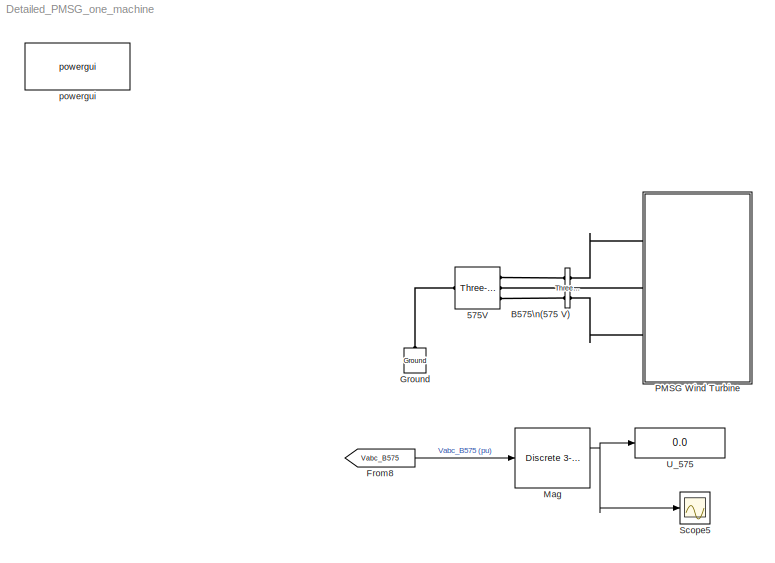
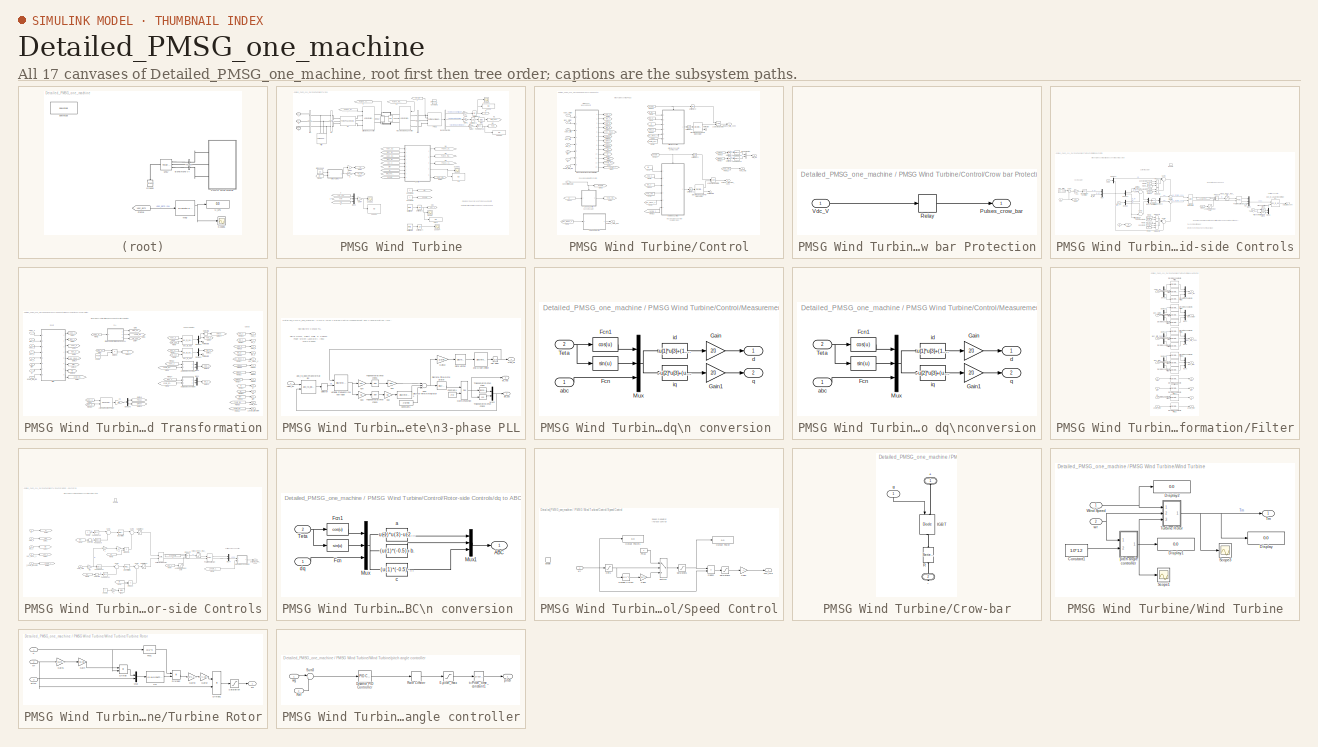
[diagram: thumbnail index - all 17 canvases of the model, root first then tree order]
MODEL Detailed_PMSG_one_machine
KIND model
CONFIG InitFcn = Ts=5e-6;
CONFIG PreLoadFcn = Ts=5e-6;
BLOCK [Reference] 575V  REF=powerlib/Electrical\nSources/Three-Phase\nProgrammable\nVoltage Source
  Amplitudes = [1 0.1 1]
  DialogController = POWERSYS.PowerSysDialog
  FunctionWithSeparateData = off
  HarmonicA = [1 -0.1 0 2]
  HarmonicB = [2 0.15 35 2]*0
  HarmonicGeneration = off
  Ports = [0, 0, 0, 0, 0, 1, 3]
  PositiveSequence = [575 0 60]
  RTWMemSecDataConstants = Inherit from model
  RTWMemSecDataInternal = Inherit from model
  RTWMemSecDataParameters = Inherit from model
  RTWMemSecFuncExecute = Inherit from model
  RTWMemSecFuncInitTerm = Inherit from model
  SID = 1288
  ShowPortLabels = FromPortIcon
  SourceBlock = powerlib/Electrical\nSources/Three-Phase\nProgrammable\nVoltage Source
  SourceType = Three-Phase Programmable Voltage Source
  SystemSampleTime = -1
  TimeValues = [0 20 21]
  Timing = [0.1  2]
  VariationEntity = Amplitude
  VariationFrequency = 2
  VariationMagnitude = 0.3
  VariationPhaseA = off
  VariationRate = 10
  VariationStep = -0.2
  VariationTiming = [0.05 0.05+5/60]
  VariationType = Table of time-amplitude pairs
BLOCK [Reference] B575\n(575 V)  REF=powerlib/Measurements/Three-Phase\nV-I Measurement
  CurrentMeasurement = yes
  DialogController = POWERSYS.PowerSysDialog
  FunctionWithSeparateData = off
  Ipu = on
  LabelI = Iabc_B575
  LabelV = Vabc_B575
  OutputType = Complex
  PSBequivalent = 0
  Pbase = 1.5e6
  PhasorSimulation = off
  Ports = [0, 0, 0, 0, 0, 3, 3]
  RTWMemSecDataConstants = Inherit from model
  RTWMemSecDataInternal = Inherit from model
  RTWMemSecDataParameters = Inherit from model
  RTWMemSecFuncExecute = Inherit from model
  RTWMemSecFuncInitTerm = Inherit from model
  SID = 1668
  SetLabelI = on
  SetLabelV = on
  ShowPortLabels = FromPortIcon
  SourceBlock = powerlib/Measurements/Three-Phase\nV-I Measurement
  SourceType = Three-Phase VI Measurement
  SystemSampleTime = -1
  Vbase = 575
  VoltageMeasurement = phase-to-ground
  Vpu = on
  VpuLL = off
BLOCK [From] From8
  CloseFcn = tagdialog Close
  GotoTag = Vabc_B575
  SID = 1670
  TagVisibility = global
BLOCK [Reference] Ground  REF=powerlib/Elements/Ground
  DialogController = POWERSYS.PowerSysDialog
  LConnTagsString = a
  LeftPortType = p1
  PhysicalDomain = powersysdomain
  Ports = [0, 0, 0, 0, 0, 1]
  RightPortType = p1
  SID = 334
  SourceBlock = powerlib/Elements/Ground
  SourceType = Ground
  SubClassName = unknown
BLOCK [Reference] Mag  REF=powerlib_extras/Discrete\nMeasurements/Discrete 3-phase\nPositive-Sequence\nFundamental Value
  DialogController = POWERSYS.PowerSysDialog
  Freq = 60
  FunctionWithSeparateData = off
  Par_Init = [0 0]
  Ports = [1, 2]
  RTWMemSecDataConstants = Inherit from model
  RTWMemSecDataInternal = Inherit from model
  RTWMemSecDataParameters = Inherit from model
  RTWMemSecFuncExecute = Inherit from model
  RTWMemSecFuncInitTerm = Inherit from model
  SID = 1671
  ShowPortLabels = FromPortIcon
  SourceBlock = powerlib_extras/Discrete\nMeasurements/Discrete 3-phase\nPositive-Sequence\nFundamental Value
  SourceType = Discrete 3-phase Positive-sequence fundamental value
  SystemSampleTime = -1
  Ts = Ts
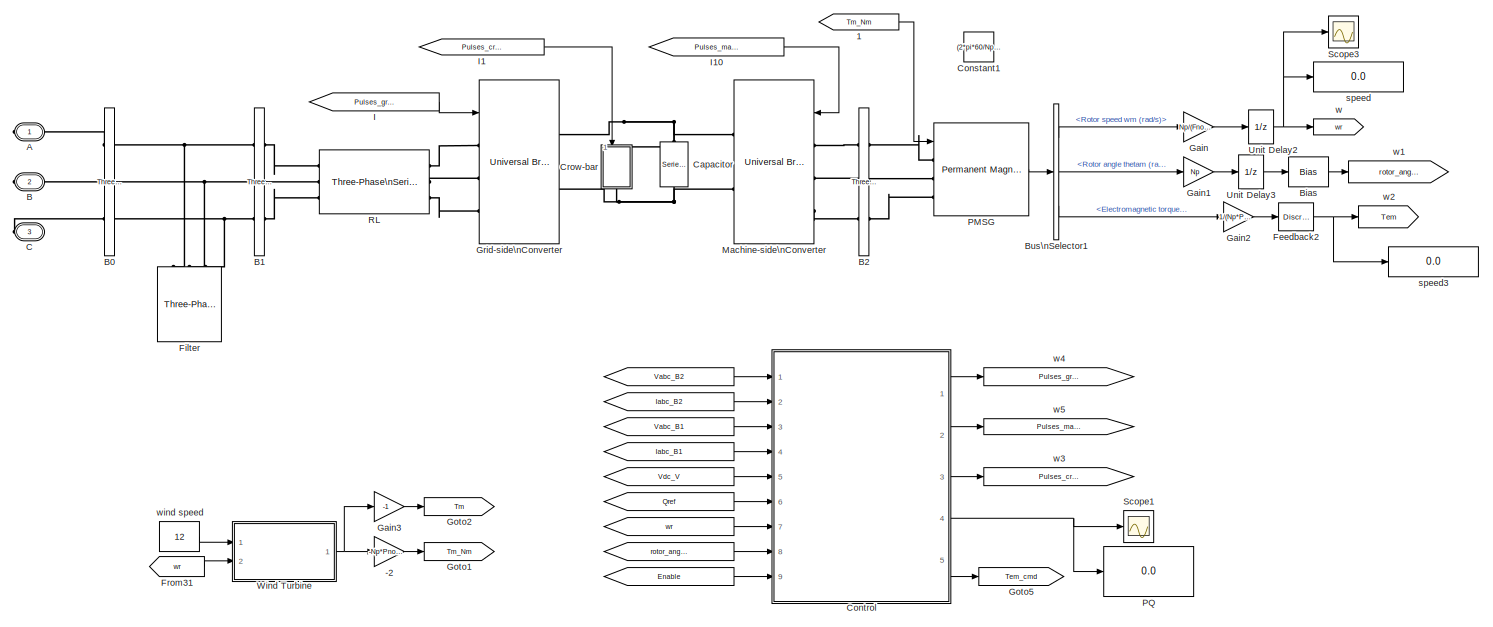
[diagram: PMSG Wind Turbine - part 1/2, full width, middle band]
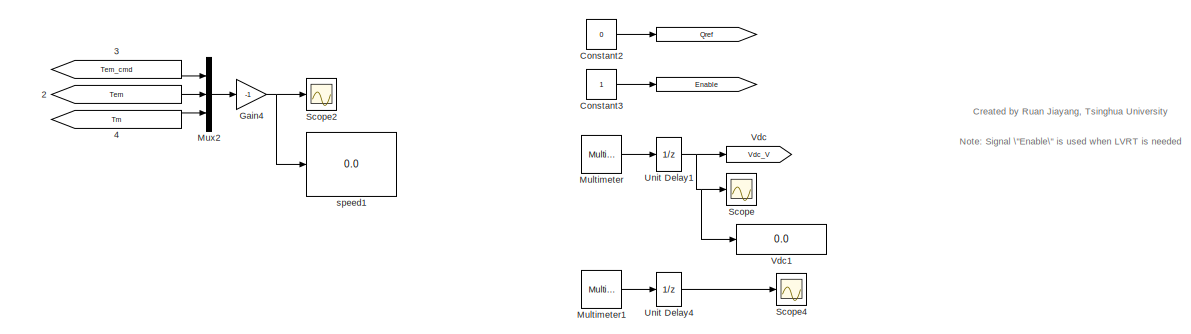
[diagram: PMSG Wind Turbine - part 2/2, full width, bottom band]
BLOCK [SubSystem] PMSG Wind Turbine
  FunctionWithSeparateData = off
  MaskCallbackString = ||||||
  MaskEnableString = on,on,on,on,on,on,on
  MaskHideContents = off
  MaskIconFrame = on
  MaskIconOpaque = on
  MaskIconRotate = none
  MaskIconUnits = autoscale
  MaskInitialization = R_RL=RL_grid(1);\nL_RL=RL_grid(2);
  MaskPortRotate = default
  MaskPromptString = Rated L-L Voltage(V)|Rated Power(VA)|Rated Frequency(Hz)|Grid-side coupling impedance(p.u.)|DC capacitor voltage(V)|Number of pole pairs|Feed back time constant(s)
  MaskStyleString = edit,edit,edit,edit,edit,edit,edit
  MaskToolTipString = on,on,on,on,on,on,on
  MaskTunableValueString = on,on,on,on,on,on,on
  MaskValueString = 575|1.5e6|60|[0.003 0.3]|1150|48|0.005
  MaskVariables = Vnom=@1;Pnom=@2;Fnom=@3;RL_grid=@4;Vdc_nom=@5;Np=@6;Fb_time_const=@7;
  MaskVisibilityString = on,on,on,on,on,on,on
  MinAlgLoopOccurrences = off
  Opaque = off
  Ports = [0, 0, 0, 0, 0, 0, 3]
  PropExecContextOutsideSubsystem = off
  RTWSystemCode = Auto
  RequestExecContextInheritance = off
  SID = 1
BLOCK [From] PMSG Wind Turbine/ 
  CloseFcn = tagdialog Close
  GotoTag = Vabc_B2
  SID = 1301
  TagVisibility = global
BLOCK [From] PMSG Wind Turbine/  
  CloseFcn = tagdialog Close
  GotoTag = Iabc_B2
  SID = 1302
  TagVisibility = global
BLOCK [From] PMSG Wind Turbine/   
  CloseFcn = tagdialog Close
  GotoTag = Vabc_B1
  SID = 1300
  TagVisibility = global
BLOCK [From] PMSG Wind Turbine/    
  CloseFcn = tagdialog Close
  GotoTag = Iabc_B1
  SID = 1299
  TagVisibility = global
BLOCK [From] PMSG Wind Turbine/     
  CloseFcn = tagdialog Close
  GotoTag = Vdc_V
  SID = 1298
BLOCK [From] PMSG Wind Turbine/      
  CloseFcn = tagdialog Close
  GotoTag = Qref
  SID = 1297
BLOCK [From] PMSG Wind Turbine/       
  CloseFcn = tagdialog Close
  GotoTag = rotor_angle_rad
  SID = 1295
BLOCK [From] PMSG Wind Turbine/        
  CloseFcn = tagdialog Close
  GotoTag = wr
  SID = 1296
BLOCK [From] PMSG Wind Turbine/           
  CloseFcn = tagdialog Close
  GotoTag = Enable
  SID = 1303
BLOCK [Goto] PMSG Wind Turbine/                      
  GotoTag = Qref
  SID = 1306
  TagVisibility = local
BLOCK [Goto] PMSG Wind Turbine/                            
  GotoTag = Enable
  SID = 1304
  TagVisibility = local
BLOCK [From] PMSG Wind Turbine/           1
  CloseFcn = tagdialog Close
  GotoTag = Tm_Nm
  SID = 1944
BLOCK [From] PMSG Wind Turbine/           2
  CloseFcn = tagdialog Close
  GotoTag = Tem
  SID = 1964
BLOCK [From] PMSG Wind Turbine/           3
  CloseFcn = tagdialog Close
  GotoTag = Tem_cmd
  SID = 1963
BLOCK [From] PMSG Wind Turbine/           4
  CloseFcn = tagdialog Close
  GotoTag = Tm
  SID = 1965
BLOCK [Gain] PMSG Wind Turbine/-2
  Gain = -Np*Pnom/(2*pi*Fnom)
  OutDataType = sfix(16)
  OutDataTypeMode = Inherit via internal rule
  OutDataTypeStr = Inherit: Inherit via internal rule
  OutScaling = 2^0
  ParamDataTypeStr = Inherit: Inherit via internal rule
  ParameterDataType = sfix(16)
  ParameterDataTypeMode = Inherit via internal rule
  ParameterScaling = 2^0
  SID = 1904
  SaturateOnIntegerOverflow = off
BLOCK [PMIOPort] PMSG Wind Turbine/A
  Port = 1
  SID = 321
  Side = Right
  Tag = PMCPort
BLOCK [PMIOPort] PMSG Wind Turbine/B
  Port = 2
  SID = 322
  Side = Right
  Tag = PMCPort
BLOCK [Reference] PMSG Wind Turbine/B0  REF=powerlib/Measurements/Three-Phase\nV-I Measurement
  CurrentMeasurement = yes
  DialogController = POWERSYS.PowerSysDialog
  FunctionWithSeparateData = off
  Ipu = on
  LabelI = Iabc_B0
  LabelV = Vabc_B0
  OutputType = Complex
  PSBequivalent = 0
  Pbase = Pnom
  PhasorSimulation = off
  Ports = [0, 0, 0, 0, 0, 3, 3]
  RTWMemSecDataConstants = Inherit from model
  RTWMemSecDataInternal = Inherit from model
  RTWMemSecDataParameters = Inherit from model
  RTWMemSecFuncExecute = Inherit from model
  RTWMemSecFuncInitTerm = Inherit from model
  SID = 1316
  SetLabelI = on
  SetLabelV = on
  ShowPortLabels = FromPortIcon
  SourceBlock = powerlib/Measurements/Three-Phase\nV-I Measurement
  SourceType = Three-Phase VI Measurement
  SystemSampleTime = -1
  Vbase = Vnom
  VoltageMeasurement = phase-to-ground
  Vpu = on
  VpuLL = off
BLOCK [Reference] PMSG Wind Turbine/B1  REF=powerlib/Measurements/Three-Phase\nV-I Measurement
  CurrentMeasurement = yes
  DialogController = POWERSYS.PowerSysDialog
  FunctionWithSeparateData = off
  Ipu = on
  LabelI = Iabc_B1
  LabelV = Vabc_B1
  OutputType = Complex
  PSBequivalent = 0
  Pbase = Pnom
  PhasorSimulation = off
  Ports = [0, 0, 0, 0, 0, 3, 3]
  RTWMemSecDataConstants = Inherit from model
  RTWMemSecDataInternal = Inherit from model
  RTWMemSecDataParameters = Inherit from model
  RTWMemSecFuncExecute = Inherit from model
  RTWMemSecFuncInitTerm = Inherit from model
  SID = 1313
  SetLabelI = on
  SetLabelV = on
  ShowPortLabels = FromPortIcon
  SourceBlock = powerlib/Measurements/Three-Phase\nV-I Measurement
  SourceType = Three-Phase VI Measurement
  SystemSampleTime = -1
  Vbase = Vnom
  VoltageMeasurement = phase-to-ground
  Vpu = on
  VpuLL = off
BLOCK [Reference] PMSG Wind Turbine/B2  REF=powerlib/Measurements/Three-Phase\nV-I Measurement
  CurrentMeasurement = yes
  DialogController = POWERSYS.PowerSysDialog
  FunctionWithSeparateData = off
  Ipu = on
  LabelI = Iabc_B2
  LabelV = Vabc_B2
  OutputType = Complex
  PSBequivalent = 0
  Pbase = Pnom
  PhasorSimulation = off
  Ports = [0, 0, 0, 0, 0, 3, 3]
  RTWMemSecDataConstants = Inherit from model
  RTWMemSecDataInternal = Inherit from model
  RTWMemSecDataParameters = Inherit from model
  RTWMemSecFuncExecute = Inherit from model
  RTWMemSecFuncInitTerm = Inherit from model
  SID = 1315
  SetLabelI = on
  SetLabelV = on
  ShowPortLabels = FromPortIcon
  SourceBlock = powerlib/Measurements/Three-Phase\nV-I Measurement
  SourceType = Three-Phase VI Measurement
  SystemSampleTime = -1
  Vbase = Vnom
  VoltageMeasurement = phase-to-ground
  Vpu = on
  VpuLL = off
BLOCK [Bias] PMSG Wind Turbine/Bias
  Bias = pi/2
  SID = 1838
  SaturateOnIntegerOverflow = off
BLOCK [BusSelector] PMSG Wind Turbine/Bus\nSelector1
  OutputSignals = Rotor speed wm (rad/s),Rotor angle thetam (rad),Electromagnetic torque Te (N*m)
  Ports = [1, 3]
  SID = 347
BLOCK [PMIOPort] PMSG Wind Turbine/C
  Port = 3
  SID = 323
  Side = Right
  Tag = PMCPort
BLOCK [Reference] PMSG Wind Turbine/Capacitor  REF=powerlib/Elements/Series RLC Branch
  BranchType = C
  Capacitance = 10000e-6
  DialogController = POWERSYS.PowerSysDialog
  Inductance = 1e-3
  InitialCurrent = 0
  InitialVoltage = Vdc_nom
  LConnTagsString = __new0
  LeftPortType = p1
  Measurements = Branch voltage
  PhysicalDomain = powersysdomain
  Ports = [0, 0, 0, 0, 0, 1, 1]
  RConnTagsString = __new0
  Resistance = 1e-5
  RightPortType = p1
  SID = 105
  SetiL0 = off
  Setx0 = on
  SourceBlock = powerlib/Elements/Series RLC Branch
  SourceType = Series RLC Branch
  SubClassName = unknown
BLOCK [Constant] PMSG Wind Turbine/Constant1
  OutDataType = sfix(16)
  OutScaling = 2^0
  SID = 1946
  SampleTime = Ts
  Value = (2*pi*60/Np)*2
BLOCK [Constant] PMSG Wind Turbine/Constant2
  OutDataType = sfix(16)
  OutScaling = 2^0
  SID = 1305
  SampleTime = Ts
  Value = 0
BLOCK [Constant] PMSG Wind Turbine/Constant3
  OutDataType = sfix(16)
  OutScaling = 2^0
  SID = 1289
  SampleTime = Ts
BLOCK [SubSystem] PMSG Wind Turbine/Control
  FunctionWithSeparateData = off
  MaskHideContents = off
  MinAlgLoopOccurrences = off
  Opaque = off
  Ports = [9, 5]
  PropExecContextOutsideSubsystem = off
  RTWSystemCode = Auto
  RequestExecContextInheritance = off
  SID = 825
BLOCK [BusCreator] PMSG Wind Turbine/Control/Bus\nCreator
  DisplayOption = bar
  Inputs = 2
  Ports = [2, 1]
  SID = 835
BLOCK [Inport] PMSG Wind Turbine/Control/Converter Enable
  IconDisplay = Port number
  OutDataType = sfix(16)
  OutScaling = 2^0
  Port = 9
  SID = 834
BLOCK [SubSystem] PMSG Wind Turbine/Control/Crow bar Protection
  FunctionWithSeparateData = off
  MaskHideContents = off
  MinAlgLoopOccurrences = off
  Opaque = off
  Ports = [1, 1]
  PropExecContextOutsideSubsystem = off
  RTWSystemCode = Auto
  RequestExecContextInheritance = off
  SID = 1984
BLOCK [Outport] PMSG Wind Turbine/Control/Crow bar Protection/Pulses_crow_bar
  IconDisplay = Port number
  OutDataType = sfix(16)
  OutScaling = 2^0
  SID = 1999
BLOCK [Relay] PMSG Wind Turbine/Control/Crow bar Protection/Relay
  OffSwitchValue = 1300
  OnSwitchValue = 1500
  OutDataType = fixdt(1, 16)
  OutScaling = 2^0
  SID = 2003
BLOCK [Inport] PMSG Wind Turbine/Control/Crow bar Protection/Vdc_V
  IconDisplay = Port number
  OutDataType = sfix(16)
  OutScaling = 2^0
  SID = 2001
BLOCK [Reference] PMSG Wind Turbine/Control/Discrete 3-phase\nPWM Generator  REF=powerlib_extras/Discrete \nControl Blocks/Discrete 3-phase\nPWM Generator
  DialogController = POWERSYS.PowerSysDialog
  Fc = 2700
  Freq = 60
  FunctionWithSeparateData = off
  ModulatingSignals = off
  ModulatorMode = Un-synchronized
  ModulatorType = 2-level
  Phase = 0
  Ports = [1, 2]
  RTWMemSecDataConstants = Inherit from model
  RTWMemSecDataInternal = Inherit from model
  RTWMemSecDataParameters = Inherit from model
  RTWMemSecFuncExecute = Inherit from model
  RTWMemSecFuncInitTerm = Inherit from model
  SID = 1399
  ShowPortLabels = FromPortIcon
  SourceBlock = powerlib_extras/Discrete \nControl Blocks/Discrete 3-phase\nPWM Generator
  SourceType = Discrete 3-phase PWM Generator (2- or 3-level)
  SystemSampleTime = -1
  Ts = Ts
  m = 0.2
  nF = 27
BLOCK [Reference] PMSG Wind Turbine/Control/Discrete 3-phase\nPWM Generator   REF=powerlib_extras/Discrete \nControl Blocks/Discrete 3-phase\nPWM Generator
  DialogController = POWERSYS.PowerSysDialog
  Fc = 1620
  Freq = 60
  FunctionWithSeparateData = off
  ModulatingSignals = off
  ModulatorMode = Un-synchronized
  ModulatorType = 2-level
  Phase = 0
  Ports = [1, 2]
  RTWMemSecDataConstants = Inherit from model
  RTWMemSecDataInternal = Inherit from model
  RTWMemSecDataParameters = Inherit from model
  RTWMemSecFuncExecute = Inherit from model
  RTWMemSecFuncInitTerm = Inherit from model
  SID = 1479
  ShowPortLabels = FromPortIcon
  SourceBlock = powerlib_extras/Discrete \nControl Blocks/Discrete 3-phase\nPWM Generator
  SourceType = Discrete 3-phase PWM Generator (2- or 3-level)
  SystemSampleTime = -1
  Ts = Ts
  m = 0.2
  nF = 27
BLOCK [Reference] PMSG Wind Turbine/Control/Feedback1  REF=powerlib_extras/Discrete \nControl Blocks/Discrete\n1st-Order\nFilter
  DialogController = POWERSYS.PowerSysDialog
  FilterType = Lowpass
  FunctionWithSeparateData = off
  Initialize = on
  PlotResponse = off
  Ports = [1, 1]
  RTWMemSecDataConstants = Inherit from model
  RTWMemSecDataInternal = Inherit from model
  RTWMemSecDataParameters = Inherit from model
  RTWMemSecFuncExecute = Inherit from model
  RTWMemSecFuncInitTerm = Inherit from model
  SID = 1976
  ShowPortLabels = FromPortIcon
  SourceBlock = powerlib_extras/Discrete \nControl Blocks/Discrete\n1st-Order\nFilter
  SourceType = Discrete 1st-Order Filter
  SystemSampleTime = -1
  Tc = 0.3
  Ts = Ts
  Vac_Init = [0 -25 60]
  Vdc_Init = 0
  param1 = [1 500 0.1]
BLOCK [Reference] PMSG Wind Turbine/Control/Feedback2  REF=powerlib_extras/Discrete \nControl Blocks/Discrete\n1st-Order\nFilter
  DialogController = POWERSYS.PowerSysDialog
  FilterType = Lowpass
  FunctionWithSeparateData = off
  Initialize = on
  PlotResponse = off
  Ports = [1, 1]
  RTWMemSecDataConstants = Inherit from model
  RTWMemSecDataInternal = Inherit from model
  RTWMemSecDataParameters = Inherit from model
  RTWMemSecFuncExecute = Inherit from model
  RTWMemSecFuncInitTerm = Inherit from model
  SID = 1975
  ShowPortLabels = FromPortIcon
  SourceBlock = powerlib_extras/Discrete \nControl Blocks/Discrete\n1st-Order\nFilter
  SourceType = Discrete 1st-Order Filter
  SystemSampleTime = -1
  Tc = 0.3
  Ts = Ts
  Vac_Init = [0 -25 60]
  Vdc_Init = 0
  param1 = [1 500 0.1]
BLOCK [From] PMSG Wind Turbine/Control/From1
  CloseFcn = tagdialog Close
  GotoTag = Idq_g
  SID = 1400
BLOCK [From] PMSG Wind Turbine/Control/From10
  CloseFcn = tagdialog Close
  GotoTag = r_angle_transform
  SID = 1480
BLOCK [From] PMSG Wind Turbine/Control/From11
  CloseFcn = tagdialog Close
  GotoTag = Tem_cmd
  SID = 841
BLOCK [From] PMSG Wind Turbine/Control/From12
  CloseFcn = tagdialog Close
  GotoTag = wr
  SID = 842
BLOCK [From] PMSG Wind Turbine/Control/From13
  CloseFcn = tagdialog Close
  GotoTag = Idq_s
  SID = 1684
BLOCK [From] PMSG Wind Turbine/Control/From16
  CloseFcn = tagdialog Close
  GotoTag = Pmeas
  SID = 846
BLOCK [From] PMSG Wind Turbine/Control/From17
  CloseFcn = tagdialog Close
  GotoTag = Qmeas
  SID = 847
BLOCK [From] PMSG Wind Turbine/Control/From18
  CloseFcn = tagdialog Close
  GotoTag = Vdq_g
  SID = 1401
BLOCK [From] PMSG Wind Turbine/Control/From19
  CloseFcn = tagdialog Close
  GotoTag = Enable
  SID = 1402
BLOCK [From] PMSG Wind Turbine/Control/From2
  CloseFcn = tagdialog Close
  GotoTag = Vdc_meas_V
  SID = 1403
BLOCK [From] PMSG Wind Turbine/Control/From22
  CloseFcn = tagdialog Close
  GotoTag = w
  SID = 1404
BLOCK [From] PMSG Wind Turbine/Control/From23
  CloseFcn = tagdialog Close
  GotoTag = Enable
  SID = 1486
BLOCK [From] PMSG Wind Turbine/Control/From3
  CloseFcn = tagdialog Close
  GotoTag = Q_ref
  SID = 1478
BLOCK [From] PMSG Wind Turbine/Control/From4
  CloseFcn = tagdialog Close
  GotoTag = Vdc_meas_V
  SID = 1487
BLOCK [From] PMSG Wind Turbine/Control/From5
  CloseFcn = tagdialog Close
  GotoTag = Vdq_s
  SID = 1683
BLOCK [From] PMSG Wind Turbine/Control/From6
  CloseFcn = tagdialog Close
  GotoTag = Vdc_meas_V
  SID = 2000
BLOCK [From] PMSG Wind Turbine/Control/From7
  CloseFcn = tagdialog Close
  GotoTag = wr
  SID = 1490
BLOCK [From] PMSG Wind Turbine/Control/From8
  CloseFcn = tagdialog Close
  GotoTag = Tem_cmd
  SID = 1491
BLOCK [From] PMSG Wind Turbine/Control/From9
  CloseFcn = tagdialog Close
  GotoTag = Theta_PLL
  SID = 1405
BLOCK [Goto] PMSG Wind Turbine/Control/Goto1
  GotoTag = Theta_PLL
  SID = 862
  TagVisibility = local
BLOCK [Goto] PMSG Wind Turbine/Control/Goto10
  GotoTag = Vdq_g
  SID = 863
  TagVisibility = local
BLOCK [Goto] PMSG Wind Turbine/Control/Goto11
  GotoTag = Idq_s
  SID = 864
  TagVisibility = local
BLOCK [Goto] PMSG Wind Turbine/Control/Goto12
  GotoTag = Idq_g
  SID = 865
  TagVisibility = local
BLOCK [Goto] PMSG Wind Turbine/Control/Goto13
  GotoTag = w
  SID = 866
  TagVisibility = local
BLOCK [Goto] PMSG Wind Turbine/Control/Goto14
  GotoTag = Vmeas
  SID = 867
  TagVisibility = local
BLOCK [Goto] PMSG Wind Turbine/Control/Goto15
  GotoTag = Pmeas
  SID = 868
  TagVisibility = local
BLOCK [Goto] PMSG Wind Turbine/Control/Goto17
  GotoTag = Qmeas
  SID = 869
  TagVisibility = local
BLOCK [Goto] PMSG Wind Turbine/Control/Goto2
  GotoTag = Vdc_meas_V
  SID = 870
  TagVisibility = local
BLOCK [Goto] PMSG Wind Turbine/Control/Goto3
  GotoTag = Enable
  SID = 871
  TagVisibility = local
BLOCK [Goto] PMSG Wind Turbine/Control/Goto4
  GotoTag = wr
  SID = 872
  TagVisibility = local
BLOCK [Goto] PMSG Wind Turbine/Control/Goto5
  GotoTag = Tem_cmd
  SID = 873
  TagVisibility = local
BLOCK [Goto] PMSG Wind Turbine/Control/Goto6
  GotoTag = Qref
  SID = 874
  TagVisibility = local
BLOCK [Goto] PMSG Wind Turbine/Control/Goto7
  GotoTag = r_angle_transform
  SID = 875
  TagVisibility = local
BLOCK [Goto] PMSG Wind Turbine/Control/Goto9
  GotoTag = Vdq_s
  SID = 876
  TagVisibility = local
BLOCK [SubSystem] PMSG Wind Turbine/Control/Grid-side Controls
  FunctionWithSeparateData = off
  MaskHideContents = off
  MinAlgLoopOccurrences = off
  Opaque = off
  Ports = [6, 1, 1]
  PropExecContextOutsideSubsystem = off
  RTWSystemCode = Auto
  RequestExecContextInheritance = off
  SID = 1406
BLOCK [Gain] PMSG Wind Turbine/Control/Grid-side Controls/->pu
  Gain = 1/Vdc_nom
  OutDataType = sfix(16)
  OutDataTypeMode = Inherit via internal rule
  OutDataTypeStr = Inherit: Inherit via internal rule
  OutScaling = 2^0
  ParamDataTypeStr = Inherit: Inherit via internal rule
  ParameterDataType = sfix(16)
  ParameterDataTypeMode = Inherit via internal rule
  ParameterScaling = 2^0
  SID = 1414
  SaturateOnIntegerOverflow = off
BLOCK [Saturate] PMSG Wind Turbine/Control/Grid-side Controls/0-Mod_index_max_grid
  LowerLimit = 0
  Ports = [1, 1]
  SID = 1415
  UpperLimit = 1.1
BLOCK [Saturate] PMSG Wind Turbine/Control/Grid-side Controls/Avoid division\nby zero
  LowerLimit = 1e-6
  Ports = [1, 1]
  SID = 1416
  UpperLimit = inf
BLOCK [Reference] PMSG Wind Turbine/Control/Grid-side Controls/Cartesian to\nPolar1  REF=simulink_extras/Transformations/Cartesian to\nPolar
  FunctionWithSeparateData = off
  Ports = [2, 2]
  RTWMemSecDataConstants = Inherit from model
  RTWMemSecDataInternal = Inherit from model
  RTWMemSecDataParameters = Inherit from model
  RTWMemSecFuncExecute = Inherit from model
  RTWMemSecFuncInitTerm = Inherit from model
  SID = 1417
  ShowPortLabels = FromPortIcon
  SourceBlock = simulink_extras/Transformations/Cartesian to\nPolar
  SourceType = Cart2Polar
  SystemSampleTime = -1
BLOCK [Constant] PMSG Wind Turbine/Control/Grid-side Controls/Constant1
  OutDataType = sfix(16)
  OutScaling = 2^0
  SID = 1418
  Value = L_RL
BLOCK [Constant] PMSG Wind Turbine/Control/Grid-side Controls/Constant2
  OutDataType = sfix(16)
  OutScaling = 2^0
  SID = 1419
  Value = L_RL
BLOCK [Constant] PMSG Wind Turbine/Control/Grid-side Controls/Constant3
  OutDataType = sfix(16)
  OutScaling = 2^0
  SID = 1420
  Value = R_RL
BLOCK [Constant] PMSG Wind Turbine/Control/Grid-side Controls/Constant4
  OutDataType = sfix(16)
  OutScaling = 2^0
  SID = 1421
  Value = R_RL
BLOCK [Demux] PMSG Wind Turbine/Control/Grid-side Controls/Demux
  Outputs = 2
  Ports = [1, 2]
  SID = 1422
BLOCK [Demux] PMSG Wind Turbine/Control/Grid-side Controls/Demux1
  Outputs = 2
  Ports = [1, 2]
  SID = 1423
BLOCK [Demux] PMSG Wind Turbine/Control/Grid-side Controls/Demux2
  Outputs = 2
  Ports = [1, 2]
  SID = 1424
BLOCK [Demux] PMSG Wind Turbine/Control/Grid-side Controls/Demux3
  Outputs = 2
  Ports = [1, 2]
  SID = 1425
BLOCK [Reference] PMSG Wind Turbine/Control/Grid-side Controls/Discrete\nPI Controller  REF=powerlib_extras/Discrete \nControl Blocks/Discrete\nPI Controller
  DialogController = POWERSYS.PowerSysDialog
  FunctionWithSeparateData = off
  Init = 0
  Ki = 400
  Kp = 8
  Par_Limits = [1 -1]*1.2
  Ports = [1, 1]
  RTWMemSecDataConstants = Inherit from model
  RTWMemSecDataInternal = Inherit from model
  RTWMemSecDataParameters = Inherit from model
  RTWMemSecFuncExecute = Inherit from model
  RTWMemSecFuncInitTerm = Inherit from model
  SID = 1426
  ShowPortLabels = FromPortIcon
  SourceBlock = powerlib_extras/Discrete \nControl Blocks/Discrete\nPI Controller
  SourceType = Discrete PI Controller
  SystemSampleTime = -1
  Ts = Ts
BLOCK [Reference] PMSG Wind Turbine/Control/Grid-side Controls/Discrete\nPI Controller1  REF=powerlib_extras/Discrete \nControl Blocks/Discrete\nPI Controller
  DialogController = POWERSYS.PowerSysDialog
  FunctionWithSeparateData = off
  Init = 0
  Ki = 5
  Kp = 0.83
  Par_Limits = [1.0 -1.0] *1.1
  Ports = [1, 1]
  RTWMemSecDataConstants = Inherit from model
  RTWMemSecDataInternal = Inherit from model
  RTWMemSecDataParameters = Inherit from model
  RTWMemSecFuncExecute = Inherit from model
  RTWMemSecFuncInitTerm = Inherit from model
  SID = 1427
  ShowPortLabels = FromPortIcon
  SourceBlock = powerlib_extras/Discrete \nControl Blocks/Discrete\nPI Controller
  SourceType = Discrete PI Controller
  SystemSampleTime = -1
  Ts = Ts
BLOCK [EnablePort] PMSG Wind Turbine/Control/Grid-side Controls/Enable
  Ports = []
  SID = 1413
BLOCK [From] PMSG Wind Turbine/Control/Grid-side Controls/From10
  CloseFcn = tagdialog Close
  GotoTag = id_ref
  SID = 1428
BLOCK [From] PMSG Wind Turbine/Control/Grid-side Controls/From2
  CloseFcn = tagdialog Close
  GotoTag = w
  SID = 1429
BLOCK [From] PMSG Wind Turbine/Control/Grid-side Controls/From3
  CloseFcn = tagdialog Close
  GotoTag = iq_ref
  SID = 1430
BLOCK [From] PMSG Wind Turbine/Control/Grid-side Controls/From4
  CloseFcn = tagdialog Close
  GotoTag = iq_ref
  SID = 1431
BLOCK [From] PMSG Wind Turbine/Control/Grid-side Controls/From5
  CloseFcn = tagdialog Close
  GotoTag = w
  SID = 1432
BLOCK [From] PMSG Wind Turbine/Control/Grid-side Controls/From6
  CloseFcn = tagdialog Close
  GotoTag = id_ref
  SID = 1433
BLOCK [From] PMSG Wind Turbine/Control/Grid-side Controls/From7
  CloseFcn = tagdialog Close
  GotoTag = Vdc
  SID = 1434
BLOCK [Goto] PMSG Wind Turbine/Control/Grid-side Controls/Goto2
  GotoTag = iq_ref
  SID = 1435
  TagVisibility = local
BLOCK [Goto] PMSG Wind Turbine/Control/Grid-side Controls/Goto3
  GotoTag = id_ref
  SID = 1436
  TagVisibility = local
BLOCK [Goto] PMSG Wind Turbine/Control/Grid-side Controls/Goto4
  GotoTag = w
  SID = 1437
  TagVisibility = local
BLOCK [Goto] PMSG Wind Turbine/Control/Grid-side Controls/Goto5
  GotoTag = Vdc
  SID = 1438
  TagVisibility = local
BLOCK [Inport] PMSG Wind Turbine/Control/Grid-side Controls/Idq_gc
  IconDisplay = Port number
  OutDataType = sfix(16)
  OutScaling = 2^0
  Port = 2
  SID = 1408
BLOCK [Inport] PMSG Wind Turbine/Control/Grid-side Controls/Iq_ref
  IconDisplay = Port number
  OutDataType = sfix(16)
  OutScaling = 2^0
  SID = 1407
BLOCK [Constant] PMSG Wind Turbine/Control/Grid-side Controls/K
  OutDataType = sfix(16)
  OutScaling = 2^0
  SID = 1439
  Value = Vnom*2*sqrt(2/3)
BLOCK [Mux] PMSG Wind Turbine/Control/Grid-side Controls/Mux
  DisplayOption = bar
  Inputs = 2
  Ports = [2, 1]
  SID = 1440
BLOCK [Mux] PMSG Wind Turbine/Control/Grid-side Controls/Mux2
  DisplayOption = bar
  Inputs = 2
  Ports = [2, 1]
  SID = 1441
BLOCK [Mux] PMSG Wind Turbine/Control/Grid-side Controls/Mux4
  DisplayOption = bar
  Inputs = 3
  Ports = [3, 1]
  SID = 1442
BLOCK [Mux] PMSG Wind Turbine/Control/Grid-side Controls/Mux5
  DisplayOption = bar
  Inputs = 2
  Ports = [2, 1]
  SID = 1443
BLOCK [Reference] PMSG Wind Turbine/Control/Grid-side Controls/Polar to\nCartesian  REF=simulink_extras/Transformations/Polar to\nCartesian
  FunctionWithSeparateData = off
  Ports = [2, 2]
  RTWMemSecDataConstants = Inherit from model
  RTWMemSecDataInternal = Inherit from model
  RTWMemSecDataParameters = Inherit from model
  RTWMemSecFuncExecute = Inherit from model
  RTWMemSecFuncInitTerm = Inherit from model
  SID = 1444
  ShowPortLabels = FromPortIcon
  SourceBlock = simulink_extras/Transformations/Polar to\nCartesian
  SourceType = Polar2Cart
  SystemSampleTime = -1
BLOCK [Product] PMSG Wind Turbine/Control/Grid-side Controls/Product
  Inputs = 3
  OutDataType = sfix(16)
  OutScaling = 2^0
  Ports = [3, 1]
  RndMeth = Floor
  SID = 1445
BLOCK [Product] PMSG Wind Turbine/Control/Grid-side Controls/Product1
  Inputs = 3
  OutDataType = sfix(16)
  OutScaling = 2^0
  Ports = [3, 1]
  RndMeth = Floor
  SID = 1446
BLOCK [Product] PMSG Wind Turbine/Control/Grid-side Controls/Product2
  OutDataType = sfix(16)
  OutScaling = 2^0
  Ports = [2, 1]
  RndMeth = Floor
  SID = 1447
BLOCK [Product] PMSG Wind Turbine/Control/Grid-side Controls/Product3
  OutDataType = sfix(16)
  OutScaling = 2^0
  Ports = [2, 1]
  RndMeth = Floor
  SID = 1448
BLOCK [Product] PMSG Wind Turbine/Control/Grid-side Controls/Product4
  Inputs = **/
  OutDataType = sfix(16)
  OutScaling = 2^0
  Ports = [3, 1]
  RndMeth = Floor
  SID = 1449
BLOCK [Sum] PMSG Wind Turbine/Control/Grid-side Controls/Sum1
  IconShape = round
  Inputs = +-
  OutDataType = sfix(16)
  OutScaling = 2^0
  Ports = [2, 1]
  SID = 1450
BLOCK [Sum] PMSG Wind Turbine/Control/Grid-side Controls/Sum2
  IconShape = round
  Inputs = -+|
  OutDataType = sfix(16)
  OutScaling = 2^0
  Ports = [2, 1]
  SID = 1451
BLOCK [Sum] PMSG Wind Turbine/Control/Grid-side Controls/Sum3
  IconShape = round
  Inputs = ||++-
  OutDataType = sfix(16)
  OutScaling = 2^0
  Ports = [3, 1]
  SID = 1452
BLOCK [Sum] PMSG Wind Turbine/Control/Grid-side Controls/Sum4
  IconShape = round
  Inputs = |+-
  OutDataType = sfix(16)
  OutScaling = 2^0
  Ports = [2, 1]
  SID = 1453
BLOCK [Sum] PMSG Wind Turbine/Control/Grid-side Controls/Sum5
  IconShape = round
  Inputs = |--+
  OutDataType = sfix(16)
  OutScaling = 2^0
  Ports = [3, 1]
  SID = 1454
BLOCK [Sum] PMSG Wind Turbine/Control/Grid-side Controls/Sum6
  IconShape = round
  Inputs = |-+
  OutDataType = sfix(16)
  OutScaling = 2^0
  Ports = [2, 1]
  SID = 1455
BLOCK [Sum] PMSG Wind Turbine/Control/Grid-side Controls/Sum7
  IconShape = round
  Inputs = |+-
  OutDataType = sfix(16)
  OutScaling = 2^0
  Ports = [2, 1]
  SID = 1456
BLOCK [Inport] PMSG Wind Turbine/Control/Grid-side Controls/Theta_PLL
  IconDisplay = Port number
  OutDataType = sfix(16)
  OutScaling = 2^0
  Port = 6
  SID = 1412
BLOCK [Trigonometry] PMSG Wind Turbine/Control/Grid-side Controls/Trigonometric\nFunction2
  Ports = [1, 1]
  SID = 1457
BLOCK [Trigonometry] PMSG Wind Turbine/Control/Grid-side Controls/Trigonometric\nFunction3
  Operator = cos
  Ports = [1, 1]
  SID = 1458
BLOCK [Outport] PMSG Wind Turbine/Control/Grid-side Controls/Uctrl_grid_conv
  IconDisplay = Port number
  OutDataType = sfix(16)
  OutScaling = 2^0
  SID = 1462
BLOCK [Constant] PMSG Wind Turbine/Control/Grid-side Controls/V0
  OutDataType = sfix(16)
  OutScaling = 2^0
  SID = 1459
  Value = 0
BLOCK [Inport] PMSG Wind Turbine/Control/Grid-side Controls/Vdc
  IconDisplay = Port number
  OutDataType = sfix(16)
  OutScaling = 2^0
  Port = 5
  SID = 1411
BLOCK [Constant] PMSG Wind Turbine/Control/Grid-side Controls/Vdc_ref (V)
  OutDataType = sfix(16)
  OutScaling = 2^0
  SID = 1460
  Value = Vdc_nom
BLOCK [Inport] PMSG Wind Turbine/Control/Grid-side Controls/Vdqs
  IconDisplay = Port number
  OutDataType = sfix(16)
  OutScaling = 2^0
  Port = 4
  SID = 1410
BLOCK [Reference] PMSG Wind Turbine/Control/Grid-side Controls/dq0_to_abc\nTransformation  REF=powerlib_extras/Measurements/dq0_to_abc\nTransformation
  DialogController = POWERSYS.PowerSysDialog
  FunctionWithSeparateData = off
  Ports = [2, 1]
  RTWMemSecDataConstants = Inherit from model
  RTWMemSecDataInternal = Inherit from model
  RTWMemSecDataParameters = Inherit from model
  RTWMemSecFuncExecute = Inherit from model
  RTWMemSecFuncInitTerm = Inherit from model
  SID = 1461
  ShowPortLabels = FromPortIcon
  SourceBlock = powerlib_extras/Measurements/dq0_to_abc\nTransformation
  SourceType = dq0 to abc Transformation
  SystemSampleTime = -1
BLOCK [Inport] PMSG Wind Turbine/Control/Grid-side Controls/w
  IconDisplay = Port number
  OutDataType = sfix(16)
  OutScaling = 2^0
  Port = 3
  SID = 1409
BLOCK [Inport] PMSG Wind Turbine/Control/Iabc_grid
  IconDisplay = Port number
  OutDataType = sfix(16)
  OutScaling = 2^0
  Port = 4
  SID = 829
BLOCK [Inport] PMSG Wind Turbine/Control/Iabc_stator
  IconDisplay = Port number
  OutDataType = sfix(16)
  OutScaling = 2^0
  Port = 2
  SID = 827
BLOCK [Logic] PMSG Wind Turbine/Control/Logical\nOperator
  AllPortsSameDT = off
  LogicDataType = fixdt(0, 8)
  OutDataTypeMode = boolean
  OutDataTypeStr = boolean
  Ports = [2, 1]
  SID = 1463
BLOCK [Logic] PMSG Wind Turbine/Control/Logical\nOperator1
  AllPortsSameDT = off
  LogicDataType = fixdt(0, 8)
  OutDataTypeMode = boolean
  OutDataTypeStr = boolean
  Ports = [2, 1]
  SID = 1493
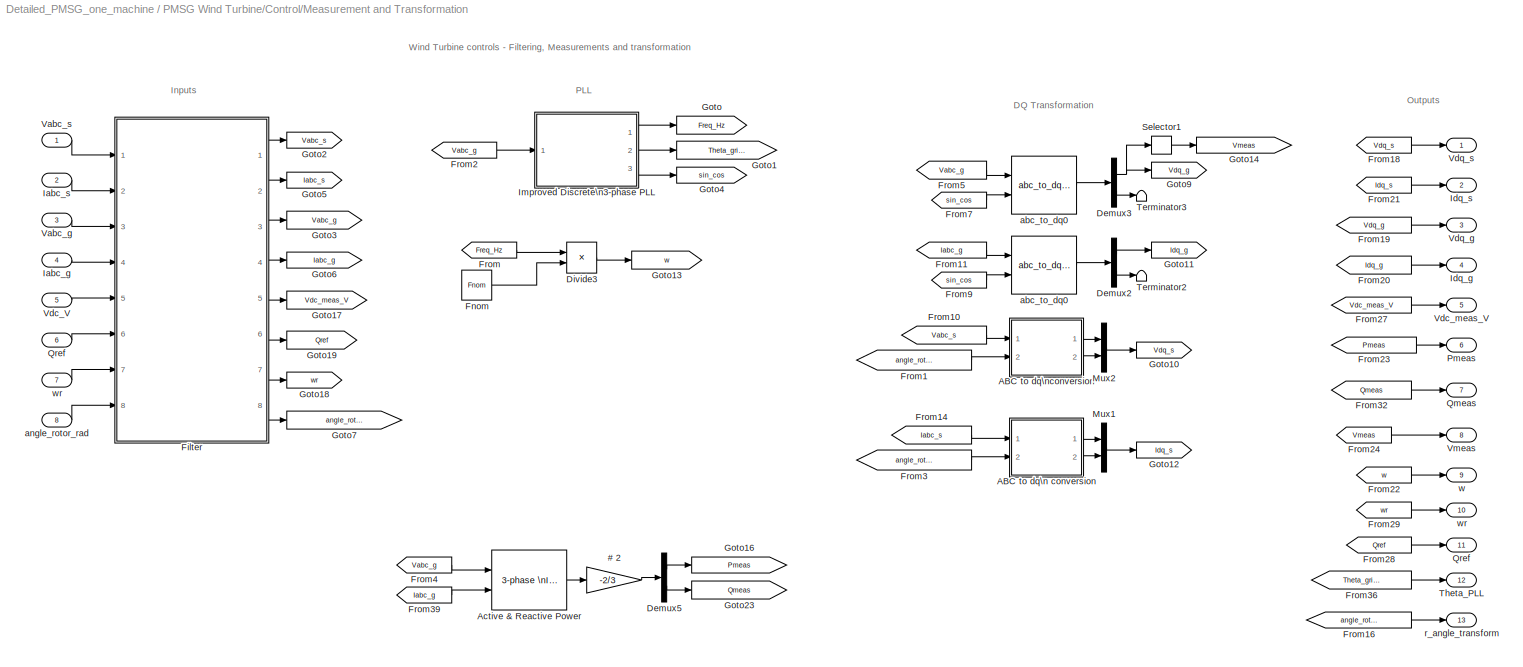
BLOCK [SubSystem] PMSG Wind Turbine/Control/Measurement and Transformation
  FunctionWithSeparateData = off
  MaskHideContents = off
  MinAlgLoopOccurrences = off
  Opaque = off
  Ports = [8, 13]
  PropExecContextOutsideSubsystem = off
  RTWSystemCode = Auto
  RequestExecContextInheritance = off
  SID = 936
BLOCK [SubSystem] PMSG Wind Turbine/Control/Measurement and Transformation/ Improved Discrete\n3-phase PLL
  AncestorBlock = powerlib_extras/Discrete \nControl Blocks/Discrete\n3-phase PLL
  FunctionWithSeparateData = off
  MaskCallbackString = |||
  MaskDescription = This Phase Locked Loop (PLL) system can be used  to synchronize on a set of variable frequency, three-phase sinusoidal signals.\n\nInput 1: Vector containing the normalized \n             three-phase signals [Va Vb Vc]\nOutput 1:  Measured frequency (Hz) = w/(2pi)\nOutput 2:  Ramp w.t   varying between  0 and 2*pi,\nsynchronized on zero crossings of the fundamental (positive-sequence) of phase A. ...<+36ch>
  MaskEnableString = on,on,on,on
  MaskHideContents = off
  MaskIconFrame = on
  MaskIconOpaque = on
  MaskIconRotate = none
  MaskIconUnits = autoscale
  MaskInitialization = Kp1=ParK(1);\nKp2=ParK(2);\nKi1=ParK(3);\nKi2=ParK(4);\nPhase_Init=Par_Init(1);\nFinit=Par_Init(2);\npower_initmask();
  MaskPortRotate = default
  MaskPromptString = Minimum frequency (Hz):|Initial inputs:[ Phase(degrees)   Frequency(Hz) ]|Regulator gains [ Kp1 Kp2  Ki1  Ki2 ]|Sample time:
  MaskSelfModifiable = on
  MaskStyleString = edit,edit,edit,edit
  MaskToolTipString = on,on,on,on
  MaskTunableValueString = on,on,on,on
  MaskType = Discrete 3-phase PLL
  MaskValueString = 0.75*Fnom|[0 Fnom]|[5 3.2 1 50]|Ts
  MaskVariables = Fmin=@1;Par_Init=@2;ParK=@3;Ts=@4;
  MaskVisibilityString = on,on,on,on
  MinAlgLoopOccurrences = off
  Opaque = off
  OpenFcn = power_openblockproxy();
  Ports = [1, 3]
  PropExecContextOutsideSubsystem = off
  RTWSystemCode = Auto
  RequestExecContextInheritance = off
  SID = 946
BLOCK [Reference] PMSG Wind Turbine/Control/Measurement and Transformation/ Improved Discrete\n3-phase PLL/2nd-Order\nFilter  REF=powerlib_extras/Discrete \nControl Blocks/Discrete \n2nd-Order\nFilter
  DialogController = POWERSYS.PowerSysDialog
  FilterType = Lowpass
  Fo = 25
  FunctionWithSeparateData = off
  Initialize = on
  PlotResponse = off
  Ports = [1, 1]
  RTWMemSecDataConstants = Inherit from model
  RTWMemSecDataInternal = Inherit from model
  RTWMemSecDataParameters = Inherit from model
  RTWMemSecFuncExecute = Inherit from model
  RTWMemSecFuncInitTerm = Inherit from model
  SID = 2
  ShowPortLabels = FromPortIcon
  SourceBlock = powerlib_extras/Discrete \nControl Blocks/Discrete \n2nd-Order\nFilter
  SourceType = Discrete 2nd-Order Filter
  SystemSampleTime = -1
  Ts = Ts
  Vac_Init = [0 0 Finit]
  Vdc_Init = Finit
  Zeta = 0.707
  param1 = [1 500 0.1]
BLOCK [Constant] PMSG Wind Turbine/Control/Measurement and Transformation/ Improved Discrete\n3-phase PLL/Constant1
  OutDataType = sfix(16)
  OutScaling = 2^0
  SID = 3
  Value = 2*pi*Finit
BLOCK [Constant] PMSG Wind Turbine/Control/Measurement and Transformation/ Improved Discrete\n3-phase PLL/Constant4
  OutDataType = sfix(16)
  OutScaling = 2^0
  SID = 4
  Value = 2*pi
BLOCK [DiscreteIntegrator] PMSG Wind Turbine/Control/Measurement and Transformation/ Improved Discrete\n3-phase PLL/Discrete-Time\nIntegrator
  ExternalReset = none
  ICPrevOutput = DiscIntNeverNeededParam
  ICPrevScaledInput = DiscIntNeverNeededParam
  InitialConditionSource = internal
  IntegratorMethod = Integration: Forward Euler
  OutDataType = sfix(16)
  OutScaling = 2^0
  Ports = [1, 1]
  SID = 5
  SampleTime = Ts
BLOCK [DiscreteIntegrator] PMSG Wind Turbine/Control/Measurement and Transformation/ Improved Discrete\n3-phase PLL/Discrete-Time\nIntegrator1
  ExternalReset = none
  ICPrevOutput = DiscIntNeverNeededParam
  ICPrevScaledInput = DiscIntNeverNeededParam
  InitialConditionSource = internal
  IntegratorMethod = Integration: Forward Euler
  LimitOutput = on
  LowerSaturationLimit = -2*pi*5
  OutDataType = sfix(16)
  OutScaling = 2^0
  Ports = [1, 1]
  SID = 6
  SampleTime = Ts
  UpperSaturationLimit = 2*pi*5
  gainval = 1
BLOCK [Outport] PMSG Wind Turbine/Control/Measurement and Transformation/ Improved Discrete\n3-phase PLL/Freq_Hz
  IconDisplay = Port number
  OutDataType = sfix(16)
  OutScaling = 2^0
  SID = 24
BLOCK [Gain] PMSG Wind Turbine/Control/Measurement and Transformation/ Improved Discrete\n3-phase PLL/Gain10
  Gain = 1/2/pi
  OutDataType = sfix(16)
  OutScaling = 2^0
  ParameterDataType = sfix(16)
  ParameterScaling = 2^0
  SID = 7
BLOCK [Gain] PMSG Wind Turbine/Control/Measurement and Transformation/ Improved Discrete\n3-phase PLL/Kp1
  Gain = Kp2
  OutDataType = sfix(16)
  OutScaling = 2^0
  ParameterDataType = sfix(16)
  ParameterScaling = 2^0
  SID = 8
BLOCK [Gain] PMSG Wind Turbine/Control/Measurement and Transformation/ Improved Discrete\n3-phase PLL/Kp2
  Gain = Ki2
  OutDataType = sfix(16)
  OutScaling = 2^0
  ParameterDataType = sfix(16)
  ParameterScaling = 2^0
  SID = 9
BLOCK [Gain] PMSG Wind Turbine/Control/Measurement and Transformation/ Improved Discrete\n3-phase PLL/Kp3
  Gain = Ki1
  OutDataType = sfix(16)
  OutScaling = 2^0
  ParameterDataType = sfix(16)
  ParameterScaling = 2^0
  SID = 10
BLOCK [Gain] PMSG Wind Turbine/Control/Measurement and Transformation/ Improved Discrete\n3-phase PLL/Kp4
  Gain = Kp1
  OutDataType = sfix(16)
  OutScaling = 2^0
  ParameterDataType = sfix(16)
  ParameterScaling = 2^0
  SID = 11
BLOCK [Math] PMSG Wind Turbine/Control/Measurement and Transformation/ Improved Discrete\n3-phase PLL/Math\nFunction
  Operator = mod
  OutDataType = sfix(16)
  OutScaling = 2^0
  Ports = [2, 1]
  SID = 12
BLOCK [Mux] PMSG Wind Turbine/Control/Measurement and Transformation/ Improved Discrete\n3-phase PLL/Mux2
  DisplayOption = bar
  Inputs = 2
  Ports = [2, 1]
  SID = 13
BLOCK [Reference] PMSG Wind Turbine/Control/Measurement and Transformation/ Improved Discrete\n3-phase PLL/Rate Limiter  REF=powerlib_extras/Discrete \nControl Blocks/Discrete\nRate Limiter
  DialogController = POWERSYS.PowerSysDialog
  F = -12
  FunctionWithSeparateData = off
  Ports = [1, 1]
  R = 12
  RTWMemSecDataConstants = Inherit from model
  RTWMemSecDataInternal = Inherit from model
  RTWMemSecDataParameters = Inherit from model
  RTWMemSecFuncExecute = Inherit from model
  RTWMemSecFuncInitTerm = Inherit from model
  SID = 14
  ShowPortLabels = FromPortIcon
  SourceBlock = powerlib_extras/Discrete \nControl Blocks/Discrete\nRate Limiter
  SourceType = Discrete Rate Limiter
  SystemSampleTime = -1
  Ts = Ts
  Vinit = Finit
BLOCK [Selector] PMSG Wind Turbine/Control/Measurement and Transformation/ Improved Discrete\n3-phase PLL/Selector
  IndexOptions = Index vector (dialog)
  Indices = 2
  InputPortWidth = 3
  OutputSizes = 1
  Ports = [1, 1]
  SID = 15
BLOCK [Outport] PMSG Wind Turbine/Control/Measurement and Transformation/ Improved Discrete\n3-phase PLL/Sin_Cos
  IconDisplay = Port number
  OutDataType = sfix(16)
  OutScaling = 2^0
  Port = 3
  SID = 26
BLOCK [Sum] PMSG Wind Turbine/Control/Measurement and Transformation/ Improved Discrete\n3-phase PLL/Sum
  InputSameDT = off
  Inputs = +++
  OutDataType = sfix(16)
  OutDataTypeMode = Inherit via internal rule
  OutDataTypeStr = Inherit: Inherit via internal rule
  OutScaling = 2^0
  Ports = [3, 1]
  SID = 16
  SaturateOnIntegerOverflow = off
BLOCK [Trigonometry] PMSG Wind Turbine/Control/Measurement and Transformation/ Improved Discrete\n3-phase PLL/Trigonometric\nFunction
  Ports = [1, 1]
  SID = 17
BLOCK [Trigonometry] PMSG Wind Turbine/Control/Measurement and Transformation/ Improved Discrete\n3-phase PLL/Trigonometric\nFunction1
  Operator = atan
  Ports = [1, 1]
  SID = 18
BLOCK [Trigonometry] PMSG Wind Turbine/Control/Measurement and Transformation/ Improved Discrete\n3-phase PLL/Trigonometric\nFunction2
  Operator = cos
  Ports = [1, 1]
  SID = 19
BLOCK [Trigonometry] PMSG Wind Turbine/Control/Measurement and Transformation/ Improved Discrete\n3-phase PLL/Trigonometric\nFunction3
  Operator = atan
  Ports = [1, 1]
  SID = 20
BLOCK [UnitDelay] PMSG Wind Turbine/Control/Measurement and Transformation/ Improved Discrete\n3-phase PLL/Unit Delay
  SID = 21
  SampleTime = Ts
  X0 = Finit
BLOCK [Inport] PMSG Wind Turbine/Control/Measurement and Transformation/ Improved Discrete\n3-phase PLL/Vabc_pu
  IconDisplay = Port number
  OutDataType = sfix(16)
  OutScaling = 2^0
  PortDimensions = 3
  SID = 1
BLOCK [Reference] PMSG Wind Turbine/Control/Measurement and Transformation/ Improved Discrete\n3-phase PLL/Variable Frequency\nMean value  REF=powerlib_extras/Discrete\nMeasurements/Discrete\nVariable Frequency\nMean value
  DialogController = POWERSYS.PowerSysDialog
  Finit = Finit
  Fmin = Fmin
  FunctionWithSeparateData = off
  Ports = [2, 1]
  RTWMemSecDataConstants = Inherit from model
  RTWMemSecDataInternal = Inherit from model
  RTWMemSecDataParameters = Inherit from model
  RTWMemSecFuncExecute = Inherit from model
  RTWMemSecFuncInitTerm = Inherit from model
  SID = 22
  ShowPortLabels = FromPortIcon
  SourceBlock = powerlib_extras/Discrete\nMeasurements/Discrete\nVariable Frequency\nMean value
  SourceType = Discrete Variable-Frequency Mean Value
  SystemSampleTime = -1
  Ts = Ts
  Vinit = 0
BLOCK [Reference] PMSG Wind Turbine/Control/Measurement and Transformation/ Improved Discrete\n3-phase PLL/abc_to_dq0\nTransformation  REF=powerlib_extras/Measurements/abc_to_dq0\nTransformation
  DialogController = POWERSYS.PowerSysDialog
  FunctionWithSeparateData = off
  Ports = [2, 1]
  RTWMemSecDataConstants = Inherit from model
  RTWMemSecDataInternal = Inherit from model
  RTWMemSecDataParameters = Inherit from model
  RTWMemSecFuncExecute = Inherit from model
  RTWMemSecFuncInitTerm = Inherit from model
  SID = 23
  ShowPortLabels = FromPortIcon
  SourceBlock = powerlib_extras/Measurements/abc_to_dq0\nTransformation
  SourceType = abc to dq0 Transformation
  SystemSampleTime = -1
BLOCK [Outport] PMSG Wind Turbine/Control/Measurement and Transformation/ Improved Discrete\n3-phase PLL/wt_rad
  IconDisplay = Port number
  OutDataType = sfix(16)
  OutScaling = 2^0
  Port = 2
  SID = 25
BLOCK [Gain] PMSG Wind Turbine/Control/Measurement and Transformation/# 2
  Gain = -2/3
  OutDataType = sfix(16)
  OutScaling = 2^0
  ParameterDataType = sfix(16)
  ParameterScaling = 2^0
  SID = 1317
BLOCK [SubSystem] PMSG Wind Turbine/Control/Measurement and Transformation/ABC to dq\n conversion 
  FunctionWithSeparateData = off
  MaskHideContents = off
  MinAlgLoopOccurrences = off
  Opaque = off
  Ports = [2, 2]
  PropExecContextOutsideSubsystem = off
  RTWSystemCode = Auto
  RequestExecContextInheritance = off
  SID = 1851
BLOCK [Fcn] PMSG Wind Turbine/Control/Measurement and Transformation/ABC to dq\n conversion /Fcn
  Expr = sin(u)
  SID = 1854
BLOCK [Fcn] PMSG Wind Turbine/Control/Measurement and Transformation/ABC to dq\n conversion /Fcn1
  Expr = cos(u)
  SID = 1855
BLOCK [Gain] PMSG Wind Turbine/Control/Measurement and Transformation/ABC to dq\n conversion /Gain
  Gain = 2/3
  OutDataType = sfix(16)
  OutScaling = 2^0
  ParameterDataType = sfix(16)
  ParameterScaling = 2^0
  SID = 1856
BLOCK [Gain] PMSG Wind Turbine/Control/Measurement and Transformation/ABC to dq\n conversion /Gain1
  Gain = 2/3
  OutDataType = sfix(16)
  OutScaling = 2^0
  ParameterDataType = sfix(16)
  ParameterScaling = 2^0
  SID = 1857
BLOCK [Mux] PMSG Wind Turbine/Control/Measurement and Transformation/ABC to dq\n conversion /Mux
  Inputs = [1 1 3]
  Ports = [3, 1]
  SID = 1858
BLOCK [Inport] PMSG Wind Turbine/Control/Measurement and Transformation/ABC to dq\n conversion /Teta
  IconDisplay = Port number
  OutDataType = sfix(16)
  OutScaling = 2^0
  Port = 2
  SID = 1853
BLOCK [Inport] PMSG Wind Turbine/Control/Measurement and Transformation/ABC to dq\n conversion /abc
  IconDisplay = Port number
  OutDataType = sfix(16)
  OutScaling = 2^0
  SID = 1852
BLOCK [Outport] PMSG Wind Turbine/Control/Measurement and Transformation/ABC to dq\n conversion /d
  IconDisplay = Port number
  InitialOutput = 0
  OutDataType = sfix(16)
  OutScaling = 2^0
  SID = 1861
BLOCK [Fcn] PMSG Wind Turbine/Control/Measurement and Transformation/ABC to dq\n conversion /id
  Expr = u[1]*u[3]+(1.7320508*u[2]-u[1])*u[4]*0.5+(-u[1]-1.7320508*u[2])*u[5]*0.5
  SID = 1859
BLOCK [Fcn] PMSG Wind Turbine/Control/Measurement and Transformation/ABC to dq\n conversion /iq
  Expr = -u[2]*u[3]+(u[2]+1.7320508*u[1])*u[4]*0.5+(u[2]-1.7320508*u[1])*u[5]*0.5
  SID = 1860
BLOCK [Outport] PMSG Wind Turbine/Control/Measurement and Transformation/ABC to dq\n conversion /q
  IconDisplay = Port number
  InitialOutput = 0
  OutDataType = sfix(16)
  OutScaling = 2^0
  Port = 2
  SID = 1862
BLOCK [SubSystem] PMSG Wind Turbine/Control/Measurement and Transformation/ABC to dq\nconversion
  FunctionWithSeparateData = off
  MaskHideContents = off
  MinAlgLoopOccurrences = off
  Opaque = off
  Ports = [2, 2]
  PropExecContextOutsideSubsystem = off
  RTWSystemCode = Auto
  RequestExecContextInheritance = off
  SID = 1839
BLOCK [Fcn] PMSG Wind Turbine/Control/Measurement and Transformation/ABC to dq\nconversion/Fcn
  Expr = sin(u)
  SID = 1842
BLOCK [Fcn] PMSG Wind Turbine/Control/Measurement and Transformation/ABC to dq\nconversion/Fcn1
  Expr = cos(u)
  SID = 1843
BLOCK [Gain] PMSG Wind Turbine/Control/Measurement and Transformation/ABC to dq\nconversion/Gain
  Gain = 2/3
  OutDataType = sfix(16)
  OutScaling = 2^0
  ParameterDataType = sfix(16)
  ParameterScaling = 2^0
  SID = 1844
BLOCK [Gain] PMSG Wind Turbine/Control/Measurement and Transformation/ABC to dq\nconversion/Gain1
  Gain = 2/3
  OutDataType = sfix(16)
  OutScaling = 2^0
  ParameterDataType = sfix(16)
  ParameterScaling = 2^0
  SID = 1845
BLOCK [Mux] PMSG Wind Turbine/Control/Measurement and Transformation/ABC to dq\nconversion/Mux
  Inputs = [1 1 3]
  Ports = [3, 1]
  SID = 1846
BLOCK [Inport] PMSG Wind Turbine/Control/Measurement and Transformation/ABC to dq\nconversion/Teta
  IconDisplay = Port number
  OutDataType = sfix(16)
  OutScaling = 2^0
  Port = 2
  SID = 1841
BLOCK [Inport] PMSG Wind Turbine/Control/Measurement and Transformation/ABC to dq\nconversion/abc
  IconDisplay = Port number
  OutDataType = sfix(16)
  OutScaling = 2^0
  SID = 1840
BLOCK [Outport] PMSG Wind Turbine/Control/Measurement and Transformation/ABC to dq\nconversion/d
  IconDisplay = Port number
  InitialOutput = 0
  OutDataType = sfix(16)
  OutScaling = 2^0
  SID = 1849
BLOCK [Fcn] PMSG Wind Turbine/Control/Measurement and Transformation/ABC to dq\nconversion/id
  Expr = u[1]*u[3]+(1.7320508*u[2]-u[1])*u[4]*0.5+(-u[1]-1.7320508*u[2])*u[5]*0.5
  SID = 1847
BLOCK [Fcn] PMSG Wind Turbine/Control/Measurement and Transformation/ABC to dq\nconversion/iq
  Expr = -u[2]*u[3]+(u[2]+1.7320508*u[1])*u[4]*0.5+(u[2]-1.7320508*u[1])*u[5]*0.5
  SID = 1848
BLOCK [Outport] PMSG Wind Turbine/Control/Measurement and Transformation/ABC to dq\nconversion/q
  IconDisplay = Port number
  InitialOutput = 0
  OutDataType = sfix(16)
  OutScaling = 2^0
  Port = 2
  SID = 1850
BLOCK [Reference] PMSG Wind Turbine/Control/Measurement and Transformation/Active & Reactive Power  REF=powerlib_extras/Measurements/3-phase \nInstantaneous \nActive & Reactive Power
  DialogController = POWERSYS.PowerSysDialog
  FunctionWithSeparateData = off
  Ports = [2, 1]
  RTWMemSecDataConstants = Inherit from model
  RTWMemSecDataInternal = Inherit from model
  RTWMemSecDataParameters = Inherit from model
  RTWMemSecFuncExecute = Inherit from model
  RTWMemSecFuncInitTerm = Inherit from model
  SID = 1318
  ShowPortLabels = FromPortIcon
  SourceBlock = powerlib_extras/Measurements/3-phase \nInstantaneous \nActive & Reactive Power
  SourceType = 3-phase instantaneous active and reactive power
  SystemSampleTime = -1
BLOCK [Demux] PMSG Wind Turbine/Control/Measurement and Transformation/Demux2
  Outputs = [2 1]
  Ports = [1, 2]
  SID = 952
BLOCK [Demux] PMSG Wind Turbine/Control/Measurement and Transformation/Demux3
  Outputs = [2 1]
  Ports = [1, 2]
  SID = 953
BLOCK [Demux] PMSG Wind Turbine/Control/Measurement and Transformation/Demux5
  Outputs = 2
  Ports = [1, 2]
  SID = 1319
BLOCK [Product] PMSG Wind Turbine/Control/Measurement and Transformation/Divide3
  InputSameDT = off
  Inputs = */
  OutDataType = sfix(16)
  OutDataTypeMode = Inherit via internal rule
  OutDataTypeStr = Inherit: Inherit via internal rule
  OutScaling = 2^-10
  Ports = [2, 1]
  RndMeth = Floor
  SID = 957
  SaturateOnIntegerOverflow = off
BLOCK [SubSystem] PMSG Wind Turbine/Control/Measurement and Transformation/Filter
  FunctionWithSeparateData = off
  MaskCallbackString = ||
  MaskEnableString = on,on,on
  MaskHideContents = off
  MaskIconFrame = on
  MaskIconOpaque = on
  MaskIconRotate = none
  MaskIconUnits = autoscale
  MaskPortRotate = default
  MaskPromptString = Cut-off frequency (Hz):|Damping factor Zeta:|Sample time
  MaskStyleString = edit,edit,edit
  MaskToolTipString = on,on,on
  MaskTunableValueString = on,on,on
  MaskValueString = 1e4|0.707|Ts
  MaskVariables = Freq=@1;Zeta1=@2;Ts=@3;
  MaskVisibilityString = on,on,on
  MinAlgLoopOccurrences = off
  Opaque = off
  Ports = [8, 8]
  PropExecContextOutsideSubsystem = off
  RTWSystemCode = Auto
  RequestExecContextInheritance = off
  SID = 958
BLOCK [Demux] PMSG Wind Turbine/Control/Measurement and Transformation/Filter/Demux
  Outputs = 3
  Ports = [1, 3]
  SID = 967
BLOCK [Demux] PMSG Wind Turbine/Control/Measurement and Transformation/Filter/Demux1
  Outputs = 3
  Ports = [1, 3]
  SID = 968
BLOCK [Demux] PMSG Wind Turbine/Control/Measurement and Transformation/Filter/Demux2
  Outputs = 3
  Ports = [1, 3]
  SID = 969
BLOCK [Demux] PMSG Wind Turbine/Control/Measurement and Transformation/Filter/Demux3
  Outputs = 3
  Ports = [1, 3]
  SID = 970
BLOCK [Reference] PMSG Wind Turbine/Control/Measurement and Transformation/Filter/Discrete \n2nd-Order\nFilter1  REF=powerlib_extras/Discrete \nControl Blocks/Discrete \n2nd-Order\nFilter
  DialogController = POWERSYS.PowerSysDialog
  FilterType = Lowpass
  Fo = Freq
  FunctionWithSeparateData = off
  Initialize = off
  PlotResponse = off
  Ports = [1, 1]
  RTWMemSecDataConstants = Inherit from model
  RTWMemSecDataInternal = Inherit from model
  RTWMemSecDataParameters = Inherit from model
  RTWMemSecFuncExecute = Inherit from model
  RTWMemSecFuncInitTerm = Inherit from model
  SID = 971
  ShowPortLabels = FromPortIcon
  SourceBlock = powerlib_extras/Discrete \nControl Blocks/Discrete \n2nd-Order\nFilter
  SourceType = Discrete 2nd-Order Filter
  SystemSampleTime = -1
  Ts = Ts
  Vac_Init = [0.8 -25 60]
  Vdc_Init = -0.4
  Zeta = Zeta1
  param1 = [1 500 1]
BLOCK [Reference] PMSG Wind Turbine/Control/Measurement and Transformation/Filter/Discrete \n2nd-Order\nFilter10  REF=powerlib_extras/Discrete \nControl Blocks/Discrete \n2nd-Order\nFilter
  DialogController = POWERSYS.PowerSysDialog
  FilterType = Lowpass
  Fo = Freq
  FunctionWithSeparateData = off
  Initialize = off
  PlotResponse = off
  Ports = [1, 1]
  RTWMemSecDataConstants = Inherit from model
  RTWMemSecDataInternal = Inherit from model
  RTWMemSecDataParameters = Inherit from model
  RTWMemSecFuncExecute = Inherit from model
  RTWMemSecFuncInitTerm = Inherit from model
  SID = 972
  ShowPortLabels = FromPortIcon
  SourceBlock = powerlib_extras/Discrete \nControl Blocks/Discrete \n2nd-Order\nFilter
  SourceType = Discrete 2nd-Order Filter
  SystemSampleTime = -1
  Ts = Ts
  Vac_Init = [0.8 -25 60]
  Vdc_Init = -0.4
  Zeta = Zeta1
  param1 = [1 500 1]
BLOCK [Reference] PMSG Wind Turbine/Control/Measurement and Transformation/Filter/Discrete \n2nd-Order\nFilter11  REF=powerlib_extras/Discrete \nControl Blocks/Discrete \n2nd-Order\nFilter
  DialogController = POWERSYS.PowerSysDialog
  FilterType = Lowpass
  Fo = Freq
  FunctionWithSeparateData = off
  Initialize = off
  PlotResponse = off
  Ports = [1, 1]
  RTWMemSecDataConstants = Inherit from model
  RTWMemSecDataInternal = Inherit from model
  RTWMemSecDataParameters = Inherit from model
  RTWMemSecFuncExecute = Inherit from model
  RTWMemSecFuncInitTerm = Inherit from model
  SID = 973
  ShowPortLabels = FromPortIcon
  SourceBlock = powerlib_extras/Discrete \nControl Blocks/Discrete \n2nd-Order\nFilter
  SourceType = Discrete 2nd-Order Filter
  SystemSampleTime = -1
  Ts = Ts
  Vac_Init = [0.8 -25 60]
  Vdc_Init = -0.4
  Zeta = Zeta1
  param1 = [1 500 1]
BLOCK [Reference] PMSG Wind Turbine/Control/Measurement and Transformation/Filter/Discrete \n2nd-Order\nFilter12  REF=powerlib_extras/Discrete \nControl Blocks/Discrete \n2nd-Order\nFilter
  DialogController = POWERSYS.PowerSysDialog
  FilterType = Lowpass
  Fo = Freq
  FunctionWithSeparateData = off
  Initialize = off
  PlotResponse = off
  Ports = [1, 1]
  RTWMemSecDataConstants = Inherit from model
  RTWMemSecDataInternal = Inherit from model
  RTWMemSecDataParameters = Inherit from model
  RTWMemSecFuncExecute = Inherit from model
  RTWMemSecFuncInitTerm = Inherit from model
  SID = 974
  ShowPortLabels = FromPortIcon
  SourceBlock = powerlib_extras/Discrete \nControl Blocks/Discrete \n2nd-Order\nFilter
  SourceType = Discrete 2nd-Order Filter
  SystemSampleTime = -1
  Ts = Ts
  Vac_Init = [0.8 -25 60]
  Vdc_Init = -0.4
  Zeta = Zeta1
  param1 = [1 500 1]
BLOCK [Reference] PMSG Wind Turbine/Control/Measurement and Transformation/Filter/Discrete \n2nd-Order\nFilter13  REF=powerlib_extras/Discrete \nControl Blocks/Discrete \n2nd-Order\nFilter
  DialogController = POWERSYS.PowerSysDialog
  FilterType = Lowpass
  Fo = Freq
  FunctionWithSeparateData = off
  Initialize = off
  PlotResponse = off
  Ports = [1, 1]
  RTWMemSecDataConstants = Inherit from model
  RTWMemSecDataInternal = Inherit from model
  RTWMemSecDataParameters = Inherit from model
  RTWMemSecFuncExecute = Inherit from model
  RTWMemSecFuncInitTerm = Inherit from model
  SID = 975
  ShowPortLabels = FromPortIcon
  SourceBlock = powerlib_extras/Discrete \nControl Blocks/Discrete \n2nd-Order\nFilter
  SourceType = Discrete 2nd-Order Filter
  SystemSampleTime = -1
  Ts = Ts
  Vac_Init = [0.8 -25 60]
  Vdc_Init = -0.4
  Zeta = Zeta1
  param1 = [1 500 1]
BLOCK [Reference] PMSG Wind Turbine/Control/Measurement and Transformation/Filter/Discrete \n2nd-Order\nFilter14  REF=powerlib_extras/Discrete \nControl Blocks/Discrete \n2nd-Order\nFilter
  DialogController = POWERSYS.PowerSysDialog
  FilterType = Lowpass
  Fo = Freq
  FunctionWithSeparateData = off
  Initialize = off
  PlotResponse = off
  Ports = [1, 1]
  RTWMemSecDataConstants = Inherit from model
  RTWMemSecDataInternal = Inherit from model
  RTWMemSecDataParameters = Inherit from model
  RTWMemSecFuncExecute = Inherit from model
  RTWMemSecFuncInitTerm = Inherit from model
  SID = 976
  ShowPortLabels = FromPortIcon
  SourceBlock = powerlib_extras/Discrete \nControl Blocks/Discrete \n2nd-Order\nFilter
  SourceType = Discrete 2nd-Order Filter
  SystemSampleTime = -1
  Ts = Ts
  Vac_Init = [0.8 -25 60]
  Vdc_Init = -0.4
  Zeta = Zeta1
  param1 = [1 500 1]
BLOCK [Reference] PMSG Wind Turbine/Control/Measurement and Transformation/Filter/Discrete \n2nd-Order\nFilter15  REF=powerlib_extras/Discrete \nControl Blocks/Discrete \n2nd-Order\nFilter
  DialogController = POWERSYS.PowerSysDialog
  FilterType = Lowpass
  Fo = Freq
  FunctionWithSeparateData = off
  Initialize = off
  PlotResponse = off
  Ports = [1, 1]
  RTWMemSecDataConstants = Inherit from model
  RTWMemSecDataInternal = Inherit from model
  RTWMemSecDataParameters = Inherit from model
  RTWMemSecFuncExecute = Inherit from model
  RTWMemSecFuncInitTerm = Inherit from model
  SID = 977
  ShowPortLabels = FromPortIcon
  SourceBlock = powerlib_extras/Discrete \nControl Blocks/Discrete \n2nd-Order\nFilter
  SourceType = Discrete 2nd-Order Filter
  SystemSampleTime = -1
  Ts = Ts
  Vac_Init = [0.8 -25 60]
  Vdc_Init = -0.4
  Zeta = Zeta1
  param1 = [1 500 1]
BLOCK [Reference] PMSG Wind Turbine/Control/Measurement and Transformation/Filter/Discrete \n2nd-Order\nFilter16  REF=powerlib_extras/Discrete \nControl Blocks/Discrete \n2nd-Order\nFilter
  DialogController = POWERSYS.PowerSysDialog
  FilterType = Lowpass
  Fo = Freq
  FunctionWithSeparateData = off
  Initialize = off
  PlotResponse = off
  Ports = [1, 1]
  RTWMemSecDataConstants = Inherit from model
  RTWMemSecDataInternal = Inherit from model
  RTWMemSecDataParameters = Inherit from model
  RTWMemSecFuncExecute = Inherit from model
  RTWMemSecFuncInitTerm = Inherit from model
  SID = 978
  ShowPortLabels = FromPortIcon
  SourceBlock = powerlib_extras/Discrete \nControl Blocks/Discrete \n2nd-Order\nFilter
  SourceType = Discrete 2nd-Order Filter
  SystemSampleTime = -1
  Ts = Ts
  Vac_Init = [0.8 -25 60]
  Vdc_Init = -0.4
  Zeta = Zeta1
  param1 = [1 500 1]
BLOCK [Reference] PMSG Wind Turbine/Control/Measurement and Transformation/Filter/Discrete \n2nd-Order\nFilter2  REF=powerlib_extras/Discrete \nControl Blocks/Discrete \n2nd-Order\nFilter
  DialogController = POWERSYS.PowerSysDialog
  FilterType = Lowpass
  Fo = Freq
  FunctionWithSeparateData = off
  Initialize = off
  PlotResponse = off
  Ports = [1, 1]
  RTWMemSecDataConstants = Inherit from model
  RTWMemSecDataInternal = Inherit from model
  RTWMemSecDataParameters = Inherit from model
  RTWMemSecFuncExecute = Inherit from model
  RTWMemSecFuncInitTerm = Inherit from model
  SID = 979
  ShowPortLabels = FromPortIcon
  SourceBlock = powerlib_extras/Discrete \nControl Blocks/Discrete \n2nd-Order\nFilter
  SourceType = Discrete 2nd-Order Filter
  SystemSampleTime = -1
  Ts = Ts
  Vac_Init = [0.8 -25 60]
  Vdc_Init = -0.4
  Zeta = Zeta1
  param1 = [1 500 1]
BLOCK [Reference] PMSG Wind Turbine/Control/Measurement and Transformation/Filter/Discrete \n2nd-Order\nFilter3  REF=powerlib_extras/Discrete \nControl Blocks/Discrete \n2nd-Order\nFilter
  DialogController = POWERSYS.PowerSysDialog
  FilterType = Lowpass
  Fo = Freq
  FunctionWithSeparateData = off
  Initialize = off
  PlotResponse = off
  Ports = [1, 1]
  RTWMemSecDataConstants = Inherit from model
  RTWMemSecDataInternal = Inherit from model
  RTWMemSecDataParameters = Inherit from model
  RTWMemSecFuncExecute = Inherit from model
  RTWMemSecFuncInitTerm = Inherit from model
  SID = 980
  ShowPortLabels = FromPortIcon
  SourceBlock = powerlib_extras/Discrete \nControl Blocks/Discrete \n2nd-Order\nFilter
  SourceType = Discrete 2nd-Order Filter
  SystemSampleTime = -1
  Ts = Ts
  Vac_Init = [0.8 -25 60]
  Vdc_Init = -0.4
  Zeta = Zeta1
  param1 = [1 500 1]
BLOCK [Reference] PMSG Wind Turbine/Control/Measurement and Transformation/Filter/Discrete \n2nd-Order\nFilter4  REF=powerlib_extras/Discrete \nControl Blocks/Discrete \n2nd-Order\nFilter
  DialogController = POWERSYS.PowerSysDialog
  FilterType = Lowpass
  Fo = Freq
  FunctionWithSeparateData = off
  Initialize = off
  PlotResponse = off
  Ports = [1, 1]
  RTWMemSecDataConstants = Inherit from model
  RTWMemSecDataInternal = Inherit from model
  RTWMemSecDataParameters = Inherit from model
  RTWMemSecFuncExecute = Inherit from model
  RTWMemSecFuncInitTerm = Inherit from model
  SID = 981
  ShowPortLabels = FromPortIcon
  SourceBlock = powerlib_extras/Discrete \nControl Blocks/Discrete \n2nd-Order\nFilter
  SourceType = Discrete 2nd-Order Filter
  SystemSampleTime = -1
  Ts = Ts
  Vac_Init = [0.8 -25 60]
  Vdc_Init = -0.4
  Zeta = Zeta1
  param1 = [1 500 1]
BLOCK [Reference] PMSG Wind Turbine/Control/Measurement and Transformation/Filter/Discrete \n2nd-Order\nFilter5  REF=powerlib_extras/Discrete \nControl Blocks/Discrete \n2nd-Order\nFilter
  DialogController = POWERSYS.PowerSysDialog
  FilterType = Lowpass
  Fo = Freq
  FunctionWithSeparateData = off
  Initialize = off
  PlotResponse = off
  Ports = [1, 1]
  RTWMemSecDataConstants = Inherit from model
  RTWMemSecDataInternal = Inherit from model
  RTWMemSecDataParameters = Inherit from model
  RTWMemSecFuncExecute = Inherit from model
  RTWMemSecFuncInitTerm = Inherit from model
  SID = 982
  ShowPortLabels = FromPortIcon
  SourceBlock = powerlib_extras/Discrete \nControl Blocks/Discrete \n2nd-Order\nFilter
  SourceType = Discrete 2nd-Order Filter
  SystemSampleTime = -1
  Ts = Ts
  Vac_Init = [0.8 -25 60]
  Vdc_Init = -0.4
  Zeta = Zeta1
  param1 = [1 500 1]
BLOCK [Reference] PMSG Wind Turbine/Control/Measurement and Transformation/Filter/Discrete \n2nd-Order\nFilter6  REF=powerlib_extras/Discrete \nControl Blocks/Discrete \n2nd-Order\nFilter
  DialogController = POWERSYS.PowerSysDialog
  FilterType = Lowpass
  Fo = Freq
  FunctionWithSeparateData = off
  Initialize = off
  PlotResponse = off
  Ports = [1, 1]
  RTWMemSecDataConstants = Inherit from model
  RTWMemSecDataInternal = Inherit from model
  RTWMemSecDataParameters = Inherit from model
  RTWMemSecFuncExecute = Inherit from model
  RTWMemSecFuncInitTerm = Inherit from model
  SID = 983
  ShowPortLabels = FromPortIcon
  SourceBlock = powerlib_extras/Discrete \nControl Blocks/Discrete \n2nd-Order\nFilter
  SourceType = Discrete 2nd-Order Filter
  SystemSampleTime = -1
  Ts = Ts
  Vac_Init = [0.8 -25 60]
  Vdc_Init = -0.4
  Zeta = Zeta1
  param1 = [1 500 1]
BLOCK [Reference] PMSG Wind Turbine/Control/Measurement and Transformation/Filter/Discrete \n2nd-Order\nFilter7  REF=powerlib_extras/Discrete \nControl Blocks/Discrete \n2nd-Order\nFilter
  DialogController = POWERSYS.PowerSysDialog
  FilterType = Lowpass
  Fo = Freq
  FunctionWithSeparateData = off
  Initialize = on
  PlotResponse = off
  Ports = [1, 1]
  RTWMemSecDataConstants = Inherit from model
  RTWMemSecDataInternal = Inherit from model
  RTWMemSecDataParameters = Inherit from model
  RTWMemSecFuncExecute = Inherit from model
  RTWMemSecFuncInitTerm = Inherit from model
  SID = 984
  ShowPortLabels = FromPortIcon
  SourceBlock = powerlib_extras/Discrete \nControl Blocks/Discrete \n2nd-Order\nFilter
  SourceType = Discrete 2nd-Order Filter
  SystemSampleTime = -1
  Ts = Ts
  Vac_Init = [0.8 -25 60]*0
  Vdc_Init = Vdc_nom
  Zeta = Zeta1
  param1 = [1 500 1]
BLOCK [Reference] PMSG Wind Turbine/Control/Measurement and Transformation/Filter/Discrete \n2nd-Order\nFilter8  REF=powerlib_extras/Discrete \nControl Blocks/Discrete \n2nd-Order\nFilter
  DialogController = POWERSYS.PowerSysDialog
  FilterType = Lowpass
  Fo = Freq
  FunctionWithSeparateData = off
  Initialize = off
  PlotResponse = off
  Ports = [1, 1]
  RTWMemSecDataConstants = Inherit from model
  RTWMemSecDataInternal = Inherit from model
  RTWMemSecDataParameters = Inherit from model
  RTWMemSecFuncExecute = Inherit from model
  RTWMemSecFuncInitTerm = Inherit from model
  SID = 985
  ShowPortLabels = FromPortIcon
  SourceBlock = powerlib_extras/Discrete \nControl Blocks/Discrete \n2nd-Order\nFilter
  SourceType = Discrete 2nd-Order Filter
  SystemSampleTime = -1
  Ts = Ts
  Vac_Init = [0.8 -25 60]
  Vdc_Init = -0.4
  Zeta = Zeta1
  param1 = [1 500 1]
BLOCK [Reference] PMSG Wind Turbine/Control/Measurement and Transformation/Filter/Discrete \n2nd-Order\nFilter9  REF=powerlib_extras/Discrete \nControl Blocks/Discrete \n2nd-Order\nFilter
  DialogController = POWERSYS.PowerSysDialog
  FilterType = Lowpass
  Fo = Freq
  FunctionWithSeparateData = off
  Initialize = off
  PlotResponse = off
  Ports = [1, 1]
  RTWMemSecDataConstants = Inherit from model
  RTWMemSecDataInternal = Inherit from model
  RTWMemSecDataParameters = Inherit from model
  RTWMemSecFuncExecute = Inherit from model
  RTWMemSecFuncInitTerm = Inherit from model
  SID = 986
  ShowPortLabels = FromPortIcon
  SourceBlock = powerlib_extras/Discrete \nControl Blocks/Discrete \n2nd-Order\nFilter
  SourceType = Discrete 2nd-Order Filter
  SystemSampleTime = -1
  Ts = Ts
  Vac_Init = [0.8 -25 60]
  Vdc_Init = -0.4
  Zeta = Zeta1
  param1 = [1 500 1]
BLOCK [Inport] PMSG Wind Turbine/Control/Measurement and Transformation/Filter/Iabc_grid_conv
  IconDisplay = Port number
  OutDataType = sfix(16)
  OutScaling = 2^0
  Port = 3
  SID = 961
BLOCK [Outport] PMSG Wind Turbine/Control/Measurement and Transformation/Filter/Iabc_grid_conv 
  IconDisplay = Port number
  OutDataType = sfix(16)
  OutScaling = 2^0
  Port = 3
  SID = 993
BLOCK [Inport] PMSG Wind Turbine/Control/Measurement and Transformation/Filter/Iabc_rotor
  IconDisplay = Port number
  OutDataType = sfix(16)
  OutScaling = 2^0
  Port = 4
  SID = 962
BLOCK [Outport] PMSG Wind Turbine/Control/Measurement and Transformation/Filter/Iabc_rotor 
  IconDisplay = Port number
  OutDataType = sfix(16)
  OutScaling = 2^0
  Port = 4
  SID = 994
BLOCK [Inport] PMSG Wind Turbine/Control/Measurement and Transformation/Filter/Iabc_stator
  IconDisplay = Port number
  OutDataType = sfix(16)
  OutScaling = 2^0
  Port = 2
  SID = 960
BLOCK [Outport] PMSG Wind Turbine/Control/Measurement and Transformation/Filter/Iabc_stator 
  IconDisplay = Port number
  OutDataType = sfix(16)
  OutScaling = 2^0
  Port = 2
  SID = 992
BLOCK [Mux] PMSG Wind Turbine/Control/Measurement and Transformation/Filter/Mux
  DisplayOption = bar
  Inputs = 3
  Ports = [3, 1]
  SID = 987
BLOCK [Mux] PMSG Wind Turbine/Control/Measurement and Transformation/Filter/Mux1
  DisplayOption = bar
  Inputs = 3
  Ports = [3, 1]
  SID = 988
BLOCK [Mux] PMSG Wind Turbine/Control/Measurement and Transformation/Filter/Mux2
  DisplayOption = bar
  Inputs = 3
  Ports = [3, 1]
  SID = 989
BLOCK [Mux] PMSG Wind Turbine/Control/Measurement and Transformation/Filter/Mux3
  DisplayOption = bar
  Inputs = 3
  Ports = [3, 1]
  SID = 990
BLOCK [Inport] PMSG Wind Turbine/Control/Measurement and Transformation/Filter/Qref
  IconDisplay = Port number
  OutDataType = sfix(16)
  OutScaling = 2^0
  Port = 6
  SID = 964
BLOCK [Outport] PMSG Wind Turbine/Control/Measurement and Transformation/Filter/Qref 
  IconDisplay = Port number
  OutDataType = sfix(16)
  OutScaling = 2^0
  Port = 6
  SID = 996
BLOCK [Inport] PMSG Wind Turbine/Control/Measurement and Transformation/Filter/Vabc_B1
  IconDisplay = Port number
  OutDataType = sfix(16)
  OutScaling = 2^0
  SID = 959
BLOCK [Outport] PMSG Wind Turbine/Control/Measurement and Transformation/Filter/Vabc_B1 
  IconDisplay = Port number
  OutDataType = sfix(16)
  OutScaling = 2^0
  SID = 991
BLOCK [Inport] PMSG Wind Turbine/Control/Measurement and Transformation/Filter/Vdc
  IconDisplay = Port number
  OutDataType = sfix(16)
  OutScaling = 2^0
  Port = 5
  SID = 963
BLOCK [Outport] PMSG Wind Turbine/Control/Measurement and Transformation/Filter/Vdc 
  IconDisplay = Port number
  OutDataType = sfix(16)
  OutScaling = 2^0
  Port = 5
  SID = 995
BLOCK [Inport] PMSG Wind Turbine/Control/Measurement and Transformation/Filter/angle_rotor
  IconDisplay = Port number
  OutDataType = sfix(16)
  OutScaling = 2^0
  Port = 8
  SID = 966
BLOCK [Outport] PMSG Wind Turbine/Control/Measurement and Transformation/Filter/angle_rotor 
  IconDisplay = Port number
  OutDataType = sfix(16)
  OutScaling = 2^0
  Port = 8
  SID = 998
BLOCK [Inport] PMSG Wind Turbine/Control/Measurement and Transformation/Filter/wr
  IconDisplay = Port number
  OutDataType = sfix(16)
  OutScaling = 2^0
  Port = 7
  SID = 965
BLOCK [Outport] PMSG Wind Turbine/Control/Measurement and Transformation/Filter/wr 
  IconDisplay = Port number
  OutDataType = sfix(16)
  OutScaling = 2^0
  Port = 7
  SID = 997
BLOCK [Constant] PMSG Wind Turbine/Control/Measurement and Transformation/Fnom
  OutDataType = sfix(16)
  OutScaling = 2^0
  SID = 999
  Value = Fnom
BLOCK [From] PMSG Wind Turbine/Control/Measurement and Transformation/From
  CloseFcn = tagdialog Close
  GotoTag = Freq_Hz
  SID = 1000
BLOCK [From] PMSG Wind Turbine/Control/Measurement and Transformation/From1
  CloseFcn = tagdialog Close
  GotoTag = angle_rotor_rad
  SID = 1328
BLOCK [From] PMSG Wind Turbine/Control/Measurement and Transformation/From10
  CloseFcn = tagdialog Close
  GotoTag = Vabc_s
  SID = 1002
BLOCK [From] PMSG Wind Turbine/Control/Measurement and Transformation/From11
  CloseFcn = tagdialog Close
  GotoTag = Iabc_g
  SID = 1003
BLOCK [From] PMSG Wind Turbine/Control/Measurement and Transformation/From14
  CloseFcn = tagdialog Close
  GotoTag = Iabc_s
  SID = 1006
BLOCK [From] PMSG Wind Turbine/Control/Measurement and Transformation/From16
  CloseFcn = tagdialog Close
  GotoTag = angle_rotor_rad
  SID = 1008
BLOCK [From] PMSG Wind Turbine/Control/Measurement and Transformation/From18
  CloseFcn = tagdialog Close
  GotoTag = Vdq_s
  SID = 1009
BLOCK [From] PMSG Wind Turbine/Control/Measurement and Transformation/From19
  CloseFcn = tagdialog Close
  GotoTag = Vdq_g
  SID = 1010
BLOCK [From] PMSG Wind Turbine/Control/Measurement and Transformation/From2
  CloseFcn = tagdialog Close
  GotoTag = Vabc_g
  SID = 1011
BLOCK [From] PMSG Wind Turbine/Control/Measurement and Transformation/From20
  CloseFcn = tagdialog Close
  GotoTag = Idq_g
  SID = 1012
BLOCK [From] PMSG Wind Turbine/Control/Measurement and Transformation/From21
  CloseFcn = tagdialog Close
  GotoTag = Idq_s
  SID = 1013
BLOCK [From] PMSG Wind Turbine/Control/Measurement and Transformation/From22
  CloseFcn = tagdialog Close
  GotoTag = w
  SID = 1014
BLOCK [From] PMSG Wind Turbine/Control/Measurement and Transformation/From23
  CloseFcn = tagdialog Close
  GotoTag = Pmeas
  SID = 1015
BLOCK [From] PMSG Wind Turbine/Control/Measurement and Transformation/From24
  CloseFcn = tagdialog Close
  GotoTag = Vmeas
  SID = 1016
BLOCK [From] PMSG Wind Turbine/Control/Measurement and Transformation/From27
  CloseFcn = tagdialog Close
  GotoTag = Vdc_meas_V
  SID = 1019
BLOCK [From] PMSG Wind Turbine/Control/Measurement and Transformation/From28
  CloseFcn = tagdialog Close
  GotoTag = Qref
  SID = 1020
BLOCK [From] PMSG Wind Turbine/Control/Measurement and Transformation/From29
  CloseFcn = tagdialog Close
  GotoTag = wr
  SID = 1021
BLOCK [From] PMSG Wind Turbine/Control/Measurement and Transformation/From3
  CloseFcn = tagdialog Close
  GotoTag = angle_rotor_rad
  SID = 1863
BLOCK [From] PMSG Wind Turbine/Control/Measurement and Transformation/From32
  CloseFcn = tagdialog Close
  GotoTag = Qmeas
  SID = 1024
BLOCK [From] PMSG Wind Turbine/Control/Measurement and Transformation/From36
  CloseFcn = tagdialog Close
  GotoTag = Theta_grid_rad
  SID = 1026
BLOCK [From] PMSG Wind Turbine/Control/Measurement and Transformation/From39
  CloseFcn = tagdialog Close
  GotoTag = Iabc_g
  SID = 1320
BLOCK [From] PMSG Wind Turbine/Control/Measurement and Transformation/From4
  CloseFcn = tagdialog Close
  GotoTag = Vabc_g
  SID = 1321
BLOCK [From] PMSG Wind Turbine/Control/Measurement and Transformation/From5
  CloseFcn = tagdialog Close
  GotoTag = Vabc_g
  SID = 1029
BLOCK [From] PMSG Wind Turbine/Control/Measurement and Transformation/From7
  CloseFcn = tagdialog Close
  GotoTag = sin_cos
  SID = 1031
BLOCK [From] PMSG Wind Turbine/Control/Measurement and Transformation/From9
  CloseFcn = tagdialog Close
  GotoTag = sin_cos
  SID = 1033
BLOCK [Goto] PMSG Wind Turbine/Control/Measurement and Transformation/Goto
  GotoTag = Freq_Hz
  SID = 1034
  TagVisibility = local
BLOCK [Goto] PMSG Wind Turbine/Control/Measurement and Transformation/Goto1
  GotoTag = Theta_grid_rad
  SID = 1035
  TagVisibility = local
BLOCK [Goto] PMSG Wind Turbine/Control/Measurement and Transformation/Goto10
  GotoTag = Vdq_s
  SID = 1036
  TagVisibility = local
BLOCK [Goto] PMSG Wind Turbine/Control/Measurement and Transformation/Goto11
  GotoTag = Idq_g
  SID = 1037
  TagVisibility = local
BLOCK [Goto] PMSG Wind Turbine/Control/Measurement and Transformation/Goto12
  GotoTag = Idq_s
  SID = 1038
  TagVisibility = local
BLOCK [Goto] PMSG Wind Turbine/Control/Measurement and Transformation/Goto13
  GotoTag = w
  SID = 1039
  TagVisibility = local
BLOCK [Goto] PMSG Wind Turbine/Control/Measurement and Transformation/Goto14
  GotoTag = Vmeas
  SID = 1327
  TagVisibility = local
BLOCK [Goto] PMSG Wind Turbine/Control/Measurement and Transformation/Goto16
  GotoTag = Pmeas
  SID = 1322
  TagVisibility = local
BLOCK [Goto] PMSG Wind Turbine/Control/Measurement and Transformation/Goto17
  GotoTag = Vdc_meas_V
  SID = 1043
  TagVisibility = local
BLOCK [Goto] PMSG Wind Turbine/Control/Measurement and Transformation/Goto18
  GotoTag = wr
  SID = 1044
  TagVisibility = local
BLOCK [Goto] PMSG Wind Turbine/Control/Measurement and Transformation/Goto19
  GotoTag = Qref
  SID = 1045
  TagVisibility = local
BLOCK [Goto] PMSG Wind Turbine/Control/Measurement and Transformation/Goto2
  GotoTag = Vabc_s
  SID = 1046
  TagVisibility = local
BLOCK [Goto] PMSG Wind Turbine/Control/Measurement and Transformation/Goto23
  GotoTag = Qmeas
  SID = 1323
  TagVisibility = local
BLOCK [Goto] PMSG Wind Turbine/Control/Measurement and Transformation/Goto3
  GotoTag = Vabc_g
  SID = 1050
  TagVisibility = local
BLOCK [Goto] PMSG Wind Turbine/Control/Measurement and Transformation/Goto4
  GotoTag = sin_cos
  SID = 1051
  TagVisibility = local
BLOCK [Goto] PMSG Wind Turbine/Control/Measurement and Transformation/Goto5
  GotoTag = Iabc_s
  SID = 1052
  TagVisibility = local
BLOCK [Goto] PMSG Wind Turbine/Control/Measurement and Transformation/Goto6
  GotoTag = Iabc_g
  SID = 1053
  TagVisibility = local
BLOCK [Goto] PMSG Wind Turbine/Control/Measurement and Transformation/Goto7
  GotoTag = angle_rotor_rad
  SID = 1054
  TagVisibility = local
BLOCK [Goto] PMSG Wind Turbine/Control/Measurement and Transformation/Goto9
  GotoTag = Vdq_g
  SID = 1056
  TagVisibility = local
BLOCK [Inport] PMSG Wind Turbine/Control/Measurement and Transformation/Iabc_g
  IconDisplay = Port number
  OutDataType = sfix(16)
  OutScaling = 2^0
  Port = 4
  SID = 940
BLOCK [Inport] PMSG Wind Turbine/Control/Measurement and Transformation/Iabc_s
  IconDisplay = Port number
  OutDataType = sfix(16)
  OutScaling = 2^0
  Port = 2
  SID = 938
BLOCK [Outport] PMSG Wind Turbine/Control/Measurement and Transformation/Idq_g
  IconDisplay = Port number
  OutDataType = sfix(16)
  OutScaling = 2^0
  Port = 4
  SID = 1082
BLOCK [Outport] PMSG Wind Turbine/Control/Measurement and Transformation/Idq_s
  IconDisplay = Port number
  OutDataType = sfix(16)
  OutScaling = 2^0
  Port = 2
  SID = 1080
BLOCK [Mux] PMSG Wind Turbine/Control/Measurement and Transformation/Mux1
  DisplayOption = bar
  Inputs = 2
  Ports = [2, 1]
  SID = 1865
BLOCK [Mux] PMSG Wind Turbine/Control/Measurement and Transformation/Mux2
  DisplayOption = bar
  Inputs = 2
  Ports = [2, 1]
  SID = 1864
BLOCK [Outport] PMSG Wind Turbine/Control/Measurement and Transformation/Pmeas
  IconDisplay = Port number
  OutDataType = sfix(16)
  OutScaling = 2^0
  Port = 6
  SID = 1084
BLOCK [Outport] PMSG Wind Turbine/Control/Measurement and Transformation/Qmeas
  IconDisplay = Port number
  OutDataType = sfix(16)
  OutScaling = 2^0
  Port = 7
  SID = 1085
BLOCK [Inport] PMSG Wind Turbine/Control/Measurement and Transformation/Qref
  IconDisplay = Port number
  OutDataType = sfix(16)
  OutScaling = 2^0
  Port = 6
  SID = 942
BLOCK [Outport] PMSG Wind Turbine/Control/Measurement and Transformation/Qref 
  IconDisplay = Port number
  OutDataType = sfix(16)
  OutScaling = 2^0
  Port = 11
  SID = 1089
BLOCK [Selector] PMSG Wind Turbine/Control/Measurement and Transformation/Selector1
  IndexOptions = Index vector (dialog)
  Indices = 1
  InputPortWidth = 2
  OutputSizes = [(-2)]
  Ports = [1, 1]
  SID = 1326
BLOCK [Terminator] PMSG Wind Turbine/Control/Measurement and Transformation/Terminator2
  SID = 1065
BLOCK [Terminator] PMSG Wind Turbine/Control/Measurement and Transformation/Terminator3
  SID = 1066
BLOCK [Outport] PMSG Wind Turbine/Control/Measurement and Transformation/Theta_PLL
  IconDisplay = Port number
  OutDataType = sfix(16)
  OutScaling = 2^0
  Port = 12
  SID = 1090
BLOCK [Inport] PMSG Wind Turbine/Control/Measurement and Transformation/Vabc_g
  IconDisplay = Port number
  OutDataType = sfix(16)
  OutScaling = 2^0
  Port = 3
  SID = 939
BLOCK [Inport] PMSG Wind Turbine/Control/Measurement and Transformation/Vabc_s
  IconDisplay = Port number
  OutDataType = sfix(16)
  OutScaling = 2^0
  SID = 937
BLOCK [Inport] PMSG Wind Turbine/Control/Measurement and Transformation/Vdc_V
  IconDisplay = Port number
  OutDataType = sfix(16)
  OutScaling = 2^0
  Port = 5
  SID = 941
BLOCK [Outport] PMSG Wind Turbine/Control/Measurement and Transformation/Vdc_meas_V
  IconDisplay = Port number
  OutDataType = sfix(16)
  OutScaling = 2^0
  Port = 5
  SID = 1083
BLOCK [Outport] PMSG Wind Turbine/Control/Measurement and Transformation/Vdq_g
  IconDisplay = Port number
  OutDataType = sfix(16)
  OutScaling = 2^0
  Port = 3
  SID = 1081
BLOCK [Outport] PMSG Wind Turbine/Control/Measurement and Transformation/Vdq_s
  IconDisplay = Port number
  OutDataType = sfix(16)
  OutScaling = 2^0
  SID = 1331
BLOCK [Outport] PMSG Wind Turbine/Control/Measurement and Transformation/Vmeas
  IconDisplay = Port number
  OutDataType = sfix(16)
  OutScaling = 2^0
  Port = 8
  SID = 1086
BLOCK [Reference] PMSG Wind Turbine/Control/Measurement and Transformation/abc_to_dq0  REF=powerlib_extras/Measurements/abc_to_dq0\nTransformation
  DialogController = POWERSYS.PowerSysDialog
  FunctionWithSeparateData = off
  Ports = [2, 1]
  RTWMemSecDataConstants = Inherit from model
  RTWMemSecDataInternal = Inherit from model
  RTWMemSecDataParameters = Inherit from model
  RTWMemSecFuncExecute = Inherit from model
  RTWMemSecFuncInitTerm = Inherit from model
  SID = 1073
  ShowPortLabels = FromPortIcon
  SourceBlock = powerlib_extras/Measurements/abc_to_dq0\nTransformation
  SourceType = abc to dq0 Transformation
  SystemSampleTime = -1
BLOCK [Reference] PMSG Wind Turbine/Control/Measurement and Transformation/abc_to_dq0   REF=powerlib_extras/Measurements/abc_to_dq0\nTransformation
  DialogController = POWERSYS.PowerSysDialog
  FunctionWithSeparateData = off
  Ports = [2, 1]
  RTWMemSecDataConstants = Inherit from model
  RTWMemSecDataInternal = Inherit from model
  RTWMemSecDataParameters = Inherit from model
  RTWMemSecFuncExecute = Inherit from model
  RTWMemSecFuncInitTerm = Inherit from model
  SID = 1074
  ShowPortLabels = FromPortIcon
  SourceBlock = powerlib_extras/Measurements/abc_to_dq0\nTransformation
  SourceType = abc to dq0 Transformation
  SystemSampleTime = -1
BLOCK [Inport] PMSG Wind Turbine/Control/Measurement and Transformation/angle_rotor_rad
  IconDisplay = Port number
  OutDataType = sfix(16)
  OutScaling = 2^0
  Port = 8
  SID = 943
BLOCK [Outport] PMSG Wind Turbine/Control/Measurement and Transformation/r_angle_transform
  IconDisplay = Port number
  OutDataType = sfix(16)
  OutScaling = 2^0
  Port = 13
  SID = 1091
BLOCK [Outport] PMSG Wind Turbine/Control/Measurement and Transformation/w
  IconDisplay = Port number
  OutDataType = sfix(16)
  OutScaling = 2^0
  Port = 9
  SID = 1087
BLOCK [Inport] PMSG Wind Turbine/Control/Measurement and Transformation/wr
  IconDisplay = Port number
  OutDataType = sfix(16)
  OutScaling = 2^0
  Port = 7
  SID = 944
BLOCK [Outport] PMSG Wind Turbine/Control/Measurement and Transformation/wr 
  IconDisplay = Port number
  OutDataType = sfix(16)
  OutScaling = 2^0
  Port = 10
  SID = 1088
BLOCK [Outport] PMSG Wind Turbine/Control/PQ_pu
  IconDisplay = Port number
  OutDataType = sfix(16)
  OutScaling = 2^0
  Port = 4
  SID = 1286
BLOCK [Outport] PMSG Wind Turbine/Control/Pulses_crow_bar
  IconDisplay = Port number
  OutDataType = sfix(16)
  OutScaling = 2^0
  Port = 3
  SID = 1982
BLOCK [Outport] PMSG Wind Turbine/Control/Pulses_grid_conv
  IconDisplay = Port number
  OutDataType = sfix(16)
  OutScaling = 2^0
  SID = 1467
BLOCK [Outport] PMSG Wind Turbine/Control/Pulses_machine_conv
  IconDisplay = Port number
  OutDataType = sfix(16)
  OutScaling = 2^0
  Port = 2
  SID = 1667
BLOCK [Inport] PMSG Wind Turbine/Control/Qref
  IconDisplay = Port number
  OutDataType = sfix(16)
  OutScaling = 2^0
  Port = 6
  SID = 831
BLOCK [SubSystem] PMSG Wind Turbine/Control/Rotor-side Controls
  FunctionWithSeparateData = off
  MaskHideContents = off
  MinAlgLoopOccurrences = off
  Opaque = off
  Ports = [6, 1, 1]
  PropExecContextOutsideSubsystem = off
  RTWSystemCode = Auto
  RequestExecContextInheritance = off
  SID = 1494
BLOCK [Inport] PMSG Wind Turbine/Control/Rotor-side Controls/ Vdq_s
  IconDisplay = Port number
  OutDataType = sfix(16)
  OutScaling = 2^0
  Port = 2
  SID = 1682
BLOCK [Saturate] PMSG Wind Turbine/Control/Rotor-side Controls/0-Mod_index_max_rotor
  LowerLimit = 0
  Ports = [1, 1]
  SID = 1722
  UpperLimit = 2
BLOCK [Saturate] PMSG Wind Turbine/Control/Rotor-side Controls/Avoid division\nby zero
  LowerLimit = 1e-6
  Ports = [1, 1]
  SID = 1723
  UpperLimit = inf
BLOCK [Reference] PMSG Wind Turbine/Control/Rotor-side Controls/Cartesian to\nPolar  REF=simulink_extras/Transformations/Cartesian to\nPolar
  FunctionWithSeparateData = off
  Ports = [2, 2]
  RTWMemSecDataConstants = Inherit from model
  RTWMemSecDataInternal = Inherit from model
  RTWMemSecDataParameters = Inherit from model
  RTWMemSecFuncExecute = Inherit from model
  RTWMemSecFuncInitTerm = Inherit from model
  SID = 1724
  ShowPortLabels = FromPortIcon
  SourceBlock = simulink_extras/Transformations/Cartesian to\nPolar
  SourceType = Cart2Polar
  SystemSampleTime = -1
BLOCK [EnablePort] PMSG Wind Turbine/Control/Rotor-side Controls/Enable
  Ports = []
  SID = 1507
BLOCK [Reference] PMSG Wind Turbine/Control/Rotor-side Controls/Feedback  REF=powerlib_extras/Discrete \nControl Blocks/Discrete\n1st-Order\nFilter
  DialogController = POWERSYS.PowerSysDialog
  FilterType = Lowpass
  FunctionWithSeparateData = off
  Initialize = on
  PlotResponse = off
  Ports = [1, 1]
  RTWMemSecDataConstants = Inherit from model
  RTWMemSecDataInternal = Inherit from model
  RTWMemSecDataParameters = Inherit from model
  RTWMemSecFuncExecute = Inherit from model
  RTWMemSecFuncInitTerm = Inherit from model
  SID = 1743
  ShowPortLabels = FromPortIcon
  SourceBlock = powerlib_extras/Discrete \nControl Blocks/Discrete\n1st-Order\nFilter
  SourceType = Discrete 1st-Order Filter
  SystemSampleTime = -1
  Tc = Fb_time_const
  Ts = Ts
  Vac_Init = [0 -25 60]
  Vdc_Init = 0
  param1 = [1 500 0.1]
BLOCK [Reference] PMSG Wind Turbine/Control/Rotor-side Controls/Feedback1  REF=powerlib_extras/Discrete \nControl Blocks/Discrete\n1st-Order\nFilter
  DialogController = POWERSYS.PowerSysDialog
  FilterType = Lowpass
  FunctionWithSeparateData = off
  Initialize = on
  PlotResponse = off
  Ports = [1, 1]
  RTWMemSecDataConstants = Inherit from model
  RTWMemSecDataInternal = Inherit from model
  RTWMemSecDataParameters = Inherit from model
  RTWMemSecFuncExecute = Inherit from model
  RTWMemSecFuncInitTerm = Inherit from model
  SID = 1744
  ShowPortLabels = FromPortIcon
  SourceBlock = powerlib_extras/Discrete \nControl Blocks/Discrete\n1st-Order\nFilter
  SourceType = Discrete 1st-Order Filter
  SystemSampleTime = -1
  Tc = Fb_time_const
  Ts = Ts
  Vac_Init = [0 -25 60]
  Vdc_Init = 0
  param1 = [1 500 0.1]
BLOCK [Reference] PMSG Wind Turbine/Control/Rotor-side Controls/Feedback2  REF=powerlib_extras/Discrete \nControl Blocks/Discrete\n1st-Order\nFilter
  DialogController = POWERSYS.PowerSysDialog
  FilterType = Lowpass
  FunctionWithSeparateData = off
  Initialize = on
  PlotResponse = off
  Ports = [1, 1]
  RTWMemSecDataConstants = Inherit from model
  RTWMemSecDataInternal = Inherit from model
  RTWMemSecDataParameters = Inherit from model
  RTWMemSecFuncExecute = Inherit from model
  RTWMemSecFuncInitTerm = Inherit from model
  SID = 1952
  ShowPortLabels = FromPortIcon
  SourceBlock = powerlib_extras/Discrete \nControl Blocks/Discrete\n1st-Order\nFilter
  SourceType = Discrete 1st-Order Filter
  SystemSampleTime = -1
  Tc = Fb_time_const
  Ts = Ts
  Vac_Init = [0 -25 60]
  Vdc_Init = 0
  param1 = [1 500 0.1]
BLOCK [Reference] PMSG Wind Turbine/Control/Rotor-side Controls/Feedback3  REF=powerlib_extras/Discrete \nControl Blocks/Discrete\n1st-Order\nFilter
  DialogController = POWERSYS.PowerSysDialog
  FilterType = Lowpass
  FunctionWithSeparateData = off
  Initialize = on
  PlotResponse = off
  Ports = [1, 1]
  RTWMemSecDataConstants = Inherit from model
  RTWMemSecDataInternal = Inherit from model
  RTWMemSecDataParameters = Inherit from model
  RTWMemSecFuncExecute = Inherit from model
  RTWMemSecFuncInitTerm = Inherit from model
  SID = 1957
  ShowPortLabels = FromPortIcon
  SourceBlock = powerlib_extras/Discrete \nControl Blocks/Discrete\n1st-Order\nFilter
  SourceType = Discrete 1st-Order Filter
  SystemSampleTime = -1
  Tc = Fb_time_const
  Ts = Ts
  Vac_Init = [0 -25 60]
  Vdc_Init = 0
  param1 = [1 500 0.1]
BLOCK [Constant] PMSG Wind Turbine/Control/Rotor-side Controls/Fnom
  OutDataType = sfix(16)
  OutScaling = 2^0
  SID = 1703
  Value = 0
BLOCK [Constant] PMSG Wind Turbine/Control/Rotor-side Controls/Fnom1
  OutDataType = sfix(16)
  OutScaling = 2^0
  SID = 1793
  Value = 0
BLOCK [From] PMSG Wind Turbine/Control/Rotor-side Controls/From1
  CloseFcn = tagdialog Close
  GotoTag = Idq
  SID = 1698
BLOCK [From] PMSG Wind Turbine/Control/Rotor-side Controls/From2
  CloseFcn = tagdialog Close
  GotoTag = wr
  SID = 1709
BLOCK [From] PMSG Wind Turbine/Control/Rotor-side Controls/From5
  CloseFcn = tagdialog Close
  GotoTag = Idq
  SID = 1696
BLOCK [From] PMSG Wind Turbine/Control/Rotor-side Controls/From6
  CloseFcn = tagdialog Close
  GotoTag = wr
  SID = 1719
BLOCK [From] PMSG Wind Turbine/Control/Rotor-side Controls/From7
  CloseFcn = tagdialog Close
  GotoTag = Vdc_V
  SID = 1736
BLOCK [From] PMSG Wind Turbine/Control/Rotor-side Controls/From9
  CloseFcn = tagdialog Close
  GotoTag = r_angle_transform
  SID = 1738
BLOCK [Goto] PMSG Wind Turbine/Control/Rotor-side Controls/Goto1
  GotoTag = Vdq
  SID = 1690
  TagVisibility = local
BLOCK [Goto] PMSG Wind Turbine/Control/Rotor-side Controls/Goto2
  GotoTag = wr
  SID = 1689
  TagVisibility = local
BLOCK [Goto] PMSG Wind Turbine/Control/Rotor-side Controls/Goto3
  GotoTag = Idq
  SID = 1691
  TagVisibility = local
BLOCK [Goto] PMSG Wind Turbine/Control/Rotor-side Controls/Goto4
  GotoTag = Vdc_V
  SID = 1692
  TagVisibility = local
BLOCK [Goto] PMSG Wind Turbine/Control/Rotor-side Controls/Goto5
  GotoTag = r_angle_transform
  SID = 1693
  TagVisibility = local
BLOCK [Reference] PMSG Wind Turbine/Control/Rotor-side Controls/Id Controller  REF=simulink/Continuous/PID Controller
  AntiWindupMode = clamping
  Controller = PI
  D = 0
  DOutDataTypeStr = Inherit: Inherit via internal rule
  DOutMax = []
  DOutMin = []
  DParamDataTypeStr = Inherit: Inherit via internal rule
  DParamMax = []
  DParamMin = []
  DialogController = pidpack.PIDConfig.pidDDGCreate
  DialogControllerArgs = DataTag0
  ExternalReset = none
  FilterContinuousStateAttributes = ''
  FilterMethod = Forward Euler
  FilterOutDataTypeStr = Inherit: Inherit via internal rule
  FilterOutMax = []
  FilterOutMin = []
  FilterRTWStateStorageClass = Auto
  FilterStateMustResolveToSignalObject = off
  Form = Parallel
  FunctionWithSeparateData = off
  I = (0.03/0.05)*2129.991/469.486
  IOutDataTypeStr = Inherit: Inherit via internal rule
  IOutMax = []
  IOutMin = []
  IParamDataTypeStr = Inherit: Inherit via internal rule
  IParamMax = []
  IParamMin = []
  IgnoreLimit = off
  InitialConditionForFilter = 0
  InitialConditionForIntegrator = 0
  InitialConditionSource = internal
  IntegratorContinuousStateAttributes = ''
  IntegratorMethod = Forward Euler
  IntegratorOutDataTypeStr = Inherit: Inherit via internal rule
  IntegratorOutMax = []
  IntegratorOutMin = []
  IntegratorRTWStateStorageClass = Auto
  IntegratorStateMustResolveToSignalObject = off
  Kb = 1
  KbOutDataTypeStr = Inherit: Inherit via internal rule
  KbOutMax = []
  KbOutMin = []
  KbParamDataTypeStr = Inherit: Inherit via internal rule
  KbParamMax = []
  KbParamMin = []
  Kt = 1
  KtOutDataTypeStr = Inherit: Inherit via internal rule
  KtOutMax = []
  KtOutMin = []
  KtParamDataTypeStr = Inherit: Inherit via internal rule
  KtParamMax = []
  KtParamMin = []
  LimitOutput = off
  LinearizeAsGain = off
  LockScale = off
  LowerSaturationLimit = -2
  N = 100
  NOutDataTypeStr = Inherit: Inherit via internal rule
  NOutMax = []
  NOutMin = []
  NParamDataTypeStr = Inherit: Inherit via internal rule
  NParamMax = []
  NParamMin = []
  P = 0.03*2129.991/469.486
  POutDataTypeStr = Inherit: Inherit via internal rule
  POutMax = []
  POutMin = []
  PParamDataTypeStr = Inherit: Inherit via internal rule
  PParamMax = []
  PParamMin = []
  Ports = [1, 1]
  RTWMemSecDataConstants = Inherit from model
  RTWMemSecDataInternal = Inherit from model
  RTWMemSecDataParameters = Inherit from model
  RTWMemSecFuncExecute = Inherit from model
  RTWMemSecFuncInitTerm = Inherit from model
  RndMeth = Floor
  SID = 1699
  SampleTime = Ts
  SaturateOnIntegerOverflow = off
  SaturationOutDataTypeStr = Inherit: Same as input
  SaturationOutMax = []
  SaturationOutMin = []
  ShowPortLabels = FromPortIcon
  SourceBlock = simulink/Continuous/PID Controller
  SourceType = PID 1dof
  SumAccumDataTypeStr = Inherit: Inherit via internal rule
  SumDAccumDataTypeStr = Inherit: Inherit via internal rule
  SumDOutDataTypeStr = Inherit: Inherit via internal rule
  SumDOutMax = []
  SumDOutMin = []
  SumI1AccumDataTypeStr = Inherit: Inherit via internal rule
  SumI1OutDataTypeStr = Inherit: Inherit via internal rule
  SumI1OutMax = []
  SumI1OutMin = []
  SumI2AccumDataTypeStr = Inherit: Inherit via internal rule
  SumI2OutDataTypeStr = Inherit: Inherit via internal rule
  SumI2OutMax = []
  SumI2OutMin = []
  SumI3AccumDataTypeStr = Inherit: Inherit via internal rule
  SumI3OutDataTypeStr = Inherit: Inherit via internal rule
  SumI3OutMax = []
  SumI3OutMin = []
  SumOutDataTypeStr = Inherit: Inherit via internal rule
  SumOutMax = []
  SumOutMin = []
  SystemSampleTime = -1
  TimeDomain = Discrete-time
  TrackingMode = off
  UpperSaturationLimit = 2
  ZeroCross = off
BLOCK [Reference] PMSG Wind Turbine/Control/Rotor-side Controls/Id Controller1  REF=simulink/Continuous/PID Controller
  AntiWindupMode = clamping
  Controller = PI
  D = 0
  DOutDataTypeStr = Inherit: Inherit via internal rule
  DOutMax = []
  DOutMin = []
  DParamDataTypeStr = Inherit: Inherit via internal rule
  DParamMax = []
  DParamMin = []
  DialogController = pidpack.PIDConfig.pidDDGCreate
  DialogControllerArgs = DataTag1
  ExternalReset = none
  FilterContinuousStateAttributes = ''
  FilterMethod = Forward Euler
  FilterOutDataTypeStr = Inherit: Inherit via internal rule
  FilterOutMax = []
  FilterOutMin = []
  FilterRTWStateStorageClass = Auto
  FilterStateMustResolveToSignalObject = off
  Form = Parallel
  FunctionWithSeparateData = off
  I = (0.03/0.05)*2129.991/469.486
  IOutDataTypeStr = Inherit: Inherit via internal rule
  IOutMax = []
  IOutMin = []
  IParamDataTypeStr = Inherit: Inherit via internal rule
  IParamMax = []
  IParamMin = []
  IgnoreLimit = off
  InitialConditionForFilter = 0
  InitialConditionForIntegrator = 0
  InitialConditionSource = internal
  IntegratorContinuousStateAttributes = ''
  IntegratorMethod = Forward Euler
  IntegratorOutDataTypeStr = Inherit: Inherit via internal rule
  IntegratorOutMax = []
  IntegratorOutMin = []
  IntegratorRTWStateStorageClass = Auto
  IntegratorStateMustResolveToSignalObject = off
  Kb = 1
  KbOutDataTypeStr = Inherit: Inherit via internal rule
  KbOutMax = []
  KbOutMin = []
  KbParamDataTypeStr = Inherit: Inherit via internal rule
  KbParamMax = []
  KbParamMin = []
  Kt = 1
  KtOutDataTypeStr = Inherit: Inherit via internal rule
  KtOutMax = []
  KtOutMin = []
  KtParamDataTypeStr = Inherit: Inherit via internal rule
  KtParamMax = []
  KtParamMin = []
  LimitOutput = off
  LinearizeAsGain = off
  LockScale = off
  LowerSaturationLimit = -2
  N = 100
  NOutDataTypeStr = Inherit: Inherit via internal rule
  NOutMax = []
  NOutMin = []
  NParamDataTypeStr = Inherit: Inherit via internal rule
  NParamMax = []
  NParamMin = []
  P = 0.03*2129.991/469.486
  POutDataTypeStr = Inherit: Inherit via internal rule
  POutMax = []
  POutMin = []
  PParamDataTypeStr = Inherit: Inherit via internal rule
  PParamMax = []
  PParamMin = []
  Ports = [1, 1]
  RTWMemSecDataConstants = Inherit from model
  RTWMemSecDataInternal = Inherit from model
  RTWMemSecDataParameters = Inherit from model
  RTWMemSecFuncExecute = Inherit from model
  RTWMemSecFuncInitTerm = Inherit from model
  RndMeth = Floor
  SID = 1873
  SampleTime = Ts
  SaturateOnIntegerOverflow = off
  SaturationOutDataTypeStr = Inherit: Same as input
  SaturationOutMax = []
  SaturationOutMin = []
  ShowPortLabels = FromPortIcon
  SourceBlock = simulink/Continuous/PID Controller
  SourceType = PID 1dof
  SumAccumDataTypeStr = Inherit: Inherit via internal rule
  SumDAccumDataTypeStr = Inherit: Inherit via internal rule
  SumDOutDataTypeStr = Inherit: Inherit via internal rule
  SumDOutMax = []
  SumDOutMin = []
  SumI1AccumDataTypeStr = Inherit: Inherit via internal rule
  SumI1OutDataTypeStr = Inherit: Inherit via internal rule
  SumI1OutMax = []
  SumI1OutMin = []
  SumI2AccumDataTypeStr = Inherit: Inherit via internal rule
  SumI2OutDataTypeStr = Inherit: Inherit via internal rule
  SumI2OutMax = []
  SumI2OutMin = []
  SumI3AccumDataTypeStr = Inherit: Inherit via internal rule
  SumI3OutDataTypeStr = Inherit: Inherit via internal rule
  SumI3OutMax = []
  SumI3OutMin = []
  SumOutDataTypeStr = Inherit: Inherit via internal rule
  SumOutMax = []
  SumOutMin = []
  SystemSampleTime = -1
  TimeDomain = Discrete-time
  TrackingMode = off
  UpperSaturationLimit = 2
  ZeroCross = off
BLOCK [Inport] PMSG Wind Turbine/Control/Rotor-side Controls/Idq_s
  IconDisplay = Port number
  OutDataType = sfix(16)
  OutScaling = 2^0
  Port = 3
  SID = 1681
BLOCK [Constant] PMSG Wind Turbine/Control/Rotor-side Controls/K
  OutDataType = sfix(16)
  OutScaling = 2^0
  SID = 1725
  Value = 575*2*sqrt(2/3)
BLOCK [Gain] PMSG Wind Turbine/Control/Rotor-side Controls/L
  Gain = 0.51311
  OutDataType = fixdt(1, 16)
  OutDataTypeMode = Inherit via internal rule
  OutDataTypeStr = Inherit: Inherit via internal rule
  OutScaling = 2^0
  ParamDataTypeStr = Inherit: Inherit via internal rule
  ParameterDataType = fixdt(1, 16)
  ParameterDataTypeMode = Inherit via internal rule
  ParameterScaling = 2^0
  SID = 1712
  SaturateOnIntegerOverflow = off
BLOCK [Gain] PMSG Wind Turbine/Control/Rotor-side Controls/L  
  Gain = 0.51311
  OutDataType = fixdt(1, 16)
  OutDataTypeMode = Inherit via internal rule
  OutDataTypeStr = Inherit: Inherit via internal rule
  OutScaling = 2^0
  ParamDataTypeStr = Inherit: Inherit via internal rule
  ParameterDataType = fixdt(1, 16)
  ParameterDataTypeMode = Inherit via internal rule
  ParameterScaling = 2^0
  SID = 1714
  SaturateOnIntegerOverflow = off
BLOCK [Gain] PMSG Wind Turbine/Control/Rotor-side Controls/L2
  Gain = -1
  OutDataType = fixdt(1, 16)
  OutDataTypeMode = Inherit via internal rule
  OutDataTypeStr = Inherit: Inherit via internal rule
  OutScaling = 2^0
  ParamDataTypeStr = Inherit: Inherit via internal rule
  ParameterDataType = fixdt(1, 16)
  ParameterDataTypeMode = Inherit via internal rule
  ParameterScaling = 2^0
  SID = 1715
  SaturateOnIntegerOverflow = off
BLOCK [Mux] PMSG Wind Turbine/Control/Rotor-side Controls/Mux4
  DisplayOption = bar
  Inputs = 2
  Ports = [2, 1]
  SID = 1726
BLOCK [Reference] PMSG Wind Turbine/Control/Rotor-side Controls/Polar to\nCartesian  REF=simulink_extras/Transformations/Polar to\nCartesian
  FunctionWithSeparateData = off
  Ports = [2, 2]
  RTWMemSecDataConstants = Inherit from model
  RTWMemSecDataInternal = Inherit from model
  RTWMemSecDataParameters = Inherit from model
  RTWMemSecFuncExecute = Inherit from model
  RTWMemSecFuncInitTerm = Inherit from model
  SID = 1729
  ShowPortLabels = FromPortIcon
  SourceBlock = simulink_extras/Transformations/Polar to\nCartesian
  SourceType = Polar2Cart
  SystemSampleTime = -1
BLOCK [Product] PMSG Wind Turbine/Control/Rotor-side Controls/Product
  InputSameDT = off
  OutDataType = fixdt(1, 16)
  OutDataTypeMode = Inherit via internal rule
  OutDataTypeStr = Inherit: Inherit via internal rule
  OutScaling = 2^0
  Ports = [2, 1]
  SID = 1706
  SaturateOnIntegerOverflow = off
BLOCK [Product] PMSG Wind Turbine/Control/Rotor-side Controls/Product1
  InputSameDT = off
  OutDataType = fixdt(1, 16)
  OutDataTypeMode = Inherit via internal rule
  OutDataTypeStr = Inherit: Inherit via internal rule
  OutScaling = 2^0
  Ports = [2, 1]
  SID = 1718
  SaturateOnIntegerOverflow = off
BLOCK [Product] PMSG Wind Turbine/Control/Rotor-side Controls/Product7
  Inputs = **/
  OutDataType = sfix(16)
  OutScaling = 2^0
  Ports = [3, 1]
  RndMeth = Floor
  SID = 1730
BLOCK [Saturate] PMSG Wind Turbine/Control/Rotor-side Controls/Saturation1
  LowerLimit = -inf
  OutDataType = sfix(16)
  OutScaling = 2^0
  Ports = [1, 1]
  SID = 1752
  SampleTime = Ts
  UpperLimit = inf
BLOCK [Saturate] PMSG Wind Turbine/Control/Rotor-side Controls/Saturation2
  LowerLimit = -inf
  OutDataType = sfix(16)
  OutScaling = 2^0
  Ports = [1, 1]
  SID = 1751
  SampleTime = Ts
  UpperLimit = inf
BLOCK [Selector] PMSG Wind Turbine/Control/Rotor-side Controls/Selector1
  IndexOptions = Index vector (dialog)
  Indices = 2
  InputPortWidth = 2
  OutputSizes = [(-2)]
  Ports = [1, 1]
  SID = 1687
BLOCK [Selector] PMSG Wind Turbine/Control/Rotor-side Controls/Selector2
  IndexOptions = Index vector (dialog)
  Indices = 1
  InputPortWidth = 2
  OutputSizes = [(-2)]
  Ports = [1, 1]
  SID = 1700
BLOCK [Sum] PMSG Wind Turbine/Control/Rotor-side Controls/Sum1
  IconShape = round
  Inputs = |+-
  OutDataType = sfix(16)
  OutScaling = 2^0
  Ports = [2, 1]
  SID = 1701
BLOCK [Sum] PMSG Wind Turbine/Control/Rotor-side Controls/Sum2
  IconShape = round
  Inputs = |++
  OutDataType = sfix(16)
  OutScaling = 2^0
  Ports = [2, 1]
  SID = 1704
BLOCK [Sum] PMSG Wind Turbine/Control/Rotor-side Controls/Sum3
  IconShape = round
  Inputs = |++
  OutDataType = sfix(16)
  OutScaling = 2^0
  Ports = [2, 1]
  SID = 1705
BLOCK [Sum] PMSG Wind Turbine/Control/Rotor-side Controls/Sum4
  IconShape = round
  Inputs = |+-
  OutDataType = sfix(16)
  OutScaling = 2^0
  Ports = [2, 1]
  SID = 1694
BLOCK [Inport] PMSG Wind Turbine/Control/Rotor-side Controls/Tem_cmd
  IconDisplay = Port number
  OutDataType = sfix(16)
  OutScaling = 2^0
  Port = 4
  SID = 1677
BLOCK [Outport] PMSG Wind Turbine/Control/Rotor-side Controls/Uctrl_machine_conv
  IconDisplay = Port number
  OutDataType = sfix(16)
  OutScaling = 2^0
  SID = 1735
BLOCK [Inport] PMSG Wind Turbine/Control/Rotor-side Controls/Vdc_meas_V
  IconDisplay = Port number
  OutDataType = sfix(16)
  OutScaling = 2^0
  Port = 5
  SID = 1678
BLOCK [SubSystem] PMSG Wind Turbine/Control/Rotor-side Controls/dq to ABC\n conversion 
  FunctionWithSeparateData = off
  MaskHideContents = off
  MinAlgLoopOccurrences = off
  Opaque = off
  Ports = [2, 1]
  PropExecContextOutsideSubsystem = off
  RTWSystemCode = Auto
  RequestExecContextInheritance = off
  SID = 1874
BLOCK [Outport] PMSG Wind Turbine/Control/Rotor-side Controls/dq to ABC\n conversion /ABC
  IconDisplay = Port number
  OutDataType = sfix(16)
  OutScaling = 2^0
  SID = 1887
BLOCK [Fcn] PMSG Wind Turbine/Control/Rotor-side Controls/dq to ABC\n conversion /Fcn
  Expr = sin(u)
  SID = 1877
BLOCK [Fcn] PMSG Wind Turbine/Control/Rotor-side Controls/dq to ABC\n conversion /Fcn1
  Expr = cos(u)
  SID = 1878
BLOCK [Mux] PMSG Wind Turbine/Control/Rotor-side Controls/dq to ABC\n conversion /Mux
  Inputs = [1 1 2]
  Ports = [3, 1]
  SID = 1881
BLOCK [Mux] PMSG Wind Turbine/Control/Rotor-side Controls/dq to ABC\n conversion /Mux1
  DisplayOption = bar
  Inputs = 3
  Ports = [3, 1]
  SID = 1886
BLOCK [Inport] PMSG Wind Turbine/Control/Rotor-side Controls/dq to ABC\n conversion /Teta
  IconDisplay = Port number
  OutDataType = sfix(16)
  OutScaling = 2^0
  Port = 2
  SID = 1876
BLOCK [Fcn] PMSG Wind Turbine/Control/Rotor-side Controls/dq to ABC\n conversion /a
  Expr = u(1)*u(3)-u(2)*u(4)
  SID = 1882
BLOCK [Fcn] PMSG Wind Turbine/Control/Rotor-side Controls/dq to ABC\n conversion /b
  Expr = (u(1)*(-0.5)+u(2)*(0.8660254))*u(3)-(u(2)*(-0.5)-u(1)*(0.8660254))*u(4)
  SID = 1883
BLOCK [Fcn] PMSG Wind Turbine/Control/Rotor-side Controls/dq to ABC\n conversion /c
  Expr = (u(1)*(-0.5)-u(2)*(0.8660254))*u(3)-(u(2)*(-0.5)+u(1)*(0.8660254))*u(4)
  SID = 1889
BLOCK [Inport] PMSG Wind Turbine/Control/Rotor-side Controls/dq to ABC\n conversion /dq
  IconDisplay = Port number
  OutDataType = sfix(16)
  OutScaling = 2^0
  SID = 1875
BLOCK [Gain] PMSG Wind Turbine/Control/Rotor-side Controls/flux
  Gain = -1/1.188421
  OutDataType = fixdt(1, 16)
  OutDataTypeMode = Inherit via internal rule
  OutDataTypeStr = Inherit: Inherit via internal rule
  OutScaling = 2^0
  ParamDataTypeStr = Inherit: Inherit via internal rule
  ParameterDataType = fixdt(1, 16)
  ParameterDataTypeMode = Inherit via internal rule
  ParameterScaling = 2^0
  SID = 1686
  SaturateOnIntegerOverflow = off
BLOCK [Bias] PMSG Wind Turbine/Control/Rotor-side Controls/flux1
  Bias = 1.188421
  SID = 1713
  SaturateOnIntegerOverflow = off
BLOCK [Inport] PMSG Wind Turbine/Control/Rotor-side Controls/r_angle_transform
  IconDisplay = Port number
  OutDataType = sfix(16)
  OutScaling = 2^0
  Port = 6
  SID = 1680
BLOCK [Inport] PMSG Wind Turbine/Control/Rotor-side Controls/wr
  IconDisplay = Port number
  OutDataType = sfix(16)
  OutScaling = 2^0
  SID = 1675
BLOCK [SubSystem] PMSG Wind Turbine/Control/Speed Control
  FunctionWithSeparateData = off
  MaskHideContents = off
  MinAlgLoopOccurrences = off
  Opaque = off
  Ports = [1, 1, 1]
  PropExecContextOutsideSubsystem = off
  RTWSystemCode = Auto
  RequestExecContextInheritance = off
  SID = 1262
BLOCK [Saturate] PMSG Wind Turbine/Control/Speed Control/0-inf1
  LowerLimit = 0.6
  Ports = [1, 1]
  SID = 1265
  UpperLimit = 1.2
BLOCK [Product] PMSG Wind Turbine/Control/Speed Control/Divide2
  InputSameDT = off
  Inputs = */
  OutDataType = fixdt(1, 16)
  OutDataTypeMode = Inherit via internal rule
  OutDataTypeStr = Inherit: Inherit via internal rule
  OutScaling = 2^-10
  Ports = [2, 1]
  RndMeth = Floor
  SID = 1266
  SampleTime = Ts
  SaturateOnIntegerOverflow = off
BLOCK [EnablePort] PMSG Wind Turbine/Control/Speed Control/Enable
  Ports = []
  SID = 1264
BLOCK [Gain] PMSG Wind Turbine/Control/Speed Control/Gain1
  Gain = 1/1.1^3
  OutDataType = fixdt(1, 16)
  OutDataTypeMode = Inherit via internal rule
  OutDataTypeStr = Inherit: Inherit via internal rule
  OutScaling = 2^0
  ParamDataTypeStr = Inherit: Inherit via internal rule
  ParameterDataType = fixdt(1, 16)
  ParameterDataTypeMode = Inherit via internal rule
  ParameterScaling = 2^0
  SID = 1267
  SampleTime = Ts
  SaturateOnIntegerOverflow = off
BLOCK [Gain] PMSG Wind Turbine/Control/Speed Control/Gain2
  Gain = -1
  OutDataType = fixdt(1, 16)
  OutDataTypeMode = Inherit via internal rule
  OutDataTypeStr = Inherit: Inherit via internal rule
  OutScaling = 2^0
  ParamDataTypeStr = Inherit: Inherit via internal rule
  ParameterDataType = fixdt(1, 16)
  ParameterDataTypeMode = Inherit via internal rule
  ParameterScaling = 2^0
  SID = 1945
  SampleTime = Ts
  SaturateOnIntegerOverflow = off
BLOCK [Display] PMSG Wind Turbine/Control/Speed Control/Output Power
  Decimation = 1000
  Lockdown = off
  Ports = [1]
  SID = 1268
BLOCK [Display] PMSG Wind Turbine/Control/Speed Control/Output Power1
  Decimation = 1000
  Lockdown = off
  Ports = [1]
  SID = 1269
BLOCK [Constant] PMSG Wind Turbine/Control/Speed Control/Pmax
  OutDataType = sfix(16)
  OutScaling = 2^0
  SID = 1270
BLOCK [Saturate] PMSG Wind Turbine/Control/Speed Control/Saturation1
  LowerLimit = -1
  Ports = [1, 1]
  SID = 1271
  UpperLimit = 1
BLOCK [Saturate] PMSG Wind Turbine/Control/Speed Control/Saturation2
  LowerLimit = -1.1
  Ports = [1, 1]
  SID = 1272
  UpperLimit = 1.1
BLOCK [Switch] PMSG Wind Turbine/Control/Speed Control/Switch1
  InputSameDT = off
  SID = 1273
  SaturateOnIntegerOverflow = off
  Threshold = 1.1
BLOCK [Outport] PMSG Wind Turbine/Control/Speed Control/Tem_cmd
  IconDisplay = Port number
  SID = 1275
BLOCK [Fcn] PMSG Wind Turbine/Control/Speed Control/Tracking Curve1
  Expr = u(1)^3
  SID = 1274
BLOCK [Inport] PMSG Wind Turbine/Control/Speed Control/wr
  IconDisplay = Port number
  OutDataType = sfix(16)
  OutScaling = 2^0
  SID = 1263
BLOCK [Outport] PMSG Wind Turbine/Control/Tem_cmd
  IconDisplay = Port number
  OutDataType = sfix(16)
  OutScaling = 2^0
  Port = 5
  SID = 1287
BLOCK [Terminator] PMSG Wind Turbine/Control/Terminator
  SID = 1464
BLOCK [Terminator] PMSG Wind Turbine/Control/Terminator1
  SID = 1664
BLOCK [UnitDelay] PMSG Wind Turbine/Control/Unit Delay1
  SID = 1665
  SampleTime = Ts
BLOCK [UnitDelay] PMSG Wind Turbine/Control/Unit Delay2
  SID = 1465
  SampleTime = Ts
BLOCK [UnitDelay] PMSG Wind Turbine/Control/Unit Delay3
  SID = 1666
  SampleTime = Ts
BLOCK [UnitDelay] PMSG Wind Turbine/Control/Unit Delay4
  SID = 1281
  SampleTime = Ts
BLOCK [UnitDelay] PMSG Wind Turbine/Control/Unit Delay5
  SID = 1466
  SampleTime = Ts
BLOCK [UnitDelay] PMSG Wind Turbine/Control/Unit Delay6
  SID = 1283
  SampleTime = Ts
BLOCK [Inport] PMSG Wind Turbine/Control/Vabc_grid
  IconDisplay = Port number
  OutDataType = sfix(16)
  OutScaling = 2^0
  Port = 3
  SID = 828
BLOCK [Inport] PMSG Wind Turbine/Control/Vabc_stator
  IconDisplay = Port number
  OutDataType = sfix(16)
  OutScaling = 2^0
  SID = 826
BLOCK [Inport] PMSG Wind Turbine/Control/Vdc_V
  IconDisplay = Port number
  OutDataType = sfix(16)
  OutScaling = 2^0
  Port = 5
  SID = 830
BLOCK [Inport] PMSG Wind Turbine/Control/angle_rotor_rad
  IconDisplay = Port number
  OutDataType = sfix(16)
  OutScaling = 2^0
  Port = 8
  SID = 832
BLOCK [Inport] PMSG Wind Turbine/Control/wr
  IconDisplay = Port number
  OutDataType = sfix(16)
  OutScaling = 2^0
  Port = 7
  SID = 833
BLOCK [SubSystem] PMSG Wind Turbine/Crow-bar
  FunctionWithSeparateData = off
  MaskHideContents = off
  MinAlgLoopOccurrences = off
  Opaque = off
  Ports = [1, 0, 0, 0, 0, 1, 1]
  PropExecContextOutsideSubsystem = off
  RTWSystemCode = Auto
  RequestExecContextInheritance = off
  SID = 2009
BLOCK [PMIOPort] PMSG Wind Turbine/Crow-bar/+
  Port = 1
  SID = 2011
  Side = Left
BLOCK [PMIOPort] PMSG Wind Turbine/Crow-bar/-
  Port = 2
  SID = 2012
  Side = Right
BLOCK [Reference] PMSG Wind Turbine/Crow-bar/IGBT  REF=powerlib/Power\nElectronics/IGBT//Diode
  Cs = inf
  DialogController = POWERSYS.PowerSysDialog
  FunctionWithSeparateData = off
  Measurements = off
  Ports = [1, 0, 0, 0, 0, 1, 1]
  RTWMemSecDataConstants = Inherit from model
  RTWMemSecDataInternal = Inherit from model
  RTWMemSecDataParameters = Inherit from model
  RTWMemSecFuncExecute = Inherit from model
  RTWMemSecFuncInitTerm = Inherit from model
  Ron = 1e-5
  Rs = 1e5
  SID = 1980
  ShowPortLabels = FromPortIcon
  SourceBlock = powerlib/Power\nElectronics/IGBT//Diode
  SourceType = IGBT/Diode
  SystemSampleTime = -1
BLOCK [Reference] PMSG Wind Turbine/Crow-bar/R  REF=powerlib/Elements/Series RLC Branch
  BranchType = R
  Capacitance = 1e-6
  DialogController = POWERSYS.PowerSysDialog
  Inductance = 1e-3
  InitialCurrent = 0
  InitialVoltage = 0
  LConnTagsString = __new0
  LeftPortType = p1
  Measurements = Branch current
  PhysicalDomain = powersysdomain
  Ports = [0, 0, 0, 0, 0, 1, 1]
  RConnTagsString = __new0
  Resistance = 1
  RightPortType = p1
  SID = 1979
  SetiL0 = off
  Setx0 = off
  SourceBlock = powerlib/Elements/Series RLC Branch
  SourceType = Series RLC Branch
  SubClassName = unknown
BLOCK [Inport] PMSG Wind Turbine/Crow-bar/g
  IconDisplay = Port number
  SID = 2010
BLOCK [Reference] PMSG Wind Turbine/Feedback2  REF=powerlib_extras/Discrete \nControl Blocks/Discrete\n1st-Order\nFilter
  DialogController = POWERSYS.PowerSysDialog
  FilterType = Lowpass
  FunctionWithSeparateData = off
  Initialize = on
  PlotResponse = off
  Ports = [1, 1]
  RTWMemSecDataConstants = Inherit from model
  RTWMemSecDataInternal = Inherit from model
  RTWMemSecDataParameters = Inherit from model
  RTWMemSecFuncExecute = Inherit from model
  RTWMemSecFuncInitTerm = Inherit from model
  SID = 1960
  ShowPortLabels = FromPortIcon
  SourceBlock = powerlib_extras/Discrete \nControl Blocks/Discrete\n1st-Order\nFilter
  SourceType = Discrete 1st-Order Filter
  SystemSampleTime = -1
  Tc = 0.3
  Ts = Ts
  Vac_Init = [0 -25 60]
  Vdc_Init = 0
  param1 = [1 500 0.1]
BLOCK [Reference] PMSG Wind Turbine/Filter  REF=powerlib/Elements/Three-Phase\nSeries RLC Load
  ActivePower = 0.005e6
  AttributesFormatString = \\n
  CapacitivePower = 0.04e6
  Configuration = Y (grounded)
  DialogController = POWERSYS.PowerSysDialog
  InductivePower = 0
  LConnTagsString = A|B|C
  LeftPortType = p1
  Measurements = None
  NominalFrequency = Pnom
  NominalVoltage = Vnom
  PhysicalDomain = powersysdomain
  Ports = [0, 0, 0, 0, 0, 3]
  RightPortType = p1
  SID = 364
  SourceBlock = powerlib/Elements/Three-Phase\nSeries RLC Load
  SourceType = Three-Phase Series RLC Load
  SubClassName = unknown
BLOCK [From] PMSG Wind Turbine/From31
  CloseFcn = tagdialog Close
  GotoTag = wr
  SID = 1905
BLOCK [Gain] PMSG Wind Turbine/Gain
  Gain = Np/(Fnom*2*pi)
  OutDataType = fixdt(1, 16)
  OutDataTypeMode = Inherit via internal rule
  OutDataTypeStr = Inherit: Inherit via internal rule
  OutScaling = 2^0
  ParamDataTypeStr = Inherit: Inherit via internal rule
  ParameterDataType = fixdt(1, 16)
  ParameterDataTypeMode = Inherit via internal rule
  ParameterScaling = 2^0
  SID = 1291
  SaturateOnIntegerOverflow = off
BLOCK [Gain] PMSG Wind Turbine/Gain1
  Gain = Np
  OutDataType = fixdt(1, 16)
  OutDataTypeMode = Inherit via internal rule
  OutDataTypeStr = Inherit: Inherit via internal rule
  OutScaling = 2^0
  ParamDataTypeStr = Inherit: Inherit via internal rule
  ParameterDataType = fixdt(1, 16)
  ParameterDataTypeMode = Inherit via internal rule
  ParameterScaling = 2^0
  SID = 1293
  SaturateOnIntegerOverflow = off
BLOCK [Gain] PMSG Wind Turbine/Gain2
  Gain = 1/(Np*Pnom/(2*pi*Fnom))
  OutDataType = fixdt(1, 16)
  OutDataTypeMode = Inherit via internal rule
  OutDataTypeStr = Inherit: Inherit via internal rule
  OutScaling = 2^0
  ParamDataTypeStr = Inherit: Inherit via internal rule
  ParameterDataType = fixdt(1, 16)
  ParameterDataTypeMode = Inherit via internal rule
  ParameterScaling = 2^0
  SID = 1794
  SaturateOnIntegerOverflow = off
BLOCK [Gain] PMSG Wind Turbine/Gain3
  Gain = -1
  OutDataType = fixdt(1, 16)
  OutDataTypeMode = Inherit via internal rule
  OutDataTypeStr = Inherit: Inherit via internal rule
  OutScaling = 2^0
  ParamDataTypeStr = Inherit: Inherit via internal rule
  ParameterDataType = fixdt(1, 16)
  ParameterDataTypeMode = Inherit via internal rule
  ParameterScaling = 2^0
  SID = 1972
  SaturateOnIntegerOverflow = off
BLOCK [Gain] PMSG Wind Turbine/Gain4
  Gain = -1
  OutDataType = fixdt(1, 16)
  OutDataTypeMode = Inherit via internal rule
  OutDataTypeStr = Inherit: Inherit via internal rule
  OutScaling = 2^0
  ParamDataTypeStr = Inherit: Inherit via internal rule
  ParameterDataType = fixdt(1, 16)
  ParameterDataTypeMode = Inherit via internal rule
  ParameterScaling = 2^0
  SID = 1967
  SaturateOnIntegerOverflow = off
BLOCK [Goto] PMSG Wind Turbine/Goto1
  GotoTag = Tm_Nm
  SID = 1906
  TagVisibility = local
BLOCK [Goto] PMSG Wind Turbine/Goto2
  GotoTag = Tm
  SID = 1971
  TagVisibility = local
BLOCK [Goto] PMSG Wind Turbine/Goto5
  GotoTag = Tem_cmd
  SID = 1962
  TagVisibility = local
BLOCK [Reference] PMSG Wind Turbine/Grid-side\nConverter  REF=powerlib/Power\nElectronics/Universal Bridge
  Arms = 3
  Device = IGBT / Diodes
  DialogController = POWERSYS.PowerSysDialog
  ForwardVoltage = 0
  ForwardVoltages = [  0  0  ]
  FunctionWithSeparateData = off
  GTOparameters = [ 10e-6 , 20e-6 ]
  IGBTparameters = [0 , 0]
  Lon = 0
  Measurements = None
  Measurements_2 = None
  Ports = [1, 0, 0, 0, 0, 3, 2]
  RTWMemSecDataConstants = Inherit from model
  RTWMemSecDataInternal = Inherit from model
  RTWMemSecDataParameters = Inherit from model
  RTWMemSecFuncExecute = Inherit from model
  RTWMemSecFuncInitTerm = Inherit from model
  Ron = 1e-5
  SID = 338
  ShowPortLabels = FromPortIcon
  SnubberCapacitance = inf
  SnubberResistance = 1e5
  SourceBlock = powerlib/Power\nElectronics/Universal Bridge
  SourceType = Universal Bridge
  SystemSampleTime = -1
  converterType = Rectifier
BLOCK [From] PMSG Wind Turbine/I
  CloseFcn = tagdialog Close
  GotoTag = Pulses_grid_conv
  SID = 1307
  TagVisibility = global
BLOCK [From] PMSG Wind Turbine/I1
  CloseFcn = tagdialog Close
  GotoTag = Pulses_crow_bar
  SID = 1981
  TagVisibility = global
BLOCK [From] PMSG Wind Turbine/I10
  CloseFcn = tagdialog Close
  GotoTag = Pulses_machine_conv
  SID = 1308
  TagVisibility = global
BLOCK [Reference] PMSG Wind Turbine/Machine-side\nConverter  REF=powerlib/Power\nElectronics/Universal Bridge
  Arms = 3
  Device = IGBT / Diodes
  DialogController = POWERSYS.PowerSysDialog
  ForwardVoltage = 0
  ForwardVoltages = [  0  0  ]
  FunctionWithSeparateData = off
  GTOparameters = [ 10e-6 , 20e-6 ]
  IGBTparameters = [0 , 0]
  Lon = 0
  Measurements = None
  Measurements_2 = None
  Ports = [1, 0, 0, 0, 0, 3, 2]
  RTWMemSecDataConstants = Inherit from model
  RTWMemSecDataInternal = Inherit from model
  RTWMemSecDataParameters = Inherit from model
  RTWMemSecFuncExecute = Inherit from model
  RTWMemSecFuncInitTerm = Inherit from model
  Ron = 1e-5
  SID = 337
  ShowPortLabels = FromPortIcon
  SnubberCapacitance = inf
  SnubberResistance = 1e5
  SourceBlock = powerlib/Power\nElectronics/Universal Bridge
  SourceType = Universal Bridge
  SystemSampleTime = -1
  converterType = Rectifier
BLOCK [Reference] PMSG Wind Turbine/Multimeter  REF=powerlib/Measurements/Multimeter
  AxesSetting = [0,0.1,-100,100]
  Display = 0
  FunctionWithSeparateData = off
  Gain = 1
  L = 2
  OutputType = Complex
  PSBOutputType = 1
  PSBequivalent = 0
  PhasorSimulation = off
  Ports = [0, 1, 0, 0, 0, 1]
  RTWMemSecDataConstants = Inherit from model
  RTWMemSecDataInternal = Inherit from model
  RTWMemSecDataParameters = Inherit from model
  RTWMemSecFuncExecute = Inherit from model
  RTWMemSecFuncInitTerm = Inherit from model
  SID = 365
  SavedBlockNames = -11
  ShowPortLabels = FromPortIcon
  SourceBlock = powerlib/Measurements/Multimeter
  SourceType = MultimeterPSB
  SystemSampleTime = -1
  sel = 1
  yselected = {'Ub: PMSG Wind Turbine/Capacitor'};
BLOCK [Reference] PMSG Wind Turbine/Multimeter1  REF=powerlib/Measurements/Multimeter
  AxesSetting = [0,0.1,-100,100]
  Display = 0
  FunctionWithSeparateData = off
  Gain = 1
  L = 2
  OutputType = Complex
  PSBOutputType = 1
  PSBequivalent = 0
  PhasorSimulation = off
  Ports = [0, 1, 0, 0, 0, 1]
  RTWMemSecDataConstants = Inherit from model
  RTWMemSecDataInternal = Inherit from model
  RTWMemSecDataParameters = Inherit from model
  RTWMemSecFuncExecute = Inherit from model
  RTWMemSecFuncInitTerm = Inherit from model
  SID = 2005
  SavedBlockNames = -11
  ShowPortLabels = FromPortIcon
  SourceBlock = powerlib/Measurements/Multimeter
  SourceType = MultimeterPSB
  SystemSampleTime = -1
  sel = 2
  yselected = {'Ib: PMSG Wind Turbine/Crow-bar/R'};
BLOCK [Mux] PMSG Wind Turbine/Mux2
  DisplayOption = bar
  Inputs = 3
  Ports = [3, 1]
  SID = 1968
BLOCK [Reference] PMSG Wind Turbine/PMSG  REF=powerlib/Machines/Permanent Magnet\nSynchronous Machine
  DialogController = POWERSYS.PowerSysDialog
  Flat = 120
  Flux = 1.48
  FluxDistribution = Sinusoidal
  FunctionWithSeparateData = off
  Inductance = 8.5e-3
  InitialConditions = [(2*pi*Fnom/Np)*1,0, 0,0]
  MachineConstant = Flux linkage established by magnets (V.s)
  Mechanical = [35000 0.01 Np]
  MechanicalLoad = Torque Tm
  PolePairs = Np
  Ports = [1, 1, 0, 0, 0, 3]
  PresetModel = No
  RTWMemSecDataConstants = Inherit from model
  RTWMemSecDataInternal = Inherit from model
  RTWMemSecDataParameters = Inherit from model
  RTWMemSecFuncExecute = Inherit from model
  RTWMemSecFuncInitTerm = Inherit from model
  Resistance = 0.006
  SID = 100
  ShowDetailedParameters = on
  ShowPortLabels = FromPortIcon
  SourceBlock = powerlib/Machines/Permanent Magnet\nSynchronous Machine
  SourceType = Permanent Magnet Synchronous Machine
  SystemSampleTime = -1
  TorqueCst = 106.56
  TsBlock = Ts
  TsPowergui = 0
  VoltageCst = 12885.2307
  dqInductances = [0.3e-3  0.3e-3]
BLOCK [Display] PMSG Wind Turbine/PQ
  Decimation = 10000
  Lockdown = off
  Ports = [1]
  SID = 1973
BLOCK [Reference] PMSG Wind Turbine/RL  REF=powerlib/Elements/Three-Phase\nSeries RLC Branch
  AttributesFormatString = \\n
  BranchType = RL
  Capacitance = 1.0
  DialogController = POWERSYS.PowerSysDialog
  Inductance = L_RL*Vnom^2/Pnom/(2*pi*Fnom)
  LConnTagsString = A|B|C
  LeftPortType = p1
  Measurements = None
  PhysicalDomain = powersysdomain
  Ports = [0, 0, 0, 0, 0, 3, 3]
  RConnTagsString = A|B|C
  Resistance = R_RL*Vnom^2/Pnom
  RightPortType = p1
  SID = 363
  SourceBlock = powerlib/Elements/Three-Phase\nSeries RLC Branch
  SourceType = Three-Phase Series RLC Branch
  SubClassName = unknown
BLOCK [Scope] PMSG Wind Turbine/Scope
  DataFormat = StructureWithTime
  Decimation = 100
  Floating = off
  LimitDataPoints = off
  NumInputPorts = 1
  Ports = [1]
  SID = 355
  SampleTime = 0
  ZoomMode = xonly
BLOCK [Scope] PMSG Wind Turbine/Scope1
  DataFormat = StructureWithTime
  Decimation = 100
  Floating = off
  LimitDataPoints = off
  NumInputPorts = 1
  Ports = [1]
  SID = 1475
  SampleTime = 0
  SaveName = ScopeData1
  YMax = 0.3
  YMin = -0.1
  ZoomMode = xonly
BLOCK [Scope] PMSG Wind Turbine/Scope2
  DataFormat = StructureWithTime
  Decimation = 100
  Floating = off
  LimitDataPoints = off
  NumInputPorts = 1
  Ports = [1]
  SID = 1969
  SampleTime = 0
  SaveName = ScopeData6
  YMax = 0.3
  YMin = -0.1
  ZoomMode = xonly
BLOCK [Scope] PMSG Wind Turbine/Scope3
  DataFormat = StructureWithTime
  Decimation = 100
  Floating = off
  LimitDataPoints = off
  NumInputPorts = 1
  Ports = [1]
  SID = 1762
  SampleTime = 0
  SaveName = ScopeData9
  ZoomMode = xonly
BLOCK [Scope] PMSG Wind Turbine/Scope4
  DataFormat = StructureWithTime
  Decimation = 100
  Floating = off
  LimitDataPoints = off
  NumInputPorts = 1
  Ports = [1]
  SID = 2006
  SampleTime = 0
  SaveName = ScopeData5
  TimeRange = 35
  YMax = 2000
  YMin = 0
  ZoomMode = xonly
BLOCK [UnitDelay] PMSG Wind Turbine/Unit Delay1
  SID = 1978
  SampleTime = Ts
BLOCK [UnitDelay] PMSG Wind Turbine/Unit Delay2
  SID = 351
  SampleTime = Ts
BLOCK [UnitDelay] PMSG Wind Turbine/Unit Delay3
  SID = 1292
  SampleTime = Ts
BLOCK [UnitDelay] PMSG Wind Turbine/Unit Delay4
  SID = 2007
  SampleTime = Ts
BLOCK [Goto] PMSG Wind Turbine/Vdc
  GotoTag = Vdc_V
  SID = 109
  TagVisibility = local
BLOCK [Display] PMSG Wind Turbine/Vdc1
  Decimation = 10000
  Lockdown = off
  Ports = [1]
  SID = 1470
BLOCK [SubSystem] PMSG Wind Turbine/Wind Turbine
  FunctionWithSeparateData = off
  MaskHideContents = off
  MinAlgLoopOccurrences = off
  Opaque = off
  Ports = [2, 1]
  PropExecContextOutsideSubsystem = off
  RTWSystemCode = Auto
  RequestExecContextInheritance = off
  SID = 1907
BLOCK [Constant] PMSG Wind Turbine/Wind Turbine/Constant1
  OutDataType = fixdt(1, 16)
  OutScaling = 2^0
  SID = 1910
  SampleTime = Ts
  Value = 1.0*1.2
BLOCK [Display] PMSG Wind Turbine/Wind Turbine/Display
  Decimation = 10000
  Lockdown = off
  Ports = [1]
  SID = 1911
BLOCK [Display] PMSG Wind Turbine/Wind Turbine/Display1
  Decimation = 10000
  Lockdown = off
  Ports = [1]
  SID = 1912
BLOCK [Display] PMSG Wind Turbine/Wind Turbine/Display2
  Decimation = 10000
  Lockdown = off
  Ports = [1]
  SID = 1913
BLOCK [Scope] PMSG Wind Turbine/Wind Turbine/Scope1
  DataFormat = StructureWithTime
  Decimation = 1000
  Floating = off
  LimitDataPoints = off
  NumInputPorts = 1
  Ports = [1]
  SID = 1914
  SampleTime = 0
  SaveName = ScopeData2
  YMax = 2
  YMin = -1
  ZoomMode = xonly
BLOCK [Scope] PMSG Wind Turbine/Wind Turbine/Scope3
  DataFormat = Array
  Decimation = 1000
  Floating = off
  LimitDataPoints = off
  NumInputPorts = 1
  Ports = [1]
  SID = 1915
  SampleTime = 0
  SaveName = wr
  TimeRange = 18
  YMax = 1.102
  YMin = 1.082
  ZoomMode = xonly
BLOCK [Outport] PMSG Wind Turbine/Wind Turbine/Tm
  IconDisplay = Port number
  OutDataType = sfix(16)
  OutScaling = 2^0
  SID = 1942
BLOCK [SubSystem] PMSG Wind Turbine/Wind Turbine/Turbine Rotor
  FunctionWithSeparateData = off
  MaskHideContents = off
  MinAlgLoopOccurrences = off
  Opaque = off
  Ports = [3, 1]
  PropExecContextOutsideSubsystem = off
  RTWSystemCode = Auto
  RequestExecContextInheritance = off
  SID = 1916
BLOCK [Fcn] PMSG Wind Turbine/Wind Turbine/Turbine Rotor/Cp
  Expr = (0.44-0.0167*u(2))*sin(pi*(u(1)-3)/15-0.3*u(2))-0.00184*(u(1)-3)*u(2)
  SID = 1920
  SampleTime = Ts
BLOCK [Product] PMSG Wind Turbine/Wind Turbine/Turbine Rotor/Divide
  InputSameDT = off
  Inputs = */
  OutDataType = fixdt(1, 16)
  OutDataTypeMode = Inherit via internal rule
  OutDataTypeStr = Inherit: Inherit via internal rule
  OutScaling = 2^-10
  Ports = [2, 1]
  RndMeth = Floor
  SID = 1921
  SampleTime = Ts
  SaturateOnIntegerOverflow = off
BLOCK [Product] PMSG Wind Turbine/Wind Turbine/Turbine Rotor/Divide1
  InputSameDT = off
  Inputs = */
  OutDataType = fixdt(1, 16)
  OutDataTypeMode = Inherit via internal rule
  OutDataTypeStr = Inherit: Inherit via internal rule
  OutScaling = 2^-10
  Ports = [2, 1]
  RndMeth = Floor
  SID = 1922
  SampleTime = Ts
  SaturateOnIntegerOverflow = off
BLOCK [Product] PMSG Wind Turbine/Wind Turbine/Turbine Rotor/Divide2
  InputSameDT = off
  Inputs = **
  OutDataType = fixdt(1, 16)
  OutDataTypeMode = Inherit via internal rule
  OutDataTypeStr = Inherit: Inherit via internal rule
  OutScaling = 2^-10
  Ports = [2, 1]
  RndMeth = Floor
  SID = 1923
  SampleTime = Ts
  SaturateOnIntegerOverflow = off
BLOCK [Fcn] PMSG Wind Turbine/Wind Turbine/Turbine Rotor/Fcn1
  Expr = u(1)^3
  SID = 1924
  SampleTime = Ts
BLOCK [Gain] PMSG Wind Turbine/Wind Turbine/Turbine Rotor/Gain
  Gain = 33.05
  OutDataType = fixdt(1, 16)
  OutDataTypeMode = Inherit via internal rule
  OutDataTypeStr = Inherit: Inherit via internal rule
  OutScaling = 2^0
  ParamDataTypeStr = Inherit: Inherit via internal rule
  ParameterDataType = fixdt(1, 16)
  ParameterDataTypeMode = Inherit via internal rule
  ParameterScaling = 2^0
  SID = 1925
  SampleTime = Ts
  SaturateOnIntegerOverflow = off
BLOCK [Gain] PMSG Wind Turbine/Wind Turbine/Turbine Rotor/Gain1
  Gain = 3.8124/1.1
  OutDataType = fixdt(1, 16)
  OutDataTypeMode = Inherit via internal rule
  OutDataTypeStr = Inherit: Inherit via internal rule
  OutScaling = 2^0
  ParamDataTypeStr = Inherit: Inherit via internal rule
  ParameterDataType = fixdt(1, 16)
  ParameterDataTypeMode = Inherit via internal rule
  ParameterScaling = 2^0
  SID = 1926
  SampleTime = Ts
  SaturateOnIntegerOverflow = off
BLOCK [Gain] PMSG Wind Turbine/Wind Turbine/Turbine Rotor/Gain2
  Gain = 1/(1.5e6)
  OutDataType = fixdt(1, 16)
  OutDataTypeMode = Inherit via internal rule
  OutDataTypeStr = Inherit: Inherit via internal rule
  OutScaling = 2^0
  ParamDataTypeStr = Inherit: Inherit via internal rule
  ParameterDataType = fixdt(1, 16)
  ParameterDataTypeMode = Inherit via internal rule
  ParameterScaling = 2^0
  SID = 1927
  SampleTime = Ts
  SaturateOnIntegerOverflow = off
BLOCK [Gain] PMSG Wind Turbine/Wind Turbine/Turbine Rotor/Gain3
  Gain = 0.5*1.12*pi*33.05^2
  OutDataType = fixdt(1, 16)
  OutDataTypeMode = Inherit via internal rule
  OutDataTypeStr = Inherit: Inherit via internal rule
  OutScaling = 2^0
  ParamDataTypeStr = Inherit: Inherit via internal rule
  ParameterDataType = fixdt(1, 16)
  ParameterDataTypeMode = Inherit via internal rule
  ParameterScaling = 2^0
  SID = 1928
  SampleTime = Ts
  SaturateOnIntegerOverflow = off
BLOCK [Mux] PMSG Wind Turbine/Wind Turbine/Turbine Rotor/Mux
  DisplayOption = bar
  Inputs = 2
  Ports = [2, 1]
  SID = 1929
BLOCK [Saturate] PMSG Wind Turbine/Wind Turbine/Turbine Rotor/Saturation
  LowerLimit = 1e-2
  OutDataType = fixdt(1, 16)
  OutScaling = 2^0
  Ports = [1, 1]
  SID = 1930
  UpperLimit = inf
BLOCK [Outport] PMSG Wind Turbine/Wind Turbine/Turbine Rotor/Tm
  IconDisplay = Port number
  SID = 1932
BLOCK [Inport] PMSG Wind Turbine/Wind Turbine/Turbine Rotor/pitch
  IconDisplay = Port number
  Port = 3
  SID = 1919
BLOCK [Inport] PMSG Wind Turbine/Wind Turbine/Turbine Rotor/u
  IconDisplay = Port number
  SID = 1917
BLOCK [Inport] PMSG Wind Turbine/Wind Turbine/Turbine Rotor/wr
  IconDisplay = Port number
  Port = 2
  SID = 1918
BLOCK [Inport] PMSG Wind Turbine/Wind Turbine/Wind Speed
  IconDisplay = Port number
  OutDataType = sfix(16)
  OutScaling = 2^0
  SID = 1908
BLOCK [SubSystem] PMSG Wind Turbine/Wind Turbine/pitch angle controller
  FunctionWithSeparateData = off
  MaskHideContents = off
  MinAlgLoopOccurrences = off
  Opaque = off
  Ports = [2, 1]
  PropExecContextOutsideSubsystem = off
  RTWSystemCode = Auto
  RequestExecContextInheritance = off
  SID = 1933
BLOCK [Saturate] PMSG Wind Turbine/Wind Turbine/pitch angle controller/0-pitch_max 
  LowerLimit = 0
  Ports = [1, 1]
  SID = 1936
  SampleTime = Ts
  UpperLimit = 27
BLOCK [Reference] PMSG Wind Turbine/Wind Turbine/pitch angle controller/Discrete PID Controller  REF=simulink/Continuous/PID Controller
  AntiWindupMode = clamping
  Controller = P
  D = 0
  DOutDataTypeStr = Inherit: Inherit via internal rule
  DOutMax = []
  DOutMin = []
  DParamDataTypeStr = Inherit: Inherit via internal rule
  DParamMax = []
  DParamMin = []
  DialogController = pidpack.PIDConfig.pidDDGCreate
  DialogControllerArgs = DataTag2
  ExternalReset = none
  FilterContinuousStateAttributes = ''
  FilterMethod = Forward Euler
  FilterOutDataTypeStr = Inherit: Inherit via internal rule
  FilterOutMax = []
  FilterOutMin = []
  FilterRTWStateStorageClass = Auto
  FilterStateMustResolveToSignalObject = off
  Form = Parallel
  FunctionWithSeparateData = off
  I = 0
  IOutDataTypeStr = Inherit: Inherit via internal rule
  IOutMax = []
  IOutMin = []
  IParamDataTypeStr = Inherit: Inherit via internal rule
  IParamMax = []
  IParamMin = []
  IgnoreLimit = off
  InitialConditionForFilter = 0
  InitialConditionForIntegrator = 0
  InitialConditionSource = internal
  IntegratorContinuousStateAttributes = ''
  IntegratorMethod = Forward Euler
  IntegratorOutDataTypeStr = Inherit: Inherit via internal rule
  IntegratorOutMax = []
  IntegratorOutMin = []
  IntegratorRTWStateStorageClass = Auto
  IntegratorStateMustResolveToSignalObject = off
  Kb = 1
  KbOutDataTypeStr = Inherit: Inherit via internal rule
  KbOutMax = []
  KbOutMin = []
  KbParamDataTypeStr = Inherit: Inherit via internal rule
  KbParamMax = []
  KbParamMin = []
  Kt = 1
  KtOutDataTypeStr = Inherit: Inherit via internal rule
  KtOutMax = []
  KtOutMin = []
  KtParamDataTypeStr = Inherit: Inherit via internal rule
  KtParamMax = []
  KtParamMin = []
  LimitOutput = on
  LinearizeAsGain = off
  LockScale = off
  LowerSaturationLimit = 0
  N = 100
  NOutDataTypeStr = Inherit: Inherit via internal rule
  NOutMax = []
  NOutMin = []
  NParamDataTypeStr = Inherit: Inherit via internal rule
  NParamMax = []
  NParamMin = []
  P = 200
  POutDataTypeStr = Inherit: Inherit via internal rule
  POutMax = []
  POutMin = []
  PParamDataTypeStr = Inherit: Inherit via internal rule
  PParamMax = []
  PParamMin = []
  Ports = [1, 1]
  RTWMemSecDataConstants = Inherit from model
  RTWMemSecDataInternal = Inherit from model
  RTWMemSecDataParameters = Inherit from model
  RTWMemSecFuncExecute = Inherit from model
  RTWMemSecFuncInitTerm = Inherit from model
  RndMeth = Floor
  SID = 1937
  SampleTime = Ts
  SaturateOnIntegerOverflow = off
  SaturationOutDataTypeStr = Inherit: Same as input
  SaturationOutMax = []
  SaturationOutMin = []
  ShowPortLabels = FromPortIcon
  SourceBlock = simulink/Continuous/PID Controller
  SourceType = PID 1dof
  SumAccumDataTypeStr = Inherit: Inherit via internal rule
  SumDAccumDataTypeStr = Inherit: Inherit via internal rule
  SumDOutDataTypeStr = Inherit: Inherit via internal rule
  SumDOutMax = []
  SumDOutMin = []
  SumI1AccumDataTypeStr = Inherit: Inherit via internal rule
  SumI1OutDataTypeStr = Inherit: Inherit via internal rule
  SumI1OutMax = []
  SumI1OutMin = []
  SumI2AccumDataTypeStr = Inherit: Inherit via internal rule
  SumI2OutDataTypeStr = Inherit: Inherit via internal rule
  SumI2OutMax = []
  SumI2OutMin = []
  SumI3AccumDataTypeStr = Inherit: Inherit via internal rule
  SumI3OutDataTypeStr = Inherit: Inherit via internal rule
  SumI3OutMax = []
  SumI3OutMin = []
  SumOutDataTypeStr = Inherit: Inherit via internal rule
  SumOutMax = []
  SumOutMin = []
  SystemSampleTime = -1
  TimeDomain = Discrete-time
  TrackingMode = off
  UpperSaturationLimit = 27
  ZeroCross = off
BLOCK [RateLimiter] PMSG Wind Turbine/Wind Turbine/pitch angle controller/Rate Limiter
  FallingSlewLimit = -10
  RisingSlewLimit = 10
  SID = 1938
BLOCK [Inport] PMSG Wind Turbine/Wind Turbine/pitch angle controller/Ref
  IconDisplay = Port number
  Port = 2
  SID = 1935
BLOCK [Sum] PMSG Wind Turbine/Wind Turbine/pitch angle controller/Sum3
  IconShape = round
  InputSameDT = off
  Inputs = |+-
  OutDataType = fixdt(1, 16)
  OutDataTypeMode = Inherit via internal rule
  OutDataTypeStr = Inherit: Inherit via internal rule
  OutScaling = 2^0
  Ports = [2, 1]
  SID = 1939
  SampleTime = Ts
  SaturateOnIntegerOverflow = off
BLOCK [Outport] PMSG Wind Turbine/Wind Turbine/pitch angle controller/pitch
  IconDisplay = Port number
  OutDataType = sfix(16)
  OutScaling = 2^0
  SID = 1941
BLOCK [Reference] PMSG Wind Turbine/Wind Turbine/pitch angle controller/t=Pitch_time_constant1  REF=powerlib_extras/Discrete \nControl Blocks/Discrete\n1st-Order\nFilter
  DialogController = POWERSYS.PowerSysDialog
  FilterType = Lowpass
  FunctionWithSeparateData = off
  Initialize = on
  PlotResponse = off
  Ports = [1, 1]
  RTWMemSecDataConstants = Inherit from model
  RTWMemSecDataInternal = Inherit from model
  RTWMemSecDataParameters = Inherit from model
  RTWMemSecFuncExecute = Inherit from model
  RTWMemSecFuncInitTerm = Inherit from model
  SID = 1940
  ShowPortLabels = FromPortIcon
  SourceBlock = powerlib_extras/Discrete \nControl Blocks/Discrete\n1st-Order\nFilter
  SourceType = Discrete 1st-Order Filter
  SystemSampleTime = -1
  Tc = 0.02
  Ts = Ts
  Vac_Init = [0.8 -25 60]*0
  Vdc_Init = 0
  param1 = [1 500 0.1]
BLOCK [Inport] PMSG Wind Turbine/Wind Turbine/pitch angle controller/wg
  IconDisplay = Port number
  SID = 1934
BLOCK [Inport] PMSG Wind Turbine/Wind Turbine/wr
  IconDisplay = Port number
  OutDataType = sfix(16)
  OutScaling = 2^0
  Port = 2
  SID = 1909
BLOCK [Display] PMSG Wind Turbine/speed
  Decimation = 10000
  Lockdown = off
  Ports = [1]
  SID = 1471
BLOCK [Display] PMSG Wind Turbine/speed1
  Decimation = 10000
  Lockdown = off
  Ports = [1]
  SID = 1830
BLOCK [Display] PMSG Wind Turbine/speed3
  Decimation = 1000
  Lockdown = off
  Ports = [1]
  SID = 1970
BLOCK [Goto] PMSG Wind Turbine/w
  GotoTag = wr
  SID = 348
  TagVisibility = local
BLOCK [Goto] PMSG Wind Turbine/w1
  GotoTag = rotor_angle_rad
  SID = 1294
  TagVisibility = local
BLOCK [Goto] PMSG Wind Turbine/w2
  GotoTag = Tem
  SID = 1961
  TagVisibility = local
BLOCK [Goto] PMSG Wind Turbine/w3
  GotoTag = Pulses_crow_bar
  SID = 1983
  TagVisibility = global
BLOCK [Goto] PMSG Wind Turbine/w4
  GotoTag = Pulses_grid_conv
  SID = 1309
  TagVisibility = global
BLOCK [Goto] PMSG Wind Turbine/w5
  GotoTag = Pulses_machine_conv
  SID = 1310
  TagVisibility = global
BLOCK [Constant] PMSG Wind Turbine/wind speed
  OutDataType = sfix(16)
  OutScaling = 2^0
  SID = 1943
  Value = 12
BLOCK [Scope] Scope5
  DataFormat = Array
  Decimation = 200
  Floating = off
  LimitDataPoints = off
  NumInputPorts = 1
  Ports = [1]
  SID = 1672
  SampleTime = 0
  SaveName = u575_Agg
  SaveToWorkspace = on
  TimeRange = 100
  ZoomMode = xonly
BLOCK [Display] U_575
  Decimation = 10000
  Lockdown = off
  Ports = [1]
  SID = 1673
BLOCK [Reference] powergui  REF=powerlib/powergui
  DisableRonSwitches = off
  DisableSnubberDevices = off
  DisableVfSwitches = off
  DisplayEquations = off
  DisplayStyle = 1
  EnableUseOfTLC = off
  Frange = [0:2:500]
  FreqAxis = off
  FunctionMessages = off
  FunctionWithSeparateData = off
  HookPort = off
  Interpol = off
  MaxFrequency = 1000
  Ports = []
  RTWMemSecDataConstants = Inherit from model
  RTWMemSecDataInternal = Inherit from model
  RTWMemSecDataParameters = Inherit from model
  RTWMemSecFuncExecute = Inherit from model
  RTWMemSecFuncInitTerm = Inherit from model
  ResistiveCurrentMeasurement = off
  RestoreLinks = warning
  RmsSteady = 1
  SID = 332
  SPID = off
  SampleTime = Ts
  ShowGrid = off
  ShowPortLabels = FromPortIcon
  SourceBlock = powerlib/powergui
  SourceType = PSB option menu block
  StartTime = 0.0
  SwTol = 0
  SystemSampleTime = -1
  Ts = 0
  UserData = DataTag3
  UserDataPersistent = on
  Xlog = on
  Ylog = off
  ZoomFFT = on
  cycles = 1
  display = off
  echomessages = off
  frequency = 50
  frequencyindice = 0
  frequencyindicesteady = 1
  fundamental = 60
  methode = off
  save = off
  variable = ZData
  x0status = blocks
ANNOTATION PMSG Wind Turbine: Created by Ruan Jiayang, Tsinghua University
ANNOTATION PMSG Wind Turbine: Note: Signal \"Enable\" is used when LVRT is needed
ANNOTATION PMSG Wind Turbine/Control: Filtering and\nMeasurements
ANNOTATION PMSG Wind Turbine/Control: Grid-Side Converter\nControl System
ANNOTATION PMSG Wind Turbine/Control: Machine-Side Converter\nControl System
ANNOTATION PMSG Wind Turbine/Control: Speed regulator
ANNOTATION PMSG Wind Turbine/Control: Speed regulator & Pitch Control
ANNOTATION PMSG Wind Turbine/Control: Wind Turbine controls - PMSG
ANNOTATION PMSG Wind Turbine/Control/Grid-side Controls: Current regulator
ANNOTATION PMSG Wind Turbine/Control/Grid-side Controls: Modulation index & phase
ANNOTATION PMSG Wind Turbine/Control/Grid-side Controls: Required value for modulation index \"m\" to obtain 1 pu generated voltage by the converter:
ANNOTATION PMSG Wind Turbine/Control/Grid-side Controls: Uctrl grid converter
ANNOTATION PMSG Wind Turbine/Control/Grid-side Controls: Vdc regulator
ANNOTATION PMSG Wind Turbine/Control/Grid-side Controls: Where Vnom = RMS ph-ph nominal voltage
ANNOTATION PMSG Wind Turbine/Control/Grid-side Controls: Wind Turbine controls - Grid-side converter control system
ANNOTATION PMSG Wind Turbine/Control/Grid-side Controls: m = Vnom * 2*sqrt(2/3) / Vdc
ANNOTATION PMSG Wind Turbine/Control/Measurement and Transformation: DQ Transformation
ANNOTATION PMSG Wind Turbine/Control/Measurement and Transformation: Inputs
ANNOTATION PMSG Wind Turbine/Control/Measurement and Transformation: Outputs
ANNOTATION PMSG Wind Turbine/Control/Measurement and Transformation: PLL
ANNOTATION PMSG Wind Turbine/Control/Measurement and Transformation: Wind Turbine controls - Filtering, Measurements and transformation
ANNOTATION PMSG Wind Turbine/Control/Measurement and Transformation/ Improved Discrete\n3-phase PLL: New Discrete 3-phase PLL
ANNOTATION PMSG Wind Turbine/Control/Measurement and Transformation/ Improved Discrete\n3-phase PLL: Pierre Giroux, Gilbert Sybille, R. Gagnon\nPower System Laboratory, IREQ\nHydro-Quebec
ANNOTATION PMSG Wind Turbine/Control/Rotor-side Controls: Uctrl machine converter
ANNOTATION PMSG Wind Turbine/Control/Rotor-side Controls: Wind Turbine controls - Rotor-side converter control system
ANNOTATION PMSG Wind Turbine/Control/Speed Control: Speed Regulator\n(Torque control)
LINE From8:1 -> Mag:1
NET Mag:1 -> Scope5:1, U_575:1
LINE PMSG Wind Turbine/           1:1 -> PMSG Wind Turbine/PMSG:1
LINE PMSG Wind Turbine/           2:1 -> PMSG Wind Turbine/Mux2:2
LINE PMSG Wind Turbine/           3:1 -> PMSG Wind Turbine/Mux2:1
LINE PMSG Wind Turbine/           4:1 -> PMSG Wind Turbine/Mux2:3
LINE PMSG Wind Turbine/           :1 -> PMSG Wind Turbine/Control:9
LINE PMSG Wind Turbine/        :1 -> PMSG Wind Turbine/Control:7
LINE PMSG Wind Turbine/       :1 -> PMSG Wind Turbine/Control:8
LINE PMSG Wind Turbine/      :1 -> PMSG Wind Turbine/Control:6
LINE PMSG Wind Turbine/     :1 -> PMSG Wind Turbine/Control:5
LINE PMSG Wind Turbine/    :1 -> PMSG Wind Turbine/Control:4
LINE PMSG Wind Turbine/   :1 -> PMSG Wind Turbine/Control:3
LINE PMSG Wind Turbine/  :1 -> PMSG Wind Turbine/Control:2
LINE PMSG Wind Turbine/ :1 -> PMSG Wind Turbine/Control:1
LINE PMSG Wind Turbine/-2:1 -> PMSG Wind Turbine/Goto1:1
LINE PMSG Wind Turbine/Bias:1 -> PMSG Wind Turbine/w1:1
LINE PMSG Wind Turbine/Bus\nSelector1:1 -> PMSG Wind Turbine/Gain:1
LINE PMSG Wind Turbine/Bus\nSelector1:2 -> PMSG Wind Turbine/Gain1:1
LINE PMSG Wind Turbine/Bus\nSelector1:3 -> PMSG Wind Turbine/Gain2:1
LINE PMSG Wind Turbine/Constant2:1 -> PMSG Wind Turbine/                      :1
LINE PMSG Wind Turbine/Constant3:1 -> PMSG Wind Turbine/                            :1
LINE PMSG Wind Turbine/Control/Bus\nCreator:1 -> PMSG Wind Turbine/Control/PQ_pu:1
NET PMSG Wind Turbine/Control/Converter Enable:1 -> PMSG Wind Turbine/Control/Goto3:1, PMSG Wind Turbine/Control/Speed Control:enable
LINE PMSG Wind Turbine/Control/Crow bar Protection/Relay:1 -> PMSG Wind Turbine/Control/Crow bar Protection/Pulses_crow_bar:1
LINE PMSG Wind Turbine/Control/Crow bar Protection/Vdc_V:1 -> PMSG Wind Turbine/Control/Crow bar Protection/Relay:1
LINE PMSG Wind Turbine/Control/Crow bar Protection:1 -> PMSG Wind Turbine/Control/Pulses_crow_bar:1
LINE PMSG Wind Turbine/Control/Discrete 3-phase\nPWM Generator :1 -> PMSG Wind Turbine/Control/Logical\nOperator1:2
LINE PMSG Wind Turbine/Control/Discrete 3-phase\nPWM Generator :2 -> PMSG Wind Turbine/Control/Terminator1:1
LINE PMSG Wind Turbine/Control/Discrete 3-phase\nPWM Generator:1 -> PMSG Wind Turbine/Control/Logical\nOperator:2
LINE PMSG Wind Turbine/Control/Discrete 3-phase\nPWM Generator:2 -> PMSG Wind Turbine/Control/Terminator:1
LINE PMSG Wind Turbine/Control/Feedback1:1 -> PMSG Wind Turbine/Control/Bus\nCreator:2
LINE PMSG Wind Turbine/Control/Feedback2:1 -> PMSG Wind Turbine/Control/Bus\nCreator:1
LINE PMSG Wind Turbine/Control/From10:1 -> PMSG Wind Turbine/Control/Rotor-side Controls:6
LINE PMSG Wind Turbine/Control/From11:1 -> PMSG Wind Turbine/Control/Tem_cmd:1
LINE PMSG Wind Turbine/Control/From12:1 -> PMSG Wind Turbine/Control/Speed Control:1
LINE PMSG Wind Turbine/Control/From13:1 -> PMSG Wind Turbine/Control/Rotor-side Controls:3
LINE PMSG Wind Turbine/Control/From16:1 -> PMSG Wind Turbine/Control/Unit Delay4:1
LINE PMSG Wind Turbine/Control/From17:1 -> PMSG Wind Turbine/Control/Unit Delay6:1
LINE PMSG Wind Turbine/Control/From18:1 -> PMSG Wind Turbine/Control/Grid-side Controls:4
NET PMSG Wind Turbine/Control/From19:1 -> PMSG Wind Turbine/Control/Grid-side Controls:enable, PMSG Wind Turbine/Control/Unit Delay2:1
LINE PMSG Wind Turbine/Control/From1:1 -> PMSG Wind Turbine/Control/Grid-side Controls:2
LINE PMSG Wind Turbine/Control/From22:1 -> PMSG Wind Turbine/Control/Grid-side Controls:3
NET PMSG Wind Turbine/Control/From23:1 -> PMSG Wind Turbine/Control/Rotor-side Controls:enable, PMSG Wind Turbine/Control/Unit Delay3:1
LINE PMSG Wind Turbine/Control/From2:1 -> PMSG Wind Turbine/Control/Grid-side Controls:5
LINE PMSG Wind Turbine/Control/From3:1 -> PMSG Wind Turbine/Control/Grid-side Controls:1
LINE PMSG Wind Turbine/Control/From4:1 -> PMSG Wind Turbine/Control/Rotor-side Controls:5
LINE PMSG Wind Turbine/Control/From5:1 -> PMSG Wind Turbine/Control/Rotor-side Controls:2
LINE PMSG Wind Turbine/Control/From6:1 -> PMSG Wind Turbine/Control/Crow bar Protection:1
LINE PMSG Wind Turbine/Control/From7:1 -> PMSG Wind Turbine/Control/Rotor-side Controls:1
LINE PMSG Wind Turbine/Control/From8:1 -> PMSG Wind Turbine/Control/Rotor-side Controls:4
LINE PMSG Wind Turbine/Control/From9:1 -> PMSG Wind Turbine/Control/Grid-side Controls:6
LINE PMSG Wind Turbine/Control/Grid-side Controls/->pu:1 -> PMSG Wind Turbine/Control/Grid-side Controls/Discrete\nPI Controller:1
LINE PMSG Wind Turbine/Control/Grid-side Controls/0-Mod_index_max_grid:1 -> PMSG Wind Turbine/Control/Grid-side Controls/Polar to\nCartesian:1
LINE PMSG Wind Turbine/Control/Grid-side Controls/Avoid division\nby zero:1 -> PMSG Wind Turbine/Control/Grid-side Controls/Product4:3
LINE PMSG Wind Turbine/Control/Grid-side Controls/Cartesian to\nPolar1:1 -> PMSG Wind Turbine/Control/Grid-side Controls/Product4:1
LINE PMSG Wind Turbine/Control/Grid-side Controls/Cartesian to\nPolar1:2 -> PMSG Wind Turbine/Control/Grid-side Controls/Polar to\nCartesian:2
LINE PMSG Wind Turbine/Control/Grid-side Controls/Constant1:1 -> PMSG Wind Turbine/Control/Grid-side Controls/Product:1
LINE PMSG Wind Turbine/Control/Grid-side Controls/Constant2:1 -> PMSG Wind Turbine/Control/Grid-side Controls/Product1:2
LINE PMSG Wind Turbine/Control/Grid-side Controls/Constant3:1 -> PMSG Wind Turbine/Control/Grid-side Controls/Product2:1
LINE PMSG Wind Turbine/Control/Grid-side Controls/Constant4:1 -> PMSG Wind Turbine/Control/Grid-side Controls/Product3:2
NET PMSG Wind Turbine/Control/Grid-side Controls/Demux1:1 -> PMSG Wind Turbine/Control/Grid-side Controls/Goto3:1, PMSG Wind Turbine/Control/Grid-side Controls/Sum4:1
NET PMSG Wind Turbine/Control/Grid-side Controls/Demux1:2 -> PMSG Wind Turbine/Control/Grid-side Controls/Goto2:1, PMSG Wind Turbine/Control/Grid-side Controls/Sum2:2
LINE PMSG Wind Turbine/Control/Grid-side Controls/Demux2:1 -> PMSG Wind Turbine/Control/Grid-side Controls/Sum3:1
LINE PMSG Wind Turbine/Control/Grid-side Controls/Demux2:2 -> PMSG Wind Turbine/Control/Grid-side Controls/Sum5:3
LINE PMSG Wind Turbine/Control/Grid-side Controls/Demux3:1 -> PMSG Wind Turbine/Control/Grid-side Controls/Sum1:2
LINE PMSG Wind Turbine/Control/Grid-side Controls/Demux3:2 -> PMSG Wind Turbine/Control/Grid-side Controls/Sum6:1
LINE PMSG Wind Turbine/Control/Grid-side Controls/Demux:1 -> PMSG Wind Turbine/Control/Grid-side Controls/Sum4:2
LINE PMSG Wind Turbine/Control/Grid-side Controls/Demux:2 -> PMSG Wind Turbine/Control/Grid-side Controls/Sum2:1
LINE PMSG Wind Turbine/Control/Grid-side Controls/Discrete\nPI Controller1:1 -> PMSG Wind Turbine/Control/Grid-side Controls/Demux3:1
LINE PMSG Wind Turbine/Control/Grid-side Controls/Discrete\nPI Controller:1 -> PMSG Wind Turbine/Control/Grid-side Controls/Mux:1
LINE PMSG Wind Turbine/Control/Grid-side Controls/From10:1 -> PMSG Wind Turbine/Control/Grid-side Controls/Product2:2
LINE PMSG Wind Turbine/Control/Grid-side Controls/From2:1 -> PMSG Wind Turbine/Control/Grid-side Controls/Product1:3
LINE PMSG Wind Turbine/Control/Grid-side Controls/From3:1 -> PMSG Wind Turbine/Control/Grid-side Controls/Product3:1
LINE PMSG Wind Turbine/Control/Grid-side Controls/From4:1 -> PMSG Wind Turbine/Control/Grid-side Controls/Product:3
LINE PMSG Wind Turbine/Control/Grid-side Controls/From5:1 -> PMSG Wind Turbine/Control/Grid-side Controls/Product:2
LINE PMSG Wind Turbine/Control/Grid-side Controls/From6:1 -> PMSG Wind Turbine/Control/Grid-side Controls/Product1:1
LINE PMSG Wind Turbine/Control/Grid-side Controls/From7:1 -> PMSG Wind Turbine/Control/Grid-side Controls/Avoid division\nby zero:1
LINE PMSG Wind Turbine/Control/Grid-side Controls/Idq_gc:1 -> PMSG Wind Turbine/Control/Grid-side Controls/Demux:1
LINE PMSG Wind Turbine/Control/Grid-side Controls/Iq_ref:1 -> PMSG Wind Turbine/Control/Grid-side Controls/Mux:2
LINE PMSG Wind Turbine/Control/Grid-side Controls/K:1 -> PMSG Wind Turbine/Control/Grid-side Controls/Product4:2
LINE PMSG Wind Turbine/Control/Grid-side Controls/Mux2:1 -> PMSG Wind Turbine/Control/Grid-side Controls/Discrete\nPI Controller1:1
LINE PMSG Wind Turbine/Control/Grid-side Controls/Mux4:1 -> PMSG Wind Turbine/Control/Grid-side Controls/dq0_to_abc\nTransformation:1
LINE PMSG Wind Turbine/Control/Grid-side Controls/Mux5:1 -> PMSG Wind Turbine/Control/Grid-side Controls/dq0_to_abc\nTransformation:2
LINE PMSG Wind Turbine/Control/Grid-side Controls/Mux:1 -> PMSG Wind Turbine/Control/Grid-side Controls/Demux1:1
LINE PMSG Wind Turbine/Control/Grid-side Controls/Polar to\nCartesian:1 -> PMSG Wind Turbine/Control/Grid-side Controls/Mux4:1
LINE PMSG Wind Turbine/Control/Grid-side Controls/Polar to\nCartesian:2 -> PMSG Wind Turbine/Control/Grid-side Controls/Mux4:2
LINE PMSG Wind Turbine/Control/Grid-side Controls/Product1:1 -> PMSG Wind Turbine/Control/Grid-side Controls/Sum5:2
LINE PMSG Wind Turbine/Control/Grid-side Controls/Product2:1 -> PMSG Wind Turbine/Control/Grid-side Controls/Sum3:3
LINE PMSG Wind Turbine/Control/Grid-side Controls/Product3:1 -> PMSG Wind Turbine/Control/Grid-side Controls/Sum5:1
LINE PMSG Wind Turbine/Control/Grid-side Controls/Product4:1 -> PMSG Wind Turbine/Control/Grid-side Controls/0-Mod_index_max_grid:1
LINE PMSG Wind Turbine/Control/Grid-side Controls/Product:1 -> PMSG Wind Turbine/Control/Grid-side Controls/Sum3:2
LINE PMSG Wind Turbine/Control/Grid-side Controls/Sum1:1 -> PMSG Wind Turbine/Control/Grid-side Controls/Cartesian to\nPolar1:1
LINE PMSG Wind Turbine/Control/Grid-side Controls/Sum2:1 -> PMSG Wind Turbine/Control/Grid-side Controls/Mux2:2
LINE PMSG Wind Turbine/Control/Grid-side Controls/Sum3:1 -> PMSG Wind Turbine/Control/Grid-side Controls/Sum1:1
LINE PMSG Wind Turbine/Control/Grid-side Controls/Sum4:1 -> PMSG Wind Turbine/Control/Grid-side Controls/Mux2:1
LINE PMSG Wind Turbine/Control/Grid-side Controls/Sum5:1 -> PMSG Wind Turbine/Control/Grid-side Controls/Sum6:2
LINE PMSG Wind Turbine/Control/Grid-side Controls/Sum6:1 -> PMSG Wind Turbine/Control/Grid-side Controls/Cartesian to\nPolar1:2
LINE PMSG Wind Turbine/Control/Grid-side Controls/Sum7:1 -> PMSG Wind Turbine/Control/Grid-side Controls/->pu:1
NET PMSG Wind Turbine/Control/Grid-side Controls/Theta_PLL:1 -> PMSG Wind Turbine/Control/Grid-side Controls/Trigonometric\nFunction2:1, PMSG Wind Turbine/Control/Grid-side Controls/Trigonometric\nFunction3:1
LINE PMSG Wind Turbine/Control/Grid-side Controls/Trigonometric\nFunction2:1 -> PMSG Wind Turbine/Control/Grid-side Controls/Mux5:1
LINE PMSG Wind Turbine/Control/Grid-side Controls/Trigonometric\nFunction3:1 -> PMSG Wind Turbine/Control/Grid-side Controls/Mux5:2
LINE PMSG Wind Turbine/Control/Grid-side Controls/V0:1 -> PMSG Wind Turbine/Control/Grid-side Controls/Mux4:3
NET PMSG Wind Turbine/Control/Grid-side Controls/Vdc:1 -> PMSG Wind Turbine/Control/Grid-side Controls/Goto5:1, PMSG Wind Turbine/Control/Grid-side Controls/Sum7:2
LINE PMSG Wind Turbine/Control/Grid-side Controls/Vdc_ref (V):1 -> PMSG Wind Turbine/Control/Grid-side Controls/Sum7:1
LINE PMSG Wind Turbine/Control/Grid-side Controls/Vdqs:1 -> PMSG Wind Turbine/Control/Grid-side Controls/Demux2:1
LINE PMSG Wind Turbine/Control/Grid-side Controls/dq0_to_abc\nTransformation:1 -> PMSG Wind Turbine/Control/Grid-side Controls/Uctrl_grid_conv:1
LINE PMSG Wind Turbine/Control/Grid-side Controls/w:1 -> PMSG Wind Turbine/Control/Grid-side Controls/Goto4:1
LINE PMSG Wind Turbine/Control/Grid-side Controls:1 -> PMSG Wind Turbine/Control/Unit Delay5:1
LINE PMSG Wind Turbine/Control/Iabc_grid:1 -> PMSG Wind Turbine/Control/Measurement and Transformation:4
LINE PMSG Wind Turbine/Control/Iabc_stator:1 -> PMSG Wind Turbine/Control/Measurement and Transformation:2
LINE PMSG Wind Turbine/Control/Logical\nOperator1:1 -> PMSG Wind Turbine/Control/Pulses_machine_conv:1
LINE PMSG Wind Turbine/Control/Logical\nOperator:1 -> PMSG Wind Turbine/Control/Pulses_grid_conv:1
LINE PMSG Wind Turbine/Control/Measurement and Transformation/ Improved Discrete\n3-phase PLL/2nd-Order\nFilter:1 -> PMSG Wind Turbine/Control/Measurement and Transformation/ Improved Discrete\n3-phase PLL/Unit Delay:1
LINE PMSG Wind Turbine/Control/Measurement and Transformation/ Improved Discrete\n3-phase PLL/Constant1:1 -> PMSG Wind Turbine/Control/Measurement and Transformation/ Improved Discrete\n3-phase PLL/Sum:3
LINE PMSG Wind Turbine/Control/Measurement and Transformation/ Improved Discrete\n3-phase PLL/Constant4:1 -> PMSG Wind Turbine/Control/Measurement and Transformation/ Improved Discrete\n3-phase PLL/Math\nFunction:2
LINE PMSG Wind Turbine/Control/Measurement and Transformation/ Improved Discrete\n3-phase PLL/Discrete-Time\nIntegrator1:1 -> PMSG Wind Turbine/Control/Measurement and Transformation/ Improved Discrete\n3-phase PLL/Sum:2
LINE PMSG Wind Turbine/Control/Measurement and Transformation/ Improved Discrete\n3-phase PLL/Discrete-Time\nIntegrator:1 -> PMSG Wind Turbine/Control/Measurement and Transformation/ Improved Discrete\n3-phase PLL/Math\nFunction:1
LINE PMSG Wind Turbine/Control/Measurement and Transformation/ Improved Discrete\n3-phase PLL/Gain10:1 -> PMSG Wind Turbine/Control/Measurement and Transformation/ Improved Discrete\n3-phase PLL/Rate Limiter:1
LINE PMSG Wind Turbine/Control/Measurement and Transformation/ Improved Discrete\n3-phase PLL/Kp1:1 -> PMSG Wind Turbine/Control/Measurement and Transformation/ Improved Discrete\n3-phase PLL/Sum:1
LINE PMSG Wind Turbine/Control/Measurement and Transformation/ Improved Discrete\n3-phase PLL/Kp2:1 -> PMSG Wind Turbine/Control/Measurement and Transformation/ Improved Discrete\n3-phase PLL/Discrete-Time\nIntegrator1:1
LINE PMSG Wind Turbine/Control/Measurement and Transformation/ Improved Discrete\n3-phase PLL/Kp3:1 -> PMSG Wind Turbine/Control/Measurement and Transformation/ Improved Discrete\n3-phase PLL/Trigonometric\nFunction3:1
LINE PMSG Wind Turbine/Control/Measurement and Transformation/ Improved Discrete\n3-phase PLL/Kp4:1 -> PMSG Wind Turbine/Control/Measurement and Transformation/ Improved Discrete\n3-phase PLL/Trigonometric\nFunction1:1
NET PMSG Wind Turbine/Control/Measurement and Transformation/ Improved Discrete\n3-phase PLL/Math\nFunction:1 -> PMSG Wind Turbine/Control/Measurement and Transformation/ Improved Discrete\n3-phase PLL/Trigonometric\nFunction2:1, PMSG Wind Turbine/Control/Measurement and Transformation/ Improved Discrete\n3-phase PLL/Trigonometric\nFunction:1, PMSG Wind Turbine/Control/Measurement and Transformation/ Improved Discrete\n3-phase PLL/wt_rad:1
NET PMSG Wind Turbine/Control/Measurement and Transformation/ Improved Discrete\n3-phase PLL/Mux2:1 -> PMSG Wind Turbine/Control/Measurement and Transformation/ Improved Discrete\n3-phase PLL/Sin_Cos:1, PMSG Wind Turbine/Control/Measurement and Transformation/ Improved Discrete\n3-phase PLL/abc_to_dq0\nTransformation:2
LINE PMSG Wind Turbine/Control/Measurement and Transformation/ Improved Discrete\n3-phase PLL/Rate Limiter:1 -> PMSG Wind Turbine/Control/Measurement and Transformation/ Improved Discrete\n3-phase PLL/2nd-Order\nFilter:1
LINE PMSG Wind Turbine/Control/Measurement and Transformation/ Improved Discrete\n3-phase PLL/Selector:1 -> PMSG Wind Turbine/Control/Measurement and Transformation/ Improved Discrete\n3-phase PLL/Variable Frequency\nMean value:2
NET PMSG Wind Turbine/Control/Measurement and Transformation/ Improved Discrete\n3-phase PLL/Sum:1 -> PMSG Wind Turbine/Control/Measurement and Transformation/ Improved Discrete\n3-phase PLL/Discrete-Time\nIntegrator:1, PMSG Wind Turbine/Control/Measurement and Transformation/ Improved Discrete\n3-phase PLL/Gain10:1
LINE PMSG Wind Turbine/Control/Measurement and Transformation/ Improved Discrete\n3-phase PLL/Trigonometric\nFunction1:1 -> PMSG Wind Turbine/Control/Measurement and Transformation/ Improved Discrete\n3-phase PLL/Kp1:1
LINE PMSG Wind Turbine/Control/Measurement and Transformation/ Improved Discrete\n3-phase PLL/Trigonometric\nFunction2:1 -> PMSG Wind Turbine/Control/Measurement and Transformation/ Improved Discrete\n3-phase PLL/Mux2:2
LINE PMSG Wind Turbine/Control/Measurement and Transformation/ Improved Discrete\n3-phase PLL/Trigonometric\nFunction3:1 -> PMSG Wind Turbine/Control/Measurement and Transformation/ Improved Discrete\n3-phase PLL/Kp2:1
LINE PMSG Wind Turbine/Control/Measurement and Transformation/ Improved Discrete\n3-phase PLL/Trigonometric\nFunction:1 -> PMSG Wind Turbine/Control/Measurement and Transformation/ Improved Discrete\n3-phase PLL/Mux2:1
NET PMSG Wind Turbine/Control/Measurement and Transformation/ Improved Discrete\n3-phase PLL/Unit Delay:1 -> PMSG Wind Turbine/Control/Measurement and Transformation/ Improved Discrete\n3-phase PLL/Freq_Hz:1, PMSG Wind Turbine/Control/Measurement and Transformation/ Improved Discrete\n3-phase PLL/Variable Frequency\nMean value:1
LINE PMSG Wind Turbine/Control/Measurement and Transformation/ Improved Discrete\n3-phase PLL/Vabc_pu:1 -> PMSG Wind Turbine/Control/Measurement and Transformation/ Improved Discrete\n3-phase PLL/abc_to_dq0\nTransformation:1
NET PMSG Wind Turbine/Control/Measurement and Transformation/ Improved Discrete\n3-phase PLL/Variable Frequency\nMean value:1 -> PMSG Wind Turbine/Control/Measurement and Transformation/ Improved Discrete\n3-phase PLL/Kp3:1, PMSG Wind Turbine/Control/Measurement and Transformation/ Improved Discrete\n3-phase PLL/Kp4:1
LINE PMSG Wind Turbine/Control/Measurement and Transformation/ Improved Discrete\n3-phase PLL/abc_to_dq0\nTransformation:1 -> PMSG Wind Turbine/Control/Measurement and Transformation/ Improved Discrete\n3-phase PLL/Selector:1
LINE PMSG Wind Turbine/Control/Measurement and Transformation/ Improved Discrete\n3-phase PLL:1 -> PMSG Wind Turbine/Control/Measurement and Transformation/Goto:1
LINE PMSG Wind Turbine/Control/Measurement and Transformation/ Improved Discrete\n3-phase PLL:2 -> PMSG Wind Turbine/Control/Measurement and Transformation/Goto1:1
LINE PMSG Wind Turbine/Control/Measurement and Transformation/ Improved Discrete\n3-phase PLL:3 -> PMSG Wind Turbine/Control/Measurement and Transformation/Goto4:1
LINE PMSG Wind Turbine/Control/Measurement and Transformation/# 2:1 -> PMSG Wind Turbine/Control/Measurement and Transformation/Demux5:1
LINE PMSG Wind Turbine/Control/Measurement and Transformation/ABC to dq\n conversion /Fcn1:1 -> PMSG Wind Turbine/Control/Measurement and Transformation/ABC to dq\n conversion /Mux:1
LINE PMSG Wind Turbine/Control/Measurement and Transformation/ABC to dq\n conversion /Fcn:1 -> PMSG Wind Turbine/Control/Measurement and Transformation/ABC to dq\n conversion /Mux:2
LINE PMSG Wind Turbine/Control/Measurement and Transformation/ABC to dq\n conversion /Gain1:1 -> PMSG Wind Turbine/Control/Measurement and Transformation/ABC to dq\n conversion /q:1
LINE PMSG Wind Turbine/Control/Measurement and Transformation/ABC to dq\n conversion /Gain:1 -> PMSG Wind Turbine/Control/Measurement and Transformation/ABC to dq\n conversion /d:1
NET PMSG Wind Turbine/Control/Measurement and Transformation/ABC to dq\n conversion /Mux:1 -> PMSG Wind Turbine/Control/Measurement and Transformation/ABC to dq\n conversion /id:1, PMSG Wind Turbine/Control/Measurement and Transformation/ABC to dq\n conversion /iq:1
NET PMSG Wind Turbine/Control/Measurement and Transformation/ABC to dq\n conversion /Teta:1 -> PMSG Wind Turbine/Control/Measurement and Transformation/ABC to dq\n conversion /Fcn1:1, PMSG Wind Turbine/Control/Measurement and Transformation/ABC to dq\n conversion /Fcn:1
LINE PMSG Wind Turbine/Control/Measurement and Transformation/ABC to dq\n conversion /abc:1 -> PMSG Wind Turbine/Control/Measurement and Transformation/ABC to dq\n conversion /Mux:3
LINE PMSG Wind Turbine/Control/Measurement and Transformation/ABC to dq\n conversion /id:1 -> PMSG Wind Turbine/Control/Measurement and Transformation/ABC to dq\n conversion /Gain:1
LINE PMSG Wind Turbine/Control/Measurement and Transformation/ABC to dq\n conversion /iq:1 -> PMSG Wind Turbine/Control/Measurement and Transformation/ABC to dq\n conversion /Gain1:1
LINE PMSG Wind Turbine/Control/Measurement and Transformation/ABC to dq\n conversion :1 -> PMSG Wind Turbine/Control/Measurement and Transformation/Mux1:1
LINE PMSG Wind Turbine/Control/Measurement and Transformation/ABC to dq\n conversion :2 -> PMSG Wind Turbine/Control/Measurement and Transformation/Mux1:2
LINE PMSG Wind Turbine/Control/Measurement and Transformation/ABC to dq\nconversion/Fcn1:1 -> PMSG Wind Turbine/Control/Measurement and Transformation/ABC to dq\nconversion/Mux:1
LINE PMSG Wind Turbine/Control/Measurement and Transformation/ABC to dq\nconversion/Fcn:1 -> PMSG Wind Turbine/Control/Measurement and Transformation/ABC to dq\nconversion/Mux:2
LINE PMSG Wind Turbine/Control/Measurement and Transformation/ABC to dq\nconversion/Gain1:1 -> PMSG Wind Turbine/Control/Measurement and Transformation/ABC to dq\nconversion/q:1
LINE PMSG Wind Turbine/Control/Measurement and Transformation/ABC to dq\nconversion/Gain:1 -> PMSG Wind Turbine/Control/Measurement and Transformation/ABC to dq\nconversion/d:1
NET PMSG Wind Turbine/Control/Measurement and Transformation/ABC to dq\nconversion/Mux:1 -> PMSG Wind Turbine/Control/Measurement and Transformation/ABC to dq\nconversion/id:1, PMSG Wind Turbine/Control/Measurement and Transformation/ABC to dq\nconversion/iq:1
NET PMSG Wind Turbine/Control/Measurement and Transformation/ABC to dq\nconversion/Teta:1 -> PMSG Wind Turbine/Control/Measurement and Transformation/ABC to dq\nconversion/Fcn1:1, PMSG Wind Turbine/Control/Measurement and Transformation/ABC to dq\nconversion/Fcn:1
LINE PMSG Wind Turbine/Control/Measurement and Transformation/ABC to dq\nconversion/abc:1 -> PMSG Wind Turbine/Control/Measurement and Transformation/ABC to dq\nconversion/Mux:3
LINE PMSG Wind Turbine/Control/Measurement and Transformation/ABC to dq\nconversion/id:1 -> PMSG Wind Turbine/Control/Measurement and Transformation/ABC to dq\nconversion/Gain:1
LINE PMSG Wind Turbine/Control/Measurement and Transformation/ABC to dq\nconversion/iq:1 -> PMSG Wind Turbine/Control/Measurement and Transformation/ABC to dq\nconversion/Gain1:1
LINE PMSG Wind Turbine/Control/Measurement and Transformation/ABC to dq\nconversion:1 -> PMSG Wind Turbine/Control/Measurement and Transformation/Mux2:1
LINE PMSG Wind Turbine/Control/Measurement and Transformation/ABC to dq\nconversion:2 -> PMSG Wind Turbine/Control/Measurement and Transformation/Mux2:2
LINE PMSG Wind Turbine/Control/Measurement and Transformation/Active & Reactive Power:1 -> PMSG Wind Turbine/Control/Measurement and Transformation/# 2:1
LINE PMSG Wind Turbine/Control/Measurement and Transformation/Demux2:1 -> PMSG Wind Turbine/Control/Measurement and Transformation/Goto11:1
LINE PMSG Wind Turbine/Control/Measurement and Transformation/Demux2:2 -> PMSG Wind Turbine/Control/Measurement and Transformation/Terminator2:1
NET PMSG Wind Turbine/Control/Measurement and Transformation/Demux3:1 -> PMSG Wind Turbine/Control/Measurement and Transformation/Goto9:1, PMSG Wind Turbine/Control/Measurement and Transformation/Selector1:1
LINE PMSG Wind Turbine/Control/Measurement and Transformation/Demux3:2 -> PMSG Wind Turbine/Control/Measurement and Transformation/Terminator3:1
LINE PMSG Wind Turbine/Control/Measurement and Transformation/Demux5:1 -> PMSG Wind Turbine/Control/Measurement and Transformation/Goto16:1
LINE PMSG Wind Turbine/Control/Measurement and Transformation/Demux5:2 -> PMSG Wind Turbine/Control/Measurement and Transformation/Goto23:1
LINE PMSG Wind Turbine/Control/Measurement and Transformation/Divide3:1 -> PMSG Wind Turbine/Control/Measurement and Transformation/Goto13:1
LINE PMSG Wind Turbine/Control/Measurement and Transformation/Filter/Demux1:1 -> PMSG Wind Turbine/Control/Measurement and Transformation/Filter/Discrete \n2nd-Order\nFilter5:1
LINE PMSG Wind Turbine/Control/Measurement and Transformation/Filter/Demux1:2 -> PMSG Wind Turbine/Control/Measurement and Transformation/Filter/Discrete \n2nd-Order\nFilter6:1
LINE PMSG Wind Turbine/Control/Measurement and Transformation/Filter/Demux1:3 -> PMSG Wind Turbine/Control/Measurement and Transformation/Filter/Discrete \n2nd-Order\nFilter4:1
LINE PMSG Wind Turbine/Control/Measurement and Transformation/Filter/Demux2:1 -> PMSG Wind Turbine/Control/Measurement and Transformation/Filter/Discrete \n2nd-Order\nFilter8:1
LINE PMSG Wind Turbine/Control/Measurement and Transformation/Filter/Demux2:2 -> PMSG Wind Turbine/Control/Measurement and Transformation/Filter/Discrete \n2nd-Order\nFilter9:1
LINE PMSG Wind Turbine/Control/Measurement and Transformation/Filter/Demux2:3 -> PMSG Wind Turbine/Control/Measurement and Transformation/Filter/Discrete \n2nd-Order\nFilter10:1
LINE PMSG Wind Turbine/Control/Measurement and Transformation/Filter/Demux3:1 -> PMSG Wind Turbine/Control/Measurement and Transformation/Filter/Discrete \n2nd-Order\nFilter15:1
LINE PMSG Wind Turbine/Control/Measurement and Transformation/Filter/Demux3:2 -> PMSG Wind Turbine/Control/Measurement and Transformation/Filter/Discrete \n2nd-Order\nFilter16:1
LINE PMSG Wind Turbine/Control/Measurement and Transformation/Filter/Demux3:3 -> PMSG Wind Turbine/Control/Measurement and Transformation/Filter/Discrete \n2nd-Order\nFilter14:1
LINE PMSG Wind Turbine/Control/Measurement and Transformation/Filter/Demux:1 -> PMSG Wind Turbine/Control/Measurement and Transformation/Filter/Discrete \n2nd-Order\nFilter1:1
LINE PMSG Wind Turbine/Control/Measurement and Transformation/Filter/Demux:2 -> PMSG Wind Turbine/Control/Measurement and Transformation/Filter/Discrete \n2nd-Order\nFilter2:1
LINE PMSG Wind Turbine/Control/Measurement and Transformation/Filter/Demux:3 -> PMSG Wind Turbine/Control/Measurement and Transformation/Filter/Discrete \n2nd-Order\nFilter3:1
LINE PMSG Wind Turbine/Control/Measurement and Transformation/Filter/Discrete \n2nd-Order\nFilter10:1 -> PMSG Wind Turbine/Control/Measurement and Transformation/Filter/Mux2:3
LINE PMSG Wind Turbine/Control/Measurement and Transformation/Filter/Discrete \n2nd-Order\nFilter11:1 -> PMSG Wind Turbine/Control/Measurement and Transformation/Filter/Qref :1
LINE PMSG Wind Turbine/Control/Measurement and Transformation/Filter/Discrete \n2nd-Order\nFilter12:1 -> PMSG Wind Turbine/Control/Measurement and Transformation/Filter/angle_rotor :1
LINE PMSG Wind Turbine/Control/Measurement and Transformation/Filter/Discrete \n2nd-Order\nFilter13:1 -> PMSG Wind Turbine/Control/Measurement and Transformation/Filter/wr :1
LINE PMSG Wind Turbine/Control/Measurement and Transformation/Filter/Discrete \n2nd-Order\nFilter14:1 -> PMSG Wind Turbine/Control/Measurement and Transformation/Filter/Mux3:3
LINE PMSG Wind Turbine/Control/Measurement and Transformation/Filter/Discrete \n2nd-Order\nFilter15:1 -> PMSG Wind Turbine/Control/Measurement and Transformation/Filter/Mux3:1
LINE PMSG Wind Turbine/Control/Measurement and Transformation/Filter/Discrete \n2nd-Order\nFilter16:1 -> PMSG Wind Turbine/Control/Measurement and Transformation/Filter/Mux3:2
LINE PMSG Wind Turbine/Control/Measurement and Transformation/Filter/Discrete \n2nd-Order\nFilter1:1 -> PMSG Wind Turbine/Control/Measurement and Transformation/Filter/Mux:1
LINE PMSG Wind Turbine/Control/Measurement and Transformation/Filter/Discrete \n2nd-Order\nFilter2:1 -> PMSG Wind Turbine/Control/Measurement and Transformation/Filter/Mux:2
LINE PMSG Wind Turbine/Control/Measurement and Transformation/Filter/Discrete \n2nd-Order\nFilter3:1 -> PMSG Wind Turbine/Control/Measurement and Transformation/Filter/Mux:3
LINE PMSG Wind Turbine/Control/Measurement and Transformation/Filter/Discrete \n2nd-Order\nFilter4:1 -> PMSG Wind Turbine/Control/Measurement and Transformation/Filter/Mux1:3
LINE PMSG Wind Turbine/Control/Measurement and Transformation/Filter/Discrete \n2nd-Order\nFilter5:1 -> PMSG Wind Turbine/Control/Measurement and Transformation/Filter/Mux1:1
LINE PMSG Wind Turbine/Control/Measurement and Transformation/Filter/Discrete \n2nd-Order\nFilter6:1 -> PMSG Wind Turbine/Control/Measurement and Transformation/Filter/Mux1:2
LINE PMSG Wind Turbine/Control/Measurement and Transformation/Filter/Discrete \n2nd-Order\nFilter7:1 -> PMSG Wind Turbine/Control/Measurement and Transformation/Filter/Vdc :1
LINE PMSG Wind Turbine/Control/Measurement and Transformation/Filter/Discrete \n2nd-Order\nFilter8:1 -> PMSG Wind Turbine/Control/Measurement and Transformation/Filter/Mux2:1
LINE PMSG Wind Turbine/Control/Measurement and Transformation/Filter/Discrete \n2nd-Order\nFilter9:1 -> PMSG Wind Turbine/Control/Measurement and Transformation/Filter/Mux2:2
LINE PMSG Wind Turbine/Control/Measurement and Transformation/Filter/Iabc_grid_conv:1 -> PMSG Wind Turbine/Control/Measurement and Transformation/Filter/Demux1:1
LINE PMSG Wind Turbine/Control/Measurement and Transformation/Filter/Iabc_rotor:1 -> PMSG Wind Turbine/Control/Measurement and Transformation/Filter/Demux3:1
LINE PMSG Wind Turbine/Control/Measurement and Transformation/Filter/Iabc_stator:1 -> PMSG Wind Turbine/Control/Measurement and Transformation/Filter/Demux2:1
LINE PMSG Wind Turbine/Control/Measurement and Transformation/Filter/Mux1:1 -> PMSG Wind Turbine/Control/Measurement and Transformation/Filter/Iabc_grid_conv :1
LINE PMSG Wind Turbine/Control/Measurement and Transformation/Filter/Mux2:1 -> PMSG Wind Turbine/Control/Measurement and Transformation/Filter/Iabc_stator :1
LINE PMSG Wind Turbine/Control/Measurement and Transformation/Filter/Mux3:1 -> PMSG Wind Turbine/Control/Measurement and Transformation/Filter/Iabc_rotor :1
LINE PMSG Wind Turbine/Control/Measurement and Transformation/Filter/Mux:1 -> PMSG Wind Turbine/Control/Measurement and Transformation/Filter/Vabc_B1 :1
LINE PMSG Wind Turbine/Control/Measurement and Transformation/Filter/Qref:1 -> PMSG Wind Turbine/Control/Measurement and Transformation/Filter/Discrete \n2nd-Order\nFilter11:1
LINE PMSG Wind Turbine/Control/Measurement and Transformation/Filter/Vabc_B1:1 -> PMSG Wind Turbine/Control/Measurement and Transformation/Filter/Demux:1
LINE PMSG Wind Turbine/Control/Measurement and Transformation/Filter/Vdc:1 -> PMSG Wind Turbine/Control/Measurement and Transformation/Filter/Discrete \n2nd-Order\nFilter7:1
LINE PMSG Wind Turbine/Control/Measurement and Transformation/Filter/angle_rotor:1 -> PMSG Wind Turbine/Control/Measurement and Transformation/Filter/Discrete \n2nd-Order\nFilter12:1
LINE PMSG Wind Turbine/Control/Measurement and Transformation/Filter/wr:1 -> PMSG Wind Turbine/Control/Measurement and Transformation/Filter/Discrete \n2nd-Order\nFilter13:1
LINE PMSG Wind Turbine/Control/Measurement and Transformation/Filter:1 -> PMSG Wind Turbine/Control/Measurement and Transformation/Goto2:1
LINE PMSG Wind Turbine/Control/Measurement and Transformation/Filter:2 -> PMSG Wind Turbine/Control/Measurement and Transformation/Goto5:1
LINE PMSG Wind Turbine/Control/Measurement and Transformation/Filter:3 -> PMSG Wind Turbine/Control/Measurement and Transformation/Goto3:1
LINE PMSG Wind Turbine/Control/Measurement and Transformation/Filter:4 -> PMSG Wind Turbine/Control/Measurement and Transformation/Goto6:1
LINE PMSG Wind Turbine/Control/Measurement and Transformation/Filter:5 -> PMSG Wind Turbine/Control/Measurement and Transformation/Goto17:1
LINE PMSG Wind Turbine/Control/Measurement and Transformation/Filter:6 -> PMSG Wind Turbine/Control/Measurement and Transformation/Goto19:1
LINE PMSG Wind Turbine/Control/Measurement and Transformation/Filter:7 -> PMSG Wind Turbine/Control/Measurement and Transformation/Goto18:1
LINE PMSG Wind Turbine/Control/Measurement and Transformation/Filter:8 -> PMSG Wind Turbine/Control/Measurement and Transformation/Goto7:1
LINE PMSG Wind Turbine/Control/Measurement and Transformation/Fnom:1 -> PMSG Wind Turbine/Control/Measurement and Transformation/Divide3:2
LINE PMSG Wind Turbine/Control/Measurement and Transformation/From10:1 -> PMSG Wind Turbine/Control/Measurement and Transformation/ABC to dq\nconversion:1
LINE PMSG Wind Turbine/Control/Measurement and Transformation/From11:1 -> PMSG Wind Turbine/Control/Measurement and Transformation/abc_to_dq0 :1
LINE PMSG Wind Turbine/Control/Measurement and Transformation/From14:1 -> PMSG Wind Turbine/Control/Measurement and Transformation/ABC to dq\n conversion :1
LINE PMSG Wind Turbine/Control/Measurement and Transformation/From16:1 -> PMSG Wind Turbine/Control/Measurement and Transformation/r_angle_transform:1
LINE PMSG Wind Turbine/Control/Measurement and Transformation/From18:1 -> PMSG Wind Turbine/Control/Measurement and Transformation/Vdq_s:1
LINE PMSG Wind Turbine/Control/Measurement and Transformation/From19:1 -> PMSG Wind Turbine/Control/Measurement and Transformation/Vdq_g:1
LINE PMSG Wind Turbine/Control/Measurement and Transformation/From1:1 -> PMSG Wind Turbine/Control/Measurement and Transformation/ABC to dq\nconversion:2
LINE PMSG Wind Turbine/Control/Measurement and Transformation/From20:1 -> PMSG Wind Turbine/Control/Measurement and Transformation/Idq_g:1
LINE PMSG Wind Turbine/Control/Measurement and Transformation/From21:1 -> PMSG Wind Turbine/Control/Measurement and Transformation/Idq_s:1
LINE PMSG Wind Turbine/Control/Measurement and Transformation/From22:1 -> PMSG Wind Turbine/Control/Measurement and Transformation/w:1
LINE PMSG Wind Turbine/Control/Measurement and Transformation/From23:1 -> PMSG Wind Turbine/Control/Measurement and Transformation/Pmeas:1
LINE PMSG Wind Turbine/Control/Measurement and Transformation/From24:1 -> PMSG Wind Turbine/Control/Measurement and Transformation/Vmeas:1
LINE PMSG Wind Turbine/Control/Measurement and Transformation/From27:1 -> PMSG Wind Turbine/Control/Measurement and Transformation/Vdc_meas_V:1
LINE PMSG Wind Turbine/Control/Measurement and Transformation/From28:1 -> PMSG Wind Turbine/Control/Measurement and Transformation/Qref :1
LINE PMSG Wind Turbine/Control/Measurement and Transformation/From29:1 -> PMSG Wind Turbine/Control/Measurement and Transformation/wr :1
LINE PMSG Wind Turbine/Control/Measurement and Transformation/From2:1 -> PMSG Wind Turbine/Control/Measurement and Transformation/ Improved Discrete\n3-phase PLL:1
LINE PMSG Wind Turbine/Control/Measurement and Transformation/From32:1 -> PMSG Wind Turbine/Control/Measurement and Transformation/Qmeas:1
LINE PMSG Wind Turbine/Control/Measurement and Transformation/From36:1 -> PMSG Wind Turbine/Control/Measurement and Transformation/Theta_PLL:1
LINE PMSG Wind Turbine/Control/Measurement and Transformation/From39:1 -> PMSG Wind Turbine/Control/Measurement and Transformation/Active & Reactive Power:2
LINE PMSG Wind Turbine/Control/Measurement and Transformation/From3:1 -> PMSG Wind Turbine/Control/Measurement and Transformation/ABC to dq\n conversion :2
LINE PMSG Wind Turbine/Control/Measurement and Transformation/From4:1 -> PMSG Wind Turbine/Control/Measurement and Transformation/Active & Reactive Power:1
LINE PMSG Wind Turbine/Control/Measurement and Transformation/From5:1 -> PMSG Wind Turbine/Control/Measurement and Transformation/abc_to_dq0:1
LINE PMSG Wind Turbine/Control/Measurement and Transformation/From7:1 -> PMSG Wind Turbine/Control/Measurement and Transformation/abc_to_dq0:2
LINE PMSG Wind Turbine/Control/Measurement and Transformation/From9:1 -> PMSG Wind Turbine/Control/Measurement and Transformation/abc_to_dq0 :2
LINE PMSG Wind Turbine/Control/Measurement and Transformation/From:1 -> PMSG Wind Turbine/Control/Measurement and Transformation/Divide3:1
LINE PMSG Wind Turbine/Control/Measurement and Transformation/Iabc_g:1 -> PMSG Wind Turbine/Control/Measurement and Transformation/Filter:4
LINE PMSG Wind Turbine/Control/Measurement and Transformation/Iabc_s:1 -> PMSG Wind Turbine/Control/Measurement and Transformation/Filter:2
LINE PMSG Wind Turbine/Control/Measurement and Transformation/Mux1:1 -> PMSG Wind Turbine/Control/Measurement and Transformation/Goto12:1
LINE PMSG Wind Turbine/Control/Measurement and Transformation/Mux2:1 -> PMSG Wind Turbine/Control/Measurement and Transformation/Goto10:1
LINE PMSG Wind Turbine/Control/Measurement and Transformation/Qref:1 -> PMSG Wind Turbine/Control/Measurement and Transformation/Filter:6
LINE PMSG Wind Turbine/Control/Measurement and Transformation/Selector1:1 -> PMSG Wind Turbine/Control/Measurement and Transformation/Goto14:1
LINE PMSG Wind Turbine/Control/Measurement and Transformation/Vabc_g:1 -> PMSG Wind Turbine/Control/Measurement and Transformation/Filter:3
LINE PMSG Wind Turbine/Control/Measurement and Transformation/Vabc_s:1 -> PMSG Wind Turbine/Control/Measurement and Transformation/Filter:1
LINE PMSG Wind Turbine/Control/Measurement and Transformation/Vdc_V:1 -> PMSG Wind Turbine/Control/Measurement and Transformation/Filter:5
LINE PMSG Wind Turbine/Control/Measurement and Transformation/abc_to_dq0 :1 -> PMSG Wind Turbine/Control/Measurement and Transformation/Demux2:1
LINE PMSG Wind Turbine/Control/Measurement and Transformation/abc_to_dq0:1 -> PMSG Wind Turbine/Control/Measurement and Transformation/Demux3:1
LINE PMSG Wind Turbine/Control/Measurement and Transformation/angle_rotor_rad:1 -> PMSG Wind Turbine/Control/Measurement and Transformation/Filter:8
LINE PMSG Wind Turbine/Control/Measurement and Transformation/wr:1 -> PMSG Wind Turbine/Control/Measurement and Transformation/Filter:7
LINE PMSG Wind Turbine/Control/Measurement and Transformation:1 -> PMSG Wind Turbine/Control/Goto9:1
LINE PMSG Wind Turbine/Control/Measurement and Transformation:10 -> PMSG Wind Turbine/Control/Goto4:1
LINE PMSG Wind Turbine/Control/Measurement and Transformation:11 -> PMSG Wind Turbine/Control/Goto6:1
LINE PMSG Wind Turbine/Control/Measurement and Transformation:12 -> PMSG Wind Turbine/Control/Goto1:1
LINE PMSG Wind Turbine/Control/Measurement and Transformation:13 -> PMSG Wind Turbine/Control/Goto7:1
LINE PMSG Wind Turbine/Control/Measurement and Transformation:2 -> PMSG Wind Turbine/Control/Goto11:1
LINE PMSG Wind Turbine/Control/Measurement and Transformation:3 -> PMSG Wind Turbine/Control/Goto10:1
LINE PMSG Wind Turbine/Control/Measurement and Transformation:4 -> PMSG Wind Turbine/Control/Goto12:1
LINE PMSG Wind Turbine/Control/Measurement and Transformation:5 -> PMSG Wind Turbine/Control/Goto2:1
LINE PMSG Wind Turbine/Control/Measurement and Transformation:6 -> PMSG Wind Turbine/Control/Goto15:1
LINE PMSG Wind Turbine/Control/Measurement and Transformation:7 -> PMSG Wind Turbine/Control/Goto17:1
LINE PMSG Wind Turbine/Control/Measurement and Transformation:8 -> PMSG Wind Turbine/Control/Goto14:1
LINE PMSG Wind Turbine/Control/Measurement and Transformation:9 -> PMSG Wind Turbine/Control/Goto13:1
LINE PMSG Wind Turbine/Control/Qref:1 -> PMSG Wind Turbine/Control/Measurement and Transformation:6
LINE PMSG Wind Turbine/Control/Rotor-side Controls/ Vdq_s:1 -> PMSG Wind Turbine/Control/Rotor-side Controls/Goto1:1
LINE PMSG Wind Turbine/Control/Rotor-side Controls/0-Mod_index_max_rotor:1 -> PMSG Wind Turbine/Control/Rotor-side Controls/Polar to\nCartesian:1
LINE PMSG Wind Turbine/Control/Rotor-side Controls/Avoid division\nby zero:1 -> PMSG Wind Turbine/Control/Rotor-side Controls/Product7:3
LINE PMSG Wind Turbine/Control/Rotor-side Controls/Cartesian to\nPolar:1 -> PMSG Wind Turbine/Control/Rotor-side Controls/Product7:1
LINE PMSG Wind Turbine/Control/Rotor-side Controls/Cartesian to\nPolar:2 -> PMSG Wind Turbine/Control/Rotor-side Controls/Polar to\nCartesian:2
LINE PMSG Wind Turbine/Control/Rotor-side Controls/Feedback1:1 -> PMSG Wind Turbine/Control/Rotor-side Controls/Sum4:2
LINE PMSG Wind Turbine/Control/Rotor-side Controls/Feedback2:1 -> PMSG Wind Turbine/Control/Rotor-side Controls/Sum4:1
LINE PMSG Wind Turbine/Control/Rotor-side Controls/Feedback3:1 -> PMSG Wind Turbine/Control/Rotor-side Controls/Sum1:1
LINE PMSG Wind Turbine/Control/Rotor-side Controls/Feedback:1 -> PMSG Wind Turbine/Control/Rotor-side Controls/Sum1:2
LINE PMSG Wind Turbine/Control/Rotor-side Controls/Fnom1:1 -> PMSG Wind Turbine/Control/Rotor-side Controls/L:1
LINE PMSG Wind Turbine/Control/Rotor-side Controls/Fnom:1 -> PMSG Wind Turbine/Control/Rotor-side Controls/Feedback3:1
LINE PMSG Wind Turbine/Control/Rotor-side Controls/From1:1 -> PMSG Wind Turbine/Control/Rotor-side Controls/Selector2:1
LINE PMSG Wind Turbine/Control/Rotor-side Controls/From2:1 -> PMSG Wind Turbine/Control/Rotor-side Controls/Product:1
LINE PMSG Wind Turbine/Control/Rotor-side Controls/From5:1 -> PMSG Wind Turbine/Control/Rotor-side Controls/Selector1:1
LINE PMSG Wind Turbine/Control/Rotor-side Controls/From6:1 -> PMSG Wind Turbine/Control/Rotor-side Controls/Product1:2
LINE PMSG Wind Turbine/Control/Rotor-side Controls/From7:1 -> PMSG Wind Turbine/Control/Rotor-side Controls/Avoid division\nby zero:1
LINE PMSG Wind Turbine/Control/Rotor-side Controls/From9:1 -> PMSG Wind Turbine/Control/Rotor-side Controls/dq to ABC\n conversion :2
LINE PMSG Wind Turbine/Control/Rotor-side Controls/Id Controller1:1 -> PMSG Wind Turbine/Control/Rotor-side Controls/Sum2:1
LINE PMSG Wind Turbine/Control/Rotor-side Controls/Id Controller:1 -> PMSG Wind Turbine/Control/Rotor-side Controls/Sum3:1
LINE PMSG Wind Turbine/Control/Rotor-side Controls/Idq_s:1 -> PMSG Wind Turbine/Control/Rotor-side Controls/Goto3:1
LINE PMSG Wind Turbine/Control/Rotor-side Controls/K:1 -> PMSG Wind Turbine/Control/Rotor-side Controls/Product7:2
LINE PMSG Wind Turbine/Control/Rotor-side Controls/L  :1 -> PMSG Wind Turbine/Control/Rotor-side Controls/L2:1
LINE PMSG Wind Turbine/Control/Rotor-side Controls/L2:1 -> PMSG Wind Turbine/Control/Rotor-side Controls/Product1:1
LINE PMSG Wind Turbine/Control/Rotor-side Controls/L:1 -> PMSG Wind Turbine/Control/Rotor-side Controls/flux1:1
LINE PMSG Wind Turbine/Control/Rotor-side Controls/Mux4:1 -> PMSG Wind Turbine/Control/Rotor-side Controls/dq to ABC\n conversion :1
LINE PMSG Wind Turbine/Control/Rotor-side Controls/Polar to\nCartesian:1 -> PMSG Wind Turbine/Control/Rotor-side Controls/Mux4:1
LINE PMSG Wind Turbine/Control/Rotor-side Controls/Polar to\nCartesian:2 -> PMSG Wind Turbine/Control/Rotor-side Controls/Mux4:2
LINE PMSG Wind Turbine/Control/Rotor-side Controls/Product1:1 -> PMSG Wind Turbine/Control/Rotor-side Controls/Sum3:2
LINE PMSG Wind Turbine/Control/Rotor-side Controls/Product7:1 -> PMSG Wind Turbine/Control/Rotor-side Controls/0-Mod_index_max_rotor:1
LINE PMSG Wind Turbine/Control/Rotor-side Controls/Product:1 -> PMSG Wind Turbine/Control/Rotor-side Controls/Sum2:2
LINE PMSG Wind Turbine/Control/Rotor-side Controls/Saturation1:1 -> PMSG Wind Turbine/Control/Rotor-side Controls/Cartesian to\nPolar:2
LINE PMSG Wind Turbine/Control/Rotor-side Controls/Saturation2:1 -> PMSG Wind Turbine/Control/Rotor-side Controls/Cartesian to\nPolar:1
LINE PMSG Wind Turbine/Control/Rotor-side Controls/Selector1:1 -> PMSG Wind Turbine/Control/Rotor-side Controls/Feedback1:1
LINE PMSG Wind Turbine/Control/Rotor-side Controls/Selector2:1 -> PMSG Wind Turbine/Control/Rotor-side Controls/Feedback:1
LINE PMSG Wind Turbine/Control/Rotor-side Controls/Sum1:1 -> PMSG Wind Turbine/Control/Rotor-side Controls/Id Controller:1
LINE PMSG Wind Turbine/Control/Rotor-side Controls/Sum2:1 -> PMSG Wind Turbine/Control/Rotor-side Controls/Saturation1:1
LINE PMSG Wind Turbine/Control/Rotor-side Controls/Sum3:1 -> PMSG Wind Turbine/Control/Rotor-side Controls/Saturation2:1
LINE PMSG Wind Turbine/Control/Rotor-side Controls/Sum4:1 -> PMSG Wind Turbine/Control/Rotor-side Controls/Id Controller1:1
LINE PMSG Wind Turbine/Control/Rotor-side Controls/Tem_cmd:1 -> PMSG Wind Turbine/Control/Rotor-side Controls/flux:1
LINE PMSG Wind Turbine/Control/Rotor-side Controls/Vdc_meas_V:1 -> PMSG Wind Turbine/Control/Rotor-side Controls/Goto4:1
LINE PMSG Wind Turbine/Control/Rotor-side Controls/dq to ABC\n conversion /Fcn1:1 -> PMSG Wind Turbine/Control/Rotor-side Controls/dq to ABC\n conversion /Mux:1
LINE PMSG Wind Turbine/Control/Rotor-side Controls/dq to ABC\n conversion /Fcn:1 -> PMSG Wind Turbine/Control/Rotor-side Controls/dq to ABC\n conversion /Mux:2
LINE PMSG Wind Turbine/Control/Rotor-side Controls/dq to ABC\n conversion /Mux1:1 -> PMSG Wind Turbine/Control/Rotor-side Controls/dq to ABC\n conversion /ABC:1
NET PMSG Wind Turbine/Control/Rotor-side Controls/dq to ABC\n conversion /Mux:1 -> PMSG Wind Turbine/Control/Rotor-side Controls/dq to ABC\n conversion /a:1, PMSG Wind Turbine/Control/Rotor-side Controls/dq to ABC\n conversion /b:1, PMSG Wind Turbine/Control/Rotor-side Controls/dq to ABC\n conversion /c:1
NET PMSG Wind Turbine/Control/Rotor-side Controls/dq to ABC\n conversion /Teta:1 -> PMSG Wind Turbine/Control/Rotor-side Controls/dq to ABC\n conversion /Fcn1:1, PMSG Wind Turbine/Control/Rotor-side Controls/dq to ABC\n conversion /Fcn:1
LINE PMSG Wind Turbine/Control/Rotor-side Controls/dq to ABC\n conversion /a:1 -> PMSG Wind Turbine/Control/Rotor-side Controls/dq to ABC\n conversion /Mux1:1
LINE PMSG Wind Turbine/Control/Rotor-side Controls/dq to ABC\n conversion /b:1 -> PMSG Wind Turbine/Control/Rotor-side Controls/dq to ABC\n conversion /Mux1:2
LINE PMSG Wind Turbine/Control/Rotor-side Controls/dq to ABC\n conversion /c:1 -> PMSG Wind Turbine/Control/Rotor-side Controls/dq to ABC\n conversion /Mux1:3
LINE PMSG Wind Turbine/Control/Rotor-side Controls/dq to ABC\n conversion /dq:1 -> PMSG Wind Turbine/Control/Rotor-side Controls/dq to ABC\n conversion /Mux:3
LINE PMSG Wind Turbine/Control/Rotor-side Controls/dq to ABC\n conversion :1 -> PMSG Wind Turbine/Control/Rotor-side Controls/Uctrl_machine_conv:1
LINE PMSG Wind Turbine/Control/Rotor-side Controls/flux1:1 -> PMSG Wind Turbine/Control/Rotor-side Controls/Product:2
NET PMSG Wind Turbine/Control/Rotor-side Controls/flux:1 -> PMSG Wind Turbine/Control/Rotor-side Controls/Feedback2:1, PMSG Wind Turbine/Control/Rotor-side Controls/L  :1
LINE PMSG Wind Turbine/Control/Rotor-side Controls/r_angle_transform:1 -> PMSG Wind Turbine/Control/Rotor-side Controls/Goto5:1
LINE PMSG Wind Turbine/Control/Rotor-side Controls/wr:1 -> PMSG Wind Turbine/Control/Rotor-side Controls/Goto2:1
LINE PMSG Wind Turbine/Control/Rotor-side Controls:1 -> PMSG Wind Turbine/Control/Unit Delay1:1
NET PMSG Wind Turbine/Control/Speed Control/0-inf1:1 -> PMSG Wind Turbine/Control/Speed Control/Switch1:2, PMSG Wind Turbine/Control/Speed Control/Tracking Curve1:1
LINE PMSG Wind Turbine/Control/Speed Control/Divide2:1 -> PMSG Wind Turbine/Control/Speed Control/Saturation2:1
LINE PMSG Wind Turbine/Control/Speed Control/Gain1:1 -> PMSG Wind Turbine/Control/Speed Control/Switch1:3
LINE PMSG Wind Turbine/Control/Speed Control/Gain2:1 -> PMSG Wind Turbine/Control/Speed Control/Tem_cmd:1
LINE PMSG Wind Turbine/Control/Speed Control/Pmax:1 -> PMSG Wind Turbine/Control/Speed Control/Switch1:1
NET PMSG Wind Turbine/Control/Speed Control/Saturation1:1 -> PMSG Wind Turbine/Control/Speed Control/Divide2:1, PMSG Wind Turbine/Control/Speed Control/Output Power:1
LINE PMSG Wind Turbine/Control/Speed Control/Saturation2:1 -> PMSG Wind Turbine/Control/Speed Control/Gain2:1
LINE PMSG Wind Turbine/Control/Speed Control/Switch1:1 -> PMSG Wind Turbine/Control/Speed Control/Saturation1:1
LINE PMSG Wind Turbine/Control/Speed Control/Tracking Curve1:1 -> PMSG Wind Turbine/Control/Speed Control/Gain1:1
NET PMSG Wind Turbine/Control/Speed Control/wr:1 -> PMSG Wind Turbine/Control/Speed Control/0-inf1:1, PMSG Wind Turbine/Control/Speed Control/Divide2:2, PMSG Wind Turbine/Control/Speed Control/Output Power1:1
LINE PMSG Wind Turbine/Control/Speed Control:1 -> PMSG Wind Turbine/Control/Goto5:1
LINE PMSG Wind Turbine/Control/Unit Delay1:1 -> PMSG Wind Turbine/Control/Discrete 3-phase\nPWM Generator :1
LINE PMSG Wind Turbine/Control/Unit Delay2:1 -> PMSG Wind Turbine/Control/Logical\nOperator:1
LINE PMSG Wind Turbine/Control/Unit Delay3:1 -> PMSG Wind Turbine/Control/Logical\nOperator1:1
LINE PMSG Wind Turbine/Control/Unit Delay4:1 -> PMSG Wind Turbine/Control/Feedback2:1
LINE PMSG Wind Turbine/Control/Unit Delay5:1 -> PMSG Wind Turbine/Control/Discrete 3-phase\nPWM Generator:1
LINE PMSG Wind Turbine/Control/Unit Delay6:1 -> PMSG Wind Turbine/Control/Feedback1:1
LINE PMSG Wind Turbine/Control/Vabc_grid:1 -> PMSG Wind Turbine/Control/Measurement and Transformation:3
LINE PMSG Wind Turbine/Control/Vabc_stator:1 -> PMSG Wind Turbine/Control/Measurement and Transformation:1
LINE PMSG Wind Turbine/Control/Vdc_V:1 -> PMSG Wind Turbine/Control/Measurement and Transformation:5
LINE PMSG Wind Turbine/Control/angle_rotor_rad:1 -> PMSG Wind Turbine/Control/Measurement and Transformation:8
LINE PMSG Wind Turbine/Control/wr:1 -> PMSG Wind Turbine/Control/Measurement and Transformation:7
LINE PMSG Wind Turbine/Control:1 -> PMSG Wind Turbine/w4:1
LINE PMSG Wind Turbine/Control:2 -> PMSG Wind Turbine/w5:1
LINE PMSG Wind Turbine/Control:3 -> PMSG Wind Turbine/w3:1
NET PMSG Wind Turbine/Control:4 -> PMSG Wind Turbine/PQ:1, PMSG Wind Turbine/Scope1:1
LINE PMSG Wind Turbine/Control:5 -> PMSG Wind Turbine/Goto5:1
LINE PMSG Wind Turbine/Crow-bar/g:1 -> PMSG Wind Turbine/Crow-bar/IGBT:1
NET PMSG Wind Turbine/Feedback2:1 -> PMSG Wind Turbine/speed3:1, PMSG Wind Turbine/w2:1
LINE PMSG Wind Turbine/From31:1 -> PMSG Wind Turbine/Wind Turbine:2
LINE PMSG Wind Turbine/Gain1:1 -> PMSG Wind Turbine/Unit Delay3:1
LINE PMSG Wind Turbine/Gain2:1 -> PMSG Wind Turbine/Feedback2:1
LINE PMSG Wind Turbine/Gain3:1 -> PMSG Wind Turbine/Goto2:1
NET PMSG Wind Turbine/Gain4:1 -> PMSG Wind Turbine/Scope2:1, PMSG Wind Turbine/speed1:1
LINE PMSG Wind Turbine/Gain:1 -> PMSG Wind Turbine/Unit Delay2:1
LINE PMSG Wind Turbine/I10:1 -> PMSG Wind Turbine/Machine-side\nConverter:1
LINE PMSG Wind Turbine/I1:1 -> PMSG Wind Turbine/Crow-bar:1
LINE PMSG Wind Turbine/I:1 -> PMSG Wind Turbine/Grid-side\nConverter:1
LINE PMSG Wind Turbine/Multimeter1:1 -> PMSG Wind Turbine/Unit Delay4:1
LINE PMSG Wind Turbine/Multimeter:1 -> PMSG Wind Turbine/Unit Delay1:1
LINE PMSG Wind Turbine/Mux2:1 -> PMSG Wind Turbine/Gain4:1
LINE PMSG Wind Turbine/PMSG:1 -> PMSG Wind Turbine/Bus\nSelector1:1
NET PMSG Wind Turbine/Unit Delay1:1 -> PMSG Wind Turbine/Scope:1, PMSG Wind Turbine/Vdc1:1, PMSG Wind Turbine/Vdc:1
NET PMSG Wind Turbine/Unit Delay2:1 -> PMSG Wind Turbine/Scope3:1, PMSG Wind Turbine/speed:1, PMSG Wind Turbine/w:1
LINE PMSG Wind Turbine/Unit Delay3:1 -> PMSG Wind Turbine/Bias:1
LINE PMSG Wind Turbine/Unit Delay4:1 -> PMSG Wind Turbine/Scope4:1
LINE PMSG Wind Turbine/Wind Turbine/Constant1:1 -> PMSG Wind Turbine/Wind Turbine/pitch angle controller:2
LINE PMSG Wind Turbine/Wind Turbine/Turbine Rotor/Cp:1 -> PMSG Wind Turbine/Wind Turbine/Turbine Rotor/Divide2:2
LINE PMSG Wind Turbine/Wind Turbine/Turbine Rotor/Divide1:1 -> PMSG Wind Turbine/Wind Turbine/Turbine Rotor/Saturation:1
LINE PMSG Wind Turbine/Wind Turbine/Turbine Rotor/Divide2:1 -> PMSG Wind Turbine/Wind Turbine/Turbine Rotor/Gain3:1
LINE PMSG Wind Turbine/Wind Turbine/Turbine Rotor/Divide:1 -> PMSG Wind Turbine/Wind Turbine/Turbine Rotor/Mux:1
LINE PMSG Wind Turbine/Wind Turbine/Turbine Rotor/Fcn1:1 -> PMSG Wind Turbine/Wind Turbine/Turbine Rotor/Divide2:1
LINE PMSG Wind Turbine/Wind Turbine/Turbine Rotor/Gain1:1 -> PMSG Wind Turbine/Wind Turbine/Turbine Rotor/Gain:1
LINE PMSG Wind Turbine/Wind Turbine/Turbine Rotor/Gain2:1 -> PMSG Wind Turbine/Wind Turbine/Turbine Rotor/Divide1:1
LINE PMSG Wind Turbine/Wind Turbine/Turbine Rotor/Gain3:1 -> PMSG Wind Turbine/Wind Turbine/Turbine Rotor/Gain2:1
LINE PMSG Wind Turbine/Wind Turbine/Turbine Rotor/Gain:1 -> PMSG Wind Turbine/Wind Turbine/Turbine Rotor/Divide:1
LINE PMSG Wind Turbine/Wind Turbine/Turbine Rotor/Mux:1 -> PMSG Wind Turbine/Wind Turbine/Turbine Rotor/Cp:1
LINE PMSG Wind Turbine/Wind Turbine/Turbine Rotor/Saturation:1 -> PMSG Wind Turbine/Wind Turbine/Turbine Rotor/Tm:1
LINE PMSG Wind Turbine/Wind Turbine/Turbine Rotor/pitch:1 -> PMSG Wind Turbine/Wind Turbine/Turbine Rotor/Mux:2
NET PMSG Wind Turbine/Wind Turbine/Turbine Rotor/u:1 -> PMSG Wind Turbine/Wind Turbine/Turbine Rotor/Divide:2, PMSG Wind Turbine/Wind Turbine/Turbine Rotor/Fcn1:1
NET PMSG Wind Turbine/Wind Turbine/Turbine Rotor/wr:1 -> PMSG Wind Turbine/Wind Turbine/Turbine Rotor/Divide1:2, PMSG Wind Turbine/Wind Turbine/Turbine Rotor/Gain1:1
NET PMSG Wind Turbine/Wind Turbine/Turbine Rotor:1 -> PMSG Wind Turbine/Wind Turbine/Display:1, PMSG Wind Turbine/Wind Turbine/Scope3:1, PMSG Wind Turbine/Wind Turbine/Tm:1
NET PMSG Wind Turbine/Wind Turbine/Wind Speed:1 -> PMSG Wind Turbine/Wind Turbine/Display2:1, PMSG Wind Turbine/Wind Turbine/Turbine Rotor:1
LINE PMSG Wind Turbine/Wind Turbine/pitch angle controller/0-pitch_max :1 -> PMSG Wind Turbine/Wind Turbine/pitch angle controller/t=Pitch_time_constant1:1
LINE PMSG Wind Turbine/Wind Turbine/pitch angle controller/Discrete PID Controller:1 -> PMSG Wind Turbine/Wind Turbine/pitch angle controller/Rate Limiter:1
LINE PMSG Wind Turbine/Wind Turbine/pitch angle controller/Rate Limiter:1 -> PMSG Wind Turbine/Wind Turbine/pitch angle controller/0-pitch_max :1
LINE PMSG Wind Turbine/Wind Turbine/pitch angle controller/Ref:1 -> PMSG Wind Turbine/Wind Turbine/pitch angle controller/Sum3:2
LINE PMSG Wind Turbine/Wind Turbine/pitch angle controller/Sum3:1 -> PMSG Wind Turbine/Wind Turbine/pitch angle controller/Discrete PID Controller:1
LINE PMSG Wind Turbine/Wind Turbine/pitch angle controller/t=Pitch_time_constant1:1 -> PMSG Wind Turbine/Wind Turbine/pitch angle controller/pitch:1
LINE PMSG Wind Turbine/Wind Turbine/pitch angle controller/wg:1 -> PMSG Wind Turbine/Wind Turbine/pitch angle controller/Sum3:1
NET PMSG Wind Turbine/Wind Turbine/pitch angle controller:1 -> PMSG Wind Turbine/Wind Turbine/Display1:1, PMSG Wind Turbine/Wind Turbine/Scope1:1, PMSG Wind Turbine/Wind Turbine/Turbine Rotor:3
NET PMSG Wind Turbine/Wind Turbine/wr:1 -> PMSG Wind Turbine/Wind Turbine/Turbine Rotor:2, PMSG Wind Turbine/Wind Turbine/pitch angle controller:1
NET PMSG Wind Turbine/Wind Turbine:1 -> PMSG Wind Turbine/-2:1, PMSG Wind Turbine/Gain3:1
LINE PMSG Wind Turbine/wind speed:1 -> PMSG Wind Turbine/Wind Turbine:1
PLINE 575V:LConn1 -- Ground:LConn1
PLINE 575V:RConn1 -- B575\n(575 V):LConn1
PLINE 575V:RConn2 -- B575\n(575 V):LConn2
PLINE 575V:RConn3 -- B575\n(575 V):LConn3
PLINE B575\n(575 V):RConn1 -- PMSG Wind Turbine:RConn1
PLINE B575\n(575 V):RConn2 -- PMSG Wind Turbine:RConn2
PLINE B575\n(575 V):RConn3 -- PMSG Wind Turbine:RConn3
PLINE PMSG Wind Turbine/A:RConn1 -- PMSG Wind Turbine/B0:LConn1
PLINE PMSG Wind Turbine/B0:LConn2 -- PMSG Wind Turbine/B:RConn1
PLINE PMSG Wind Turbine/B0:LConn3 -- PMSG Wind Turbine/C:RConn1
PNET net1: PMSG Wind Turbine/B0:RConn1 -- PMSG Wind Turbine/B1:LConn1 -- PMSG Wind Turbine/Filter:LConn1
PNET net2: PMSG Wind Turbine/B0:RConn2 -- PMSG Wind Turbine/B1:LConn2 -- PMSG Wind Turbine/Filter:LConn2
PNET net3: PMSG Wind Turbine/B0:RConn3 -- PMSG Wind Turbine/B1:LConn3 -- PMSG Wind Turbine/Filter:LConn3
PLINE PMSG Wind Turbine/B1:RConn1 -- PMSG Wind Turbine/RL:LConn1
PLINE PMSG Wind Turbine/B1:RConn2 -- PMSG Wind Turbine/RL:LConn2
PLINE PMSG Wind Turbine/B1:RConn3 -- PMSG Wind Turbine/RL:LConn3
PLINE PMSG Wind Turbine/B2:LConn1 -- PMSG Wind Turbine/Machine-side\nConverter:LConn1
PLINE PMSG Wind Turbine/B2:LConn2 -- PMSG Wind Turbine/Machine-side\nConverter:LConn2
PLINE PMSG Wind Turbine/B2:LConn3 -- PMSG Wind Turbine/Machine-side\nConverter:LConn3
PLINE PMSG Wind Turbine/B2:RConn1 -- PMSG Wind Turbine/PMSG:LConn1
PLINE PMSG Wind Turbine/B2:RConn2 -- PMSG Wind Turbine/PMSG:LConn2
PLINE PMSG Wind Turbine/B2:RConn3 -- PMSG Wind Turbine/PMSG:LConn3
PNET net4: PMSG Wind Turbine/Capacitor:LConn1 -- PMSG Wind Turbine/Crow-bar:LConn1 -- PMSG Wind Turbine/Grid-side\nConverter:RConn1 -- PMSG Wind Turbine/Machine-side\nConverter:RConn1
PNET net5: PMSG Wind Turbine/Capacitor:RConn1 -- PMSG Wind Turbine/Crow-bar:RConn1 -- PMSG Wind Turbine/Grid-side\nConverter:RConn2 -- PMSG Wind Turbine/Machine-side\nConverter:RConn2
PLINE PMSG Wind Turbine/Crow-bar/+:RConn1 -- PMSG Wind Turbine/Crow-bar/IGBT:LConn1
PLINE PMSG Wind Turbine/Crow-bar/-:RConn1 -- PMSG Wind Turbine/Crow-bar/R:RConn1
PLINE PMSG Wind Turbine/Crow-bar/IGBT:RConn1 -- PMSG Wind Turbine/Crow-bar/R:LConn1
PLINE PMSG Wind Turbine/Grid-side\nConverter:LConn1 -- PMSG Wind Turbine/RL:RConn1
PLINE PMSG Wind Turbine/Grid-side\nConverter:LConn2 -- PMSG Wind Turbine/RL:RConn2
PLINE PMSG Wind Turbine/Grid-side\nConverter:LConn3 -- PMSG Wind Turbine/RL:RConn3
note: NET lines group one-source signal fan-out (src -> all destinations, sorted); 1:1 wires keep LINE; PNET lines group multi-terminal physical nets as a canonical sorted terminal list (undirected conserving connections); 2-terminal nets keep the pairwise PLINE form
